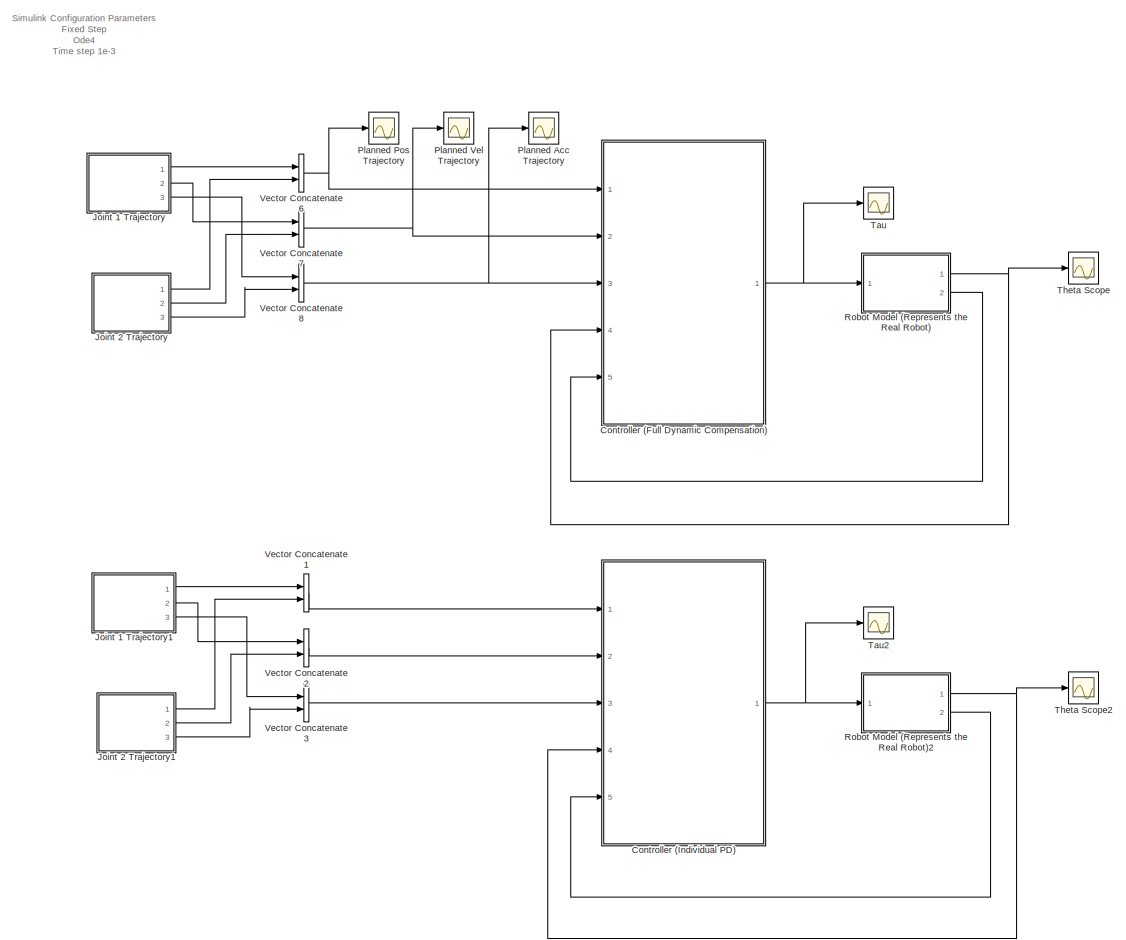
[diagram: root canvas - part 1/2, left side, full height]
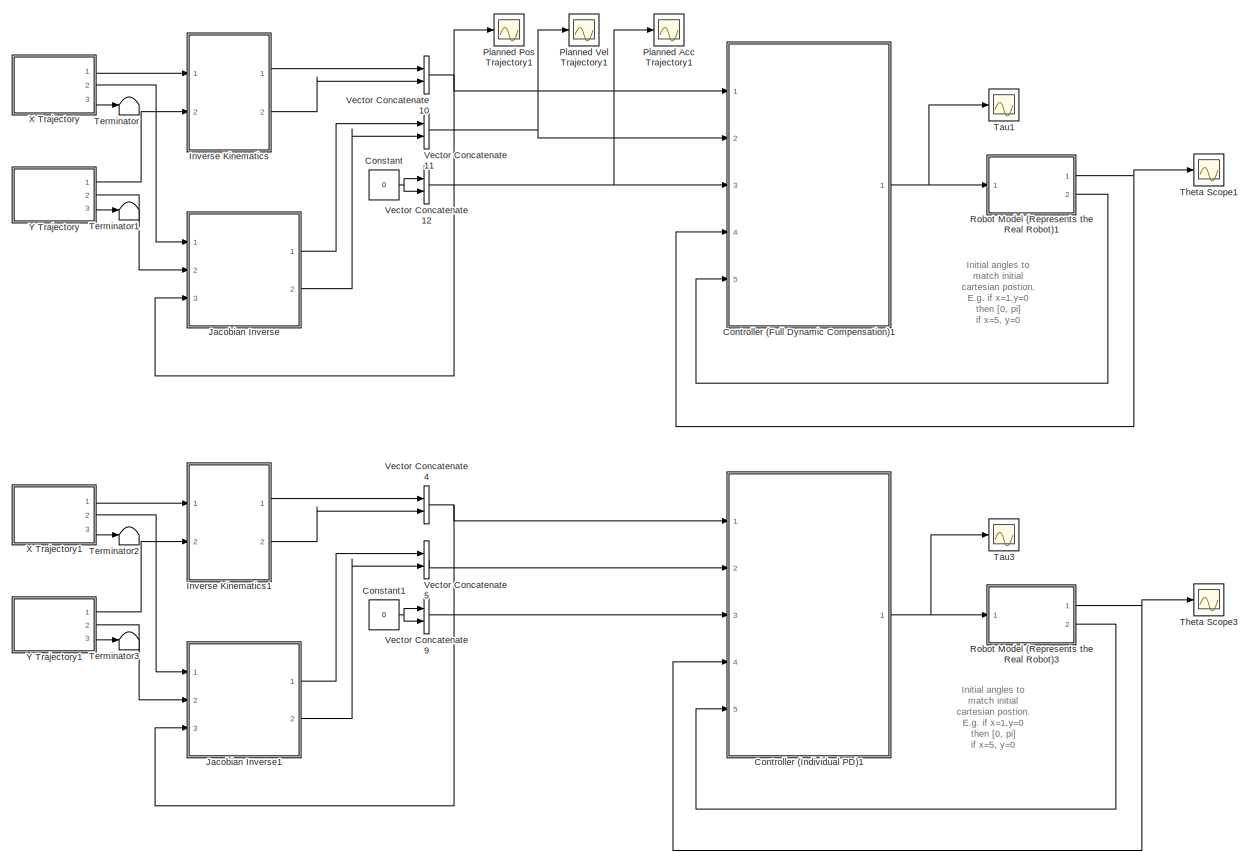
[diagram: root canvas - part 2/2, right side, full height]
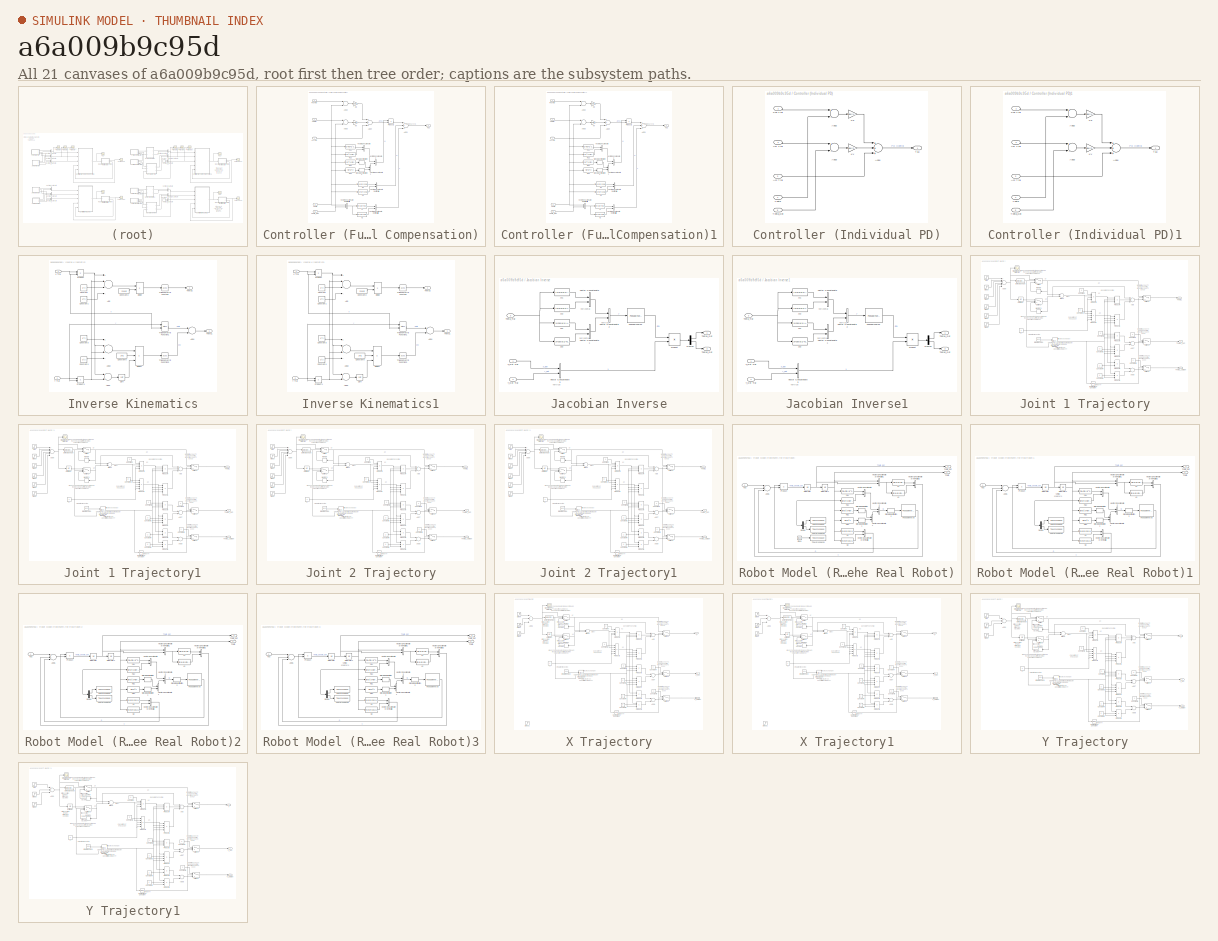
[diagram: thumbnail index - all 21 canvases of the model, root first then tree order]
MODEL slx_a6a009b9c95d
KIND model
CONFIG AbsTol = auto
CONFIG EnableMultiTasking = on
CONFIG FixedStep = 1e-3
CONFIG MaxStep = auto
CONFIG MinStep = auto
CONFIG RelTol = 1e-3
CONFIG SampleTimeConstraint = Unconstrained
CONFIG Solver = ode4
CONFIG SolverName = ode4
CONFIG StartTime = 0.0
CONFIG StopTime = 20
BLOCK [Constant] Constant
  Value = 0
BLOCK [Constant] Constant1
  Value = 0
BLOCK [SubSystem] Controller (Full Dynamic Compensation)
  Ports = [5, 1]
  RequestExecContextInheritance = off
  Variant = off
BLOCK [Inport] Controller (Full Dynamic Compensation)/Acc Traj
  IconDisplay = Port number
  Port = 3
BLOCK [Sum] Controller (Full Dynamic Compensation)/Add1
  InputSameDT = off
  Inputs = +++
  OutDataTypeStr = Inherit: Inherit via internal rule
  Ports = [3, 1]
  SaturateOnIntegerOverflow = off
BLOCK [Sum] Controller (Full Dynamic Compensation)/Add2
  InputSameDT = off
  Inputs = +-
  OutDataTypeStr = Inherit: Inherit via internal rule
  Ports = [2, 1]
  SaturateOnIntegerOverflow = off
BLOCK [Sum] Controller (Full Dynamic Compensation)/Add3
  InputSameDT = off
  Inputs = +-
  OutDataTypeStr = Inherit: Inherit via internal rule
  Ports = [2, 1]
  SaturateOnIntegerOverflow = off
BLOCK [Sum] Controller (Full Dynamic Compensation)/Add4
  InputSameDT = off
  Inputs = +++
  OutDataTypeStr = Inherit: Inherit via internal rule
  Ports = [3, 1]
  SaturateOnIntegerOverflow = off
BLOCK [Fcn] Controller (Full Dynamic Compensation)/G1
  Expr = m2*g*l2*cos(u(1)+u(2))+(m1+m2)*g*l1*cos(u(1))
BLOCK [Fcn] Controller (Full Dynamic Compensation)/G2
  Expr = m2*g*l2*cos(u(1)+u(2))
BLOCK [Gain] Controller (Full Dynamic Compensation)/Kp
  Gain = diag([1000 1000])
  Multiplication = Matrix(K*u) (u vector)
  OutDataTypeStr = Inherit: Inherit via internal rule
  ParamDataTypeStr = Inherit: Inherit via internal rule
  SaturateOnIntegerOverflow = off
BLOCK [Gain] Controller (Full Dynamic Compensation)/Kv
  Gain = diag([2*sqrt(1000) 2*sqrt(1000)])
  Multiplication = Matrix(K*u) (u vector)
  OutDataTypeStr = Inherit: Inherit via internal rule
  ParamDataTypeStr = Inherit: Inherit via internal rule
  SaturateOnIntegerOverflow = off
BLOCK [Inport] Controller (Full Dynamic Compensation)/Pos Traj
  IconDisplay = Port number
BLOCK [Product] Controller (Full Dynamic Compensation)/Product1
  InputSameDT = off
  Multiplication = Matrix(*)
  OutDataTypeStr = Inherit: Inherit via internal rule
  Ports = [2, 1]
  RndMeth = Floor
  SaturateOnIntegerOverflow = off
BLOCK [SignalSpecification] Controller (Full Dynamic Compensation)/Signal Specification
  Dimensions = [1,1]
BLOCK [SignalSpecification] Controller (Full Dynamic Compensation)/Signal Specification1
  Dimensions = [1,1]
BLOCK [Outport] Controller (Full Dynamic Compensation)/Tau
  IconDisplay = Port number
BLOCK [Inport] Controller (Full Dynamic Compensation)/Theta
  IconDisplay = Port number
  Port = 4
BLOCK [Inport] Controller (Full Dynamic Compensation)/Theta_Dot
  IconDisplay = Port number
  Port = 5
BLOCK [Fcn] Controller (Full Dynamic Compensation)/V1
  Expr = -m2*l1*l2*sin(u(2))*u(4)^2-2*m2*l1*l2*sin(u(1))*u(3)*u(4)
BLOCK [Fcn] Controller (Full Dynamic Compensation)/V2
  Expr = m2*l1*l2*sin(u(2))*u(3)^2
BLOCK [Concatenate] Controller (Full Dynamic Compensation)/Vector Concatenate
  ConcatenateDimension = 2
  Mode = Multidimensional array
  Ports = [2, 1]
BLOCK [Concatenate] Controller (Full Dynamic Compensation)/Vector Concatenate1
  ConcatenateDimension = 2
  Mode = Multidimensional array
  Ports = [2, 1]
BLOCK [Concatenate] Controller (Full Dynamic Compensation)/Vector Concatenate2
  Mode = Multidimensional array
  Ports = [2, 1]
BLOCK [Concatenate] Controller (Full Dynamic Compensation)/Vector Concatenate3 (Vertical!!!)
  Mode = Multidimensional array
  Ports = [2, 1]
BLOCK [Concatenate] Controller (Full Dynamic Compensation)/Vector Concatenate3 (Vertical!!!)1
  Mode = Multidimensional array
  Ports = [2, 1]
BLOCK [Concatenate] Controller (Full Dynamic Compensation)/Vector Concatenate3 (Vertical!!!)2
  Mode = Multidimensional array
  Ports = [2, 1]
BLOCK [Inport] Controller (Full Dynamic Compensation)/Vel Traj
  IconDisplay = Port number
  Port = 2
BLOCK [Fcn] Controller (Full Dynamic Compensation)/m11
  Expr = (m1+m2)*l1^2 + m2*l2^2 + 2*m2*l1*l2*cos(u(2))
BLOCK [Fcn] Controller (Full Dynamic Compensation)/m12
  Expr = m2*l2^2 + m2*l1*l2*cos(u(2))
BLOCK [Fcn] Controller (Full Dynamic Compensation)/m21
  Expr = m2*l2^2 + m2*l1*l2*cos(u(2))
BLOCK [Fcn] Controller (Full Dynamic Compensation)/m22
  Expr = m2*l2^2
BLOCK [SubSystem] Controller (Full Dynamic Compensation)1
  Ports = [5, 1]
  RequestExecContextInheritance = off
  Variant = off
BLOCK [Inport] Controller (Full Dynamic Compensation)1/Acc Traj
  IconDisplay = Port number
  Port = 3
BLOCK [Sum] Controller (Full Dynamic Compensation)1/Add1
  InputSameDT = off
  Inputs = +++
  OutDataTypeStr = Inherit: Inherit via internal rule
  Ports = [3, 1]
  SaturateOnIntegerOverflow = off
BLOCK [Sum] Controller (Full Dynamic Compensation)1/Add2
  InputSameDT = off
  Inputs = +-
  OutDataTypeStr = Inherit: Inherit via internal rule
  Ports = [2, 1]
  SaturateOnIntegerOverflow = off
BLOCK [Sum] Controller (Full Dynamic Compensation)1/Add3
  InputSameDT = off
  Inputs = +-
  OutDataTypeStr = Inherit: Inherit via internal rule
  Ports = [2, 1]
  SaturateOnIntegerOverflow = off
BLOCK [Sum] Controller (Full Dynamic Compensation)1/Add4
  InputSameDT = off
  Inputs = +++
  OutDataTypeStr = Inherit: Inherit via internal rule
  Ports = [3, 1]
  SaturateOnIntegerOverflow = off
BLOCK [Fcn] Controller (Full Dynamic Compensation)1/G1
  Expr = m2*g*l2*cos(u(1)+u(2))+(m1+m2)*g*l1*cos(u(1))
BLOCK [Fcn] Controller (Full Dynamic Compensation)1/G2
  Expr = m2*g*l2*cos(u(1)+u(2))
BLOCK [Gain] Controller (Full Dynamic Compensation)1/Kp
  Gain = diag([1000 1000])
  Multiplication = Matrix(K*u) (u vector)
  OutDataTypeStr = Inherit: Inherit via internal rule
  ParamDataTypeStr = Inherit: Inherit via internal rule
  SaturateOnIntegerOverflow = off
BLOCK [Gain] Controller (Full Dynamic Compensation)1/Kv
  Gain = diag([2*sqrt(1000) 2*sqrt(1000)])
  Multiplication = Matrix(K*u) (u vector)
  OutDataTypeStr = Inherit: Inherit via internal rule
  ParamDataTypeStr = Inherit: Inherit via internal rule
  SaturateOnIntegerOverflow = off
BLOCK [Inport] Controller (Full Dynamic Compensation)1/Pos Traj
  IconDisplay = Port number
BLOCK [Product] Controller (Full Dynamic Compensation)1/Product1
  InputSameDT = off
  Multiplication = Matrix(*)
  OutDataTypeStr = Inherit: Inherit via internal rule
  Ports = [2, 1]
  RndMeth = Floor
  SaturateOnIntegerOverflow = off
BLOCK [SignalSpecification] Controller (Full Dynamic Compensation)1/Signal Specification
  Dimensions = [1,1]
BLOCK [SignalSpecification] Controller (Full Dynamic Compensation)1/Signal Specification1
  Dimensions = [1,1]
BLOCK [Outport] Controller (Full Dynamic Compensation)1/Tau
  IconDisplay = Port number
BLOCK [Inport] Controller (Full Dynamic Compensation)1/Theta
  IconDisplay = Port number
  Port = 4
BLOCK [Inport] Controller (Full Dynamic Compensation)1/Theta_Dot
  IconDisplay = Port number
  Port = 5
BLOCK [Fcn] Controller (Full Dynamic Compensation)1/V1
  Expr = -m2*l1*l2*sin(u(2))*u(4)^2-2*m2*l1*l2*sin(u(1))*u(3)*u(4)
BLOCK [Fcn] Controller (Full Dynamic Compensation)1/V2
  Expr = m2*l1*l2*sin(u(2))*u(3)^2
BLOCK [Concatenate] Controller (Full Dynamic Compensation)1/Vector Concatenate
  ConcatenateDimension = 2
  Mode = Multidimensional array
  Ports = [2, 1]
BLOCK [Concatenate] Controller (Full Dynamic Compensation)1/Vector Concatenate1
  ConcatenateDimension = 2
  Mode = Multidimensional array
  Ports = [2, 1]
BLOCK [Concatenate] Controller (Full Dynamic Compensation)1/Vector Concatenate2
  Mode = Multidimensional array
  Ports = [2, 1]
BLOCK [Concatenate] Controller (Full Dynamic Compensation)1/Vector Concatenate3 (Vertical!!!)
  Mode = Multidimensional array
  Ports = [2, 1]
BLOCK [Concatenate] Controller (Full Dynamic Compensation)1/Vector Concatenate3 (Vertical!!!)1
  Mode = Multidimensional array
  Ports = [2, 1]
BLOCK [Concatenate] Controller (Full Dynamic Compensation)1/Vector Concatenate3 (Vertical!!!)2
  Mode = Multidimensional array
  Ports = [2, 1]
BLOCK [Inport] Controller (Full Dynamic Compensation)1/Vel Traj
  IconDisplay = Port number
  Port = 2
BLOCK [Fcn] Controller (Full Dynamic Compensation)1/m11
  Expr = (m1+m2)*l1^2 + m2*l2^2 + 2*m2*l1*l2*cos(u(2))
BLOCK [Fcn] Controller (Full Dynamic Compensation)1/m12
  Expr = m2*l2^2 + m2*l1*l2*cos(u(2))
BLOCK [Fcn] Controller (Full Dynamic Compensation)1/m21
  Expr = m2*l2^2 + m2*l1*l2*cos(u(2))
BLOCK [Fcn] Controller (Full Dynamic Compensation)1/m22
  Expr = m2*l2^2
BLOCK [SubSystem] Controller (Individual PD)
  Ports = [5, 1]
  RequestExecContextInheritance = off
  Variant = off
BLOCK [Inport] Controller (Individual PD)/Acc Traj
  IconDisplay = Port number
  Port = 3
BLOCK [Sum] Controller (Individual PD)/Add2
  InputSameDT = off
  Inputs = +-
  OutDataTypeStr = Inherit: Inherit via internal rule
  Ports = [2, 1]
  SaturateOnIntegerOverflow = off
BLOCK [Sum] Controller (Individual PD)/Add3
  InputSameDT = off
  Inputs = +-
  OutDataTypeStr = Inherit: Inherit via internal rule
  Ports = [2, 1]
  SaturateOnIntegerOverflow = off
BLOCK [Sum] Controller (Individual PD)/Add4
  InputSameDT = off
  Inputs = +++
  OutDataTypeStr = Inherit: Inherit via internal rule
  Ports = [3, 1]
  SaturateOnIntegerOverflow = off
BLOCK [Gain] Controller (Individual PD)/Kp
  Gain = diag([4000 4000])
  Multiplication = Matrix(K*u) (u vector)
  OutDataTypeStr = Inherit: Inherit via internal rule
  ParamDataTypeStr = Inherit: Inherit via internal rule
  SaturateOnIntegerOverflow = off
BLOCK [Gain] Controller (Individual PD)/Kv
  Gain = diag([2*sqrt(4000) 2*sqrt(4000)])
  Multiplication = Matrix(K*u) (u vector)
  OutDataTypeStr = Inherit: Inherit via internal rule
  ParamDataTypeStr = Inherit: Inherit via internal rule
  SaturateOnIntegerOverflow = off
BLOCK [Inport] Controller (Individual PD)/Pos Traj
  IconDisplay = Port number
BLOCK [Outport] Controller (Individual PD)/Tau
  IconDisplay = Port number
BLOCK [Inport] Controller (Individual PD)/Theta
  IconDisplay = Port number
  Port = 4
BLOCK [Inport] Controller (Individual PD)/Theta_Dot
  IconDisplay = Port number
  Port = 5
BLOCK [Inport] Controller (Individual PD)/Vel Traj
  IconDisplay = Port number
  Port = 2
BLOCK [SubSystem] Controller (Individual PD)1
  Ports = [5, 1]
  RequestExecContextInheritance = off
  Variant = off
BLOCK [Inport] Controller (Individual PD)1/Acc Traj
  IconDisplay = Port number
  Port = 3
BLOCK [Sum] Controller (Individual PD)1/Add2
  InputSameDT = off
  Inputs = +-
  OutDataTypeStr = Inherit: Inherit via internal rule
  Ports = [2, 1]
  SaturateOnIntegerOverflow = off
BLOCK [Sum] Controller (Individual PD)1/Add3
  InputSameDT = off
  Inputs = +-
  OutDataTypeStr = Inherit: Inherit via internal rule
  Ports = [2, 1]
  SaturateOnIntegerOverflow = off
BLOCK [Sum] Controller (Individual PD)1/Add4
  InputSameDT = off
  Inputs = +++
  OutDataTypeStr = Inherit: Inherit via internal rule
  Ports = [3, 1]
  SaturateOnIntegerOverflow = off
BLOCK [Gain] Controller (Individual PD)1/Kp
  Gain = diag([4000 4000])
  Multiplication = Matrix(K*u) (u vector)
  OutDataTypeStr = Inherit: Inherit via internal rule
  ParamDataTypeStr = Inherit: Inherit via internal rule
  SaturateOnIntegerOverflow = off
BLOCK [Gain] Controller (Individual PD)1/Kv
  Gain = diag([2*sqrt(4000) 2*sqrt(4000)])
  Multiplication = Matrix(K*u) (u vector)
  OutDataTypeStr = Inherit: Inherit via internal rule
  ParamDataTypeStr = Inherit: Inherit via internal rule
  SaturateOnIntegerOverflow = off
BLOCK [Inport] Controller (Individual PD)1/Pos Traj
  IconDisplay = Port number
BLOCK [Outport] Controller (Individual PD)1/Tau
  IconDisplay = Port number
BLOCK [Inport] Controller (Individual PD)1/Theta
  IconDisplay = Port number
  Port = 4
BLOCK [Inport] Controller (Individual PD)1/Theta_Dot
  IconDisplay = Port number
  Port = 5
BLOCK [Inport] Controller (Individual PD)1/Vel Traj
  IconDisplay = Port number
  Port = 2
BLOCK [SubSystem] Inverse Kinematics
  Ports = [2, 2]
  RequestExecContextInheritance = off
  Variant = off
BLOCK [Sum] Inverse Kinematics/Add
  InputSameDT = off
  Inputs = ++--
  OutDataTypeStr = Inherit: Inherit via internal rule
  Ports = [4, 1]
  SaturateOnIntegerOverflow = off
BLOCK [Sum] Inverse Kinematics/Add2
  InputSameDT = off
  Inputs = +++-
  OutDataTypeStr = Inherit: Inherit via internal rule
  Ports = [4, 1]
  SaturateOnIntegerOverflow = off
BLOCK [Sum] Inverse Kinematics/Add3
  InputSameDT = off
  OutDataTypeStr = Inherit: Inherit via internal rule
  Ports = [2, 1]
  SaturateOnIntegerOverflow = off
BLOCK [Sum] Inverse Kinematics/Add4
  InputSameDT = off
  Inputs = +-
  OutDataTypeStr = Inherit: Inherit via internal rule
  Ports = [2, 1]
  SaturateOnIntegerOverflow = off
BLOCK [Constant] Inverse Kinematics/Constant
  Value = l1^2
BLOCK [Constant] Inverse Kinematics/Constant1
  Value = l2^2
BLOCK [Constant] Inverse Kinematics/Constant2
  Value = 2*l1*l2
BLOCK [Constant] Inverse Kinematics/Constant3
  Value = l1^2
BLOCK [Constant] Inverse Kinematics/Constant4
  Value = l2^2
BLOCK [Constant] Inverse Kinematics/Constant5
  Value = 2*l1
BLOCK [Product] Inverse Kinematics/Divide
  InputSameDT = off
  Inputs = */
  OutDataTypeStr = Inherit: Inherit via internal rule
  Ports = [2, 1]
  RndMeth = Floor
  SaturateOnIntegerOverflow = off
BLOCK [Product] Inverse Kinematics/Divide1
  InputSameDT = off
  Inputs = *//
  OutDataTypeStr = Inherit: Inherit via internal rule
  Ports = [3, 1]
  RndMeth = Floor
  SaturateOnIntegerOverflow = off
BLOCK [Product] Inverse Kinematics/Product
  InputSameDT = off
  OutDataTypeStr = Inherit: Inherit via internal rule
  Ports = [2, 1]
  RndMeth = Floor
  SaturateOnIntegerOverflow = off
BLOCK [Product] Inverse Kinematics/Product1
  InputSameDT = off
  OutDataTypeStr = Inherit: Inherit via internal rule
  Ports = [2, 1]
  RndMeth = Floor
  SaturateOnIntegerOverflow = off
BLOCK [Sqrt] Inverse Kinematics/Sqrt
BLOCK [Outport] Inverse Kinematics/Theta1
  IconDisplay = Port number
BLOCK [Outport] Inverse Kinematics/Theta2
  IconDisplay = Port number
  Port = 2
BLOCK [Trigonometry] Inverse Kinematics/Trigonometric Function
  Operator = acos
  Ports = [1, 1]
BLOCK [Trigonometry] Inverse Kinematics/Trigonometric Function1
  Operator = atan2
  Ports = [2, 1]
BLOCK [Trigonometry] Inverse Kinematics/Trigonometric Function2
  Operator = acos
  Ports = [1, 1]
BLOCK [Inport] Inverse Kinematics/X Traj
  IconDisplay = Port number
BLOCK [Inport] Inverse Kinematics/Y Traj
  IconDisplay = Port number
  Port = 2
BLOCK [SubSystem] Inverse Kinematics1
  Ports = [2, 2]
  RequestExecContextInheritance = off
  Variant = off
BLOCK [Sum] Inverse Kinematics1/Add
  InputSameDT = off
  Inputs = ++--
  OutDataTypeStr = Inherit: Inherit via internal rule
  Ports = [4, 1]
  SaturateOnIntegerOverflow = off
BLOCK [Sum] Inverse Kinematics1/Add2
  InputSameDT = off
  Inputs = +++-
  OutDataTypeStr = Inherit: Inherit via internal rule
  Ports = [4, 1]
  SaturateOnIntegerOverflow = off
BLOCK [Sum] Inverse Kinematics1/Add3
  InputSameDT = off
  OutDataTypeStr = Inherit: Inherit via internal rule
  Ports = [2, 1]
  SaturateOnIntegerOverflow = off
BLOCK [Sum] Inverse Kinematics1/Add4
  InputSameDT = off
  Inputs = +-
  OutDataTypeStr = Inherit: Inherit via internal rule
  Ports = [2, 1]
  SaturateOnIntegerOverflow = off
BLOCK [Constant] Inverse Kinematics1/Constant
  Value = l1^2
BLOCK [Constant] Inverse Kinematics1/Constant1
  Value = l2^2
BLOCK [Constant] Inverse Kinematics1/Constant2
  Value = 2*l1*l2
BLOCK [Constant] Inverse Kinematics1/Constant3
  Value = l1^2
BLOCK [Constant] Inverse Kinematics1/Constant4
  Value = l2^2
BLOCK [Constant] Inverse Kinematics1/Constant5
  Value = 2*l1
BLOCK [Product] Inverse Kinematics1/Divide
  InputSameDT = off
  Inputs = */
  OutDataTypeStr = Inherit: Inherit via internal rule
  Ports = [2, 1]
  RndMeth = Floor
  SaturateOnIntegerOverflow = off
BLOCK [Product] Inverse Kinematics1/Divide1
  InputSameDT = off
  Inputs = *//
  OutDataTypeStr = Inherit: Inherit via internal rule
  Ports = [3, 1]
  RndMeth = Floor
  SaturateOnIntegerOverflow = off
BLOCK [Product] Inverse Kinematics1/Product
  InputSameDT = off
  OutDataTypeStr = Inherit: Inherit via internal rule
  Ports = [2, 1]
  RndMeth = Floor
  SaturateOnIntegerOverflow = off
BLOCK [Product] Inverse Kinematics1/Product1
  InputSameDT = off
  OutDataTypeStr = Inherit: Inherit via internal rule
  Ports = [2, 1]
  RndMeth = Floor
  SaturateOnIntegerOverflow = off
BLOCK [Sqrt] Inverse Kinematics1/Sqrt
BLOCK [Outport] Inverse Kinematics1/Theta1
  IconDisplay = Port number
BLOCK [Outport] Inverse Kinematics1/Theta2
  IconDisplay = Port number
  Port = 2
BLOCK [Trigonometry] Inverse Kinematics1/Trigonometric Function
  Operator = acos
  Ports = [1, 1]
BLOCK [Trigonometry] Inverse Kinematics1/Trigonometric Function1
  Operator = atan2
  Ports = [2, 1]
BLOCK [Trigonometry] Inverse Kinematics1/Trigonometric Function2
  Operator = acos
  Ports = [1, 1]
BLOCK [Inport] Inverse Kinematics1/X Traj
  IconDisplay = Port number
BLOCK [Inport] Inverse Kinematics1/Y Traj
  IconDisplay = Port number
  Port = 2
BLOCK [SubSystem] Jacobian Inverse
  Ports = [3, 2]
  RequestExecContextInheritance = off
  Variant = off
BLOCK [Demux] Jacobian Inverse/Demux
  DisplayOption = bar
  Outputs = 2
  Ports = [1, 2]
BLOCK [Fcn] Jacobian Inverse/J11
  Expr = -l1*sin(u(1))-l2*sin(u(1)+u(2))
BLOCK [Fcn] Jacobian Inverse/J12
  Expr = -l2*sin(u(1)+u(2))
BLOCK [Fcn] Jacobian Inverse/J21
  Expr = l1*cos(u(1))+l2*cos(u(1)+u(2))
BLOCK [Fcn] Jacobian Inverse/J22
  Expr = l2*cos(u(1)+u(2))
BLOCK [Product] Jacobian Inverse/Product
  InputSameDT = off
  Multiplication = Matrix(*)
  OutDataTypeStr = Inherit: Inherit via internal rule
  Ports = [2, 1]
  RndMeth = Floor
  SaturateOnIntegerOverflow = off
BLOCK [Reference] Jacobian Inverse/Pseudoinverse  REF=dspinverses/Pseudoinverse
  Ports = [1, 1]
  SourceBlock = dspinverses/Pseudoinverse
  SourceProductBaseCode = DS
  SourceProductName = DSP System Toolbox
  SourceType = Pseudoinverse
BLOCK [Outport] Jacobian Inverse/Theta1_Dot
  IconDisplay = Port number
BLOCK [Outport] Jacobian Inverse/Theta2_Dot
  IconDisplay = Port number
  Port = 2
BLOCK [Inport] Jacobian Inverse/Theta_Traj
  IconDisplay = Port number
  Port = 3
BLOCK [Concatenate] Jacobian Inverse/Vector Concatenate
  ConcatenateDimension = 2
  Mode = Multidimensional array
  Ports = [2, 1]
BLOCK [Concatenate] Jacobian Inverse/Vector Concatenate1
  ConcatenateDimension = 2
  Mode = Multidimensional array
  Ports = [2, 1]
BLOCK [Concatenate] Jacobian Inverse/Vector Concatenate2
  Mode = Multidimensional array
  Ports = [2, 1]
BLOCK [Concatenate] Jacobian Inverse/Vector Concatenate3
  Mode = Multidimensional array
  Ports = [2, 1]
BLOCK [Inport] Jacobian Inverse/X_Dot Traj
  IconDisplay = Port number
BLOCK [Inport] Jacobian Inverse/Y_Dot Traj
  IconDisplay = Port number
  Port = 2
BLOCK [SubSystem] Jacobian Inverse1
  Ports = [3, 2]
  RequestExecContextInheritance = off
  Variant = off
BLOCK [Demux] Jacobian Inverse1/Demux
  DisplayOption = bar
  Outputs = 2
  Ports = [1, 2]
BLOCK [Fcn] Jacobian Inverse1/J11
  Expr = -l1*sin(u(1))-l2*sin(u(1)+u(2))
BLOCK [Fcn] Jacobian Inverse1/J12
  Expr = -l2*sin(u(1)+u(2))
BLOCK [Fcn] Jacobian Inverse1/J21
  Expr = l1*cos(u(1))+l2*cos(u(1)+u(2))
BLOCK [Fcn] Jacobian Inverse1/J22
  Expr = l2*cos(u(1)+u(2))
BLOCK [Product] Jacobian Inverse1/Product
  InputSameDT = off
  Multiplication = Matrix(*)
  OutDataTypeStr = Inherit: Inherit via internal rule
  Ports = [2, 1]
  RndMeth = Floor
  SaturateOnIntegerOverflow = off
BLOCK [Reference] Jacobian Inverse1/Pseudoinverse  REF=dspinverses/Pseudoinverse
  Ports = [1, 1]
  SourceBlock = dspinverses/Pseudoinverse
  SourceProductBaseCode = DS
  SourceProductName = DSP System Toolbox
  SourceType = Pseudoinverse
BLOCK [Outport] Jacobian Inverse1/Theta1_Dot
  IconDisplay = Port number
BLOCK [Outport] Jacobian Inverse1/Theta2_Dot
  IconDisplay = Port number
  Port = 2
BLOCK [Inport] Jacobian Inverse1/Theta_Traj
  IconDisplay = Port number
  Port = 3
BLOCK [Concatenate] Jacobian Inverse1/Vector Concatenate
  ConcatenateDimension = 2
  Mode = Multidimensional array
  Ports = [2, 1]
BLOCK [Concatenate] Jacobian Inverse1/Vector Concatenate1
  ConcatenateDimension = 2
  Mode = Multidimensional array
  Ports = [2, 1]
BLOCK [Concatenate] Jacobian Inverse1/Vector Concatenate2
  Mode = Multidimensional array
  Ports = [2, 1]
BLOCK [Concatenate] Jacobian Inverse1/Vector Concatenate3
  Mode = Multidimensional array
  Ports = [2, 1]
BLOCK [Inport] Jacobian Inverse1/X_Dot Traj
  IconDisplay = Port number
BLOCK [Inport] Jacobian Inverse1/Y_Dot Traj
  IconDisplay = Port number
  Port = 2
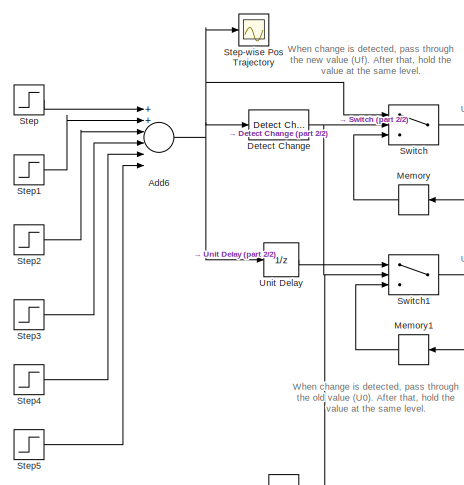
[diagram: Joint 1 Trajectory - part 1/2, top left region]
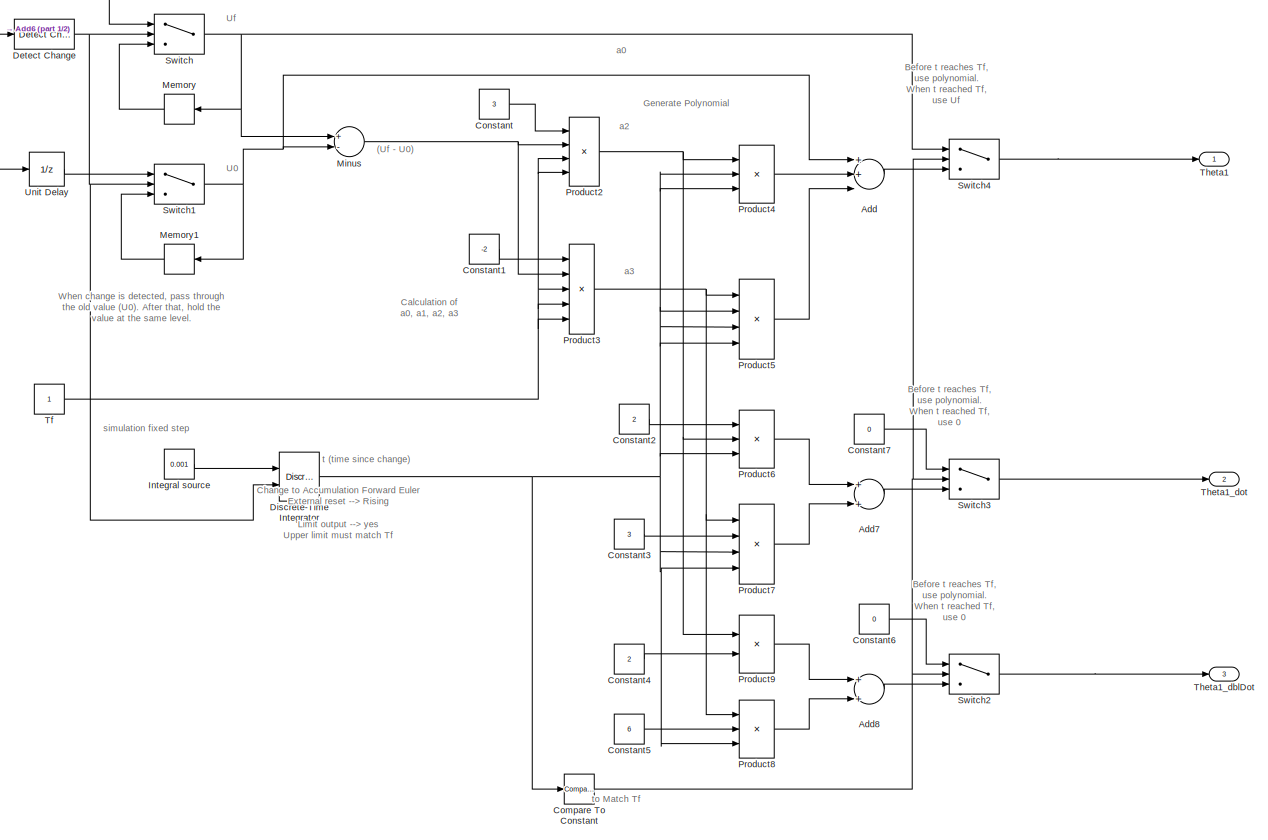
[diagram: Joint 1 Trajectory - part 2/2, most of the canvas]
BLOCK [SubSystem] Joint 1 Trajectory
  Ports = [0, 3]
  RequestExecContextInheritance = off
  Variant = off
BLOCK [Sum] Joint 1 Trajectory/Add
  InputSameDT = off
  Inputs = 3
  OutDataTypeStr = Inherit: Inherit via internal rule
  Ports = [3, 1]
  SaturateOnIntegerOverflow = off
BLOCK [Sum] Joint 1 Trajectory/Add6
  InputSameDT = off
  Inputs = 6
  OutDataTypeStr = Inherit: Inherit via internal rule
  Ports = [6, 1]
  SaturateOnIntegerOverflow = off
BLOCK [Sum] Joint 1 Trajectory/Add7
  InputSameDT = off
  Inputs = 2
  OutDataTypeStr = Inherit: Inherit via internal rule
  Ports = [2, 1]
  SaturateOnIntegerOverflow = off
BLOCK [Sum] Joint 1 Trajectory/Add8
  InputSameDT = off
  Inputs = 2
  OutDataTypeStr = Inherit: Inherit via internal rule
  Ports = [2, 1]
  SaturateOnIntegerOverflow = off
BLOCK [Reference] Joint 1 Trajectory/Compare To Constant  REF=simulink/Logic and Bit
Operations/Compare
To Constant
  Ports = [1, 1]
  SourceBlock = simulink/Logic and Bit\nOperations/Compare\nTo Constant
  SourceProductBaseCode = SL
  SourceProductName = Simulink
  SourceType = Compare To Constant
BLOCK [Constant] Joint 1 Trajectory/Constant
  Value = 3
BLOCK [Constant] Joint 1 Trajectory/Constant1
  Value = -2
BLOCK [Constant] Joint 1 Trajectory/Constant2
  Value = 2
BLOCK [Constant] Joint 1 Trajectory/Constant3
  Value = 3
BLOCK [Constant] Joint 1 Trajectory/Constant4
  Value = 2
BLOCK [Constant] Joint 1 Trajectory/Constant5
  Value = 6
BLOCK [Constant] Joint 1 Trajectory/Constant6
  Value = 0
BLOCK [Constant] Joint 1 Trajectory/Constant7
  Value = 0
BLOCK [Reference] Joint 1 Trajectory/Detect Change  REF=simulink/Logic and Bit
Operations/Detect
Change
  Ports = [1, 1]
  SourceBlock = simulink/Logic and Bit\nOperations/Detect\nChange
  SourceProductBaseCode = SL
  SourceProductName = Simulink
  SourceType = Detect Change
BLOCK [DiscreteIntegrator] Joint 1 Trajectory/Discrete-Time Integrator
  ExternalReset = rising
  ICPrevOutput = DiscIntNeverNeededParam
  ICPrevScaledInput = DiscIntNeverNeededParam
  InitialConditionSetting = State (most efficient)
  IntegratorMethod = Accumulation: Forward Euler
  LimitOutput = on
  Ports = [2, 1]
  SampleTime = -1
  UpperSaturationLimit = 1
  gainval = 1
BLOCK [Constant] Joint 1 Trajectory/Integral source
  Value = 0.001
BLOCK [Memory] Joint 1 Trajectory/Memory
  InheritSampleTime = on
BLOCK [Memory] Joint 1 Trajectory/Memory1
  InheritSampleTime = on
BLOCK [Sum] Joint 1 Trajectory/Minus
  InputSameDT = off
  Inputs = +-
  OutDataTypeStr = Inherit: Inherit via internal rule
  Ports = [2, 1]
  SaturateOnIntegerOverflow = off
BLOCK [Product] Joint 1 Trajectory/Product2
  InputSameDT = off
  Inputs = **//
  OutDataTypeStr = Inherit: Inherit via internal rule
  Ports = [4, 1]
  RndMeth = Floor
  SaturateOnIntegerOverflow = off
BLOCK [Product] Joint 1 Trajectory/Product3
  InputSameDT = off
  Inputs = **///
  OutDataTypeStr = Inherit: Inherit via internal rule
  Ports = [5, 1]
  RndMeth = Floor
  SaturateOnIntegerOverflow = off
BLOCK [Product] Joint 1 Trajectory/Product4
  InputSameDT = off
  Inputs = 3
  OutDataTypeStr = Inherit: Inherit via internal rule
  Ports = [3, 1]
  RndMeth = Floor
  SaturateOnIntegerOverflow = off
BLOCK [Product] Joint 1 Trajectory/Product5
  InputSameDT = off
  Inputs = 4
  OutDataTypeStr = Inherit: Inherit via internal rule
  Ports = [4, 1]
  RndMeth = Floor
  SaturateOnIntegerOverflow = off
BLOCK [Product] Joint 1 Trajectory/Product6
  InputSameDT = off
  Inputs = 3
  OutDataTypeStr = Inherit: Inherit via internal rule
  Ports = [3, 1]
  RndMeth = Floor
  SaturateOnIntegerOverflow = off
BLOCK [Product] Joint 1 Trajectory/Product7
  InputSameDT = off
  Inputs = 4
  OutDataTypeStr = Inherit: Inherit via internal rule
  Ports = [4, 1]
  RndMeth = Floor
  SaturateOnIntegerOverflow = off
BLOCK [Product] Joint 1 Trajectory/Product8
  InputSameDT = off
  Inputs = 3
  OutDataTypeStr = Inherit: Inherit via internal rule
  Ports = [3, 1]
  RndMeth = Floor
  SaturateOnIntegerOverflow = off
BLOCK [Product] Joint 1 Trajectory/Product9
  InputSameDT = off
  OutDataTypeStr = Inherit: Inherit via internal rule
  Ports = [2, 1]
  RndMeth = Floor
  SaturateOnIntegerOverflow = off
BLOCK [Step] Joint 1 Trajectory/Step
  SampleTime = 0
BLOCK [Scope] Joint 1 Trajectory/Step-wise Pos Trajectory
  NumInputPorts = 1
  Ports = [1]
  ScopeSpecificationString = Simulink.scopes.TimeScopeBlockCfg('CurrentConfiguration', extmgr.ConfigurationSet(extmgr.Configuration('Core','General UI',true),extmgr.Configuration('Core','Source UI',true),extmgr.Configuration('Sources','WiredSimulink',true,'DataLoggingSaveFormat','Array','DataLoggingDecimation','1','DataLoggingDecimateData',true,'DataLoggingVariableName','ScopeData4'),extmgr.Configuration('Visuals','Time Domai...<+1492ch>  <repeated x6 — deduplicated; at blocks: Step-wise Pos Trajectory>
BLOCK [Step] Joint 1 Trajectory/Step1
  After = 2
  SampleTime = 0
  Time = 4
BLOCK [Step] Joint 1 Trajectory/Step2
  After = -1
  SampleTime = 0
  Time = 8
BLOCK [Step] Joint 1 Trajectory/Step3
  After = 1.5
  SampleTime = 0
  Time = 11
BLOCK [Step] Joint 1 Trajectory/Step4
  After = -1
  SampleTime = 0
  Time = 14
BLOCK [Step] Joint 1 Trajectory/Step5
  After = -2
  SampleTime = 0
  Time = 17
BLOCK [Switch] Joint 1 Trajectory/Switch
  Criteria = u2 > Threshold
  InputSameDT = off
  SaturateOnIntegerOverflow = off
BLOCK [Switch] Joint 1 Trajectory/Switch1
  Criteria = u2 > Threshold
  InputSameDT = off
  SaturateOnIntegerOverflow = off
BLOCK [Switch] Joint 1 Trajectory/Switch2
  Criteria = u2 > Threshold
  InputSameDT = off
  SaturateOnIntegerOverflow = off
BLOCK [Switch] Joint 1 Trajectory/Switch3
  Criteria = u2 > Threshold
  InputSameDT = off
  SaturateOnIntegerOverflow = off
BLOCK [Switch] Joint 1 Trajectory/Switch4
  Criteria = u2 > Threshold
  InputSameDT = off
  SaturateOnIntegerOverflow = off
BLOCK [Constant] Joint 1 Trajectory/Tf
BLOCK [Outport] Joint 1 Trajectory/Theta1
  IconDisplay = Port number
BLOCK [Outport] Joint 1 Trajectory/Theta1_dblDot
  IconDisplay = Port number
  Port = 3
BLOCK [Outport] Joint 1 Trajectory/Theta1_dot
  IconDisplay = Port number
  Port = 2
BLOCK [UnitDelay] Joint 1 Trajectory/Unit Delay
  InputProcessing = Elements as channels (sample based)
  SampleTime = -1
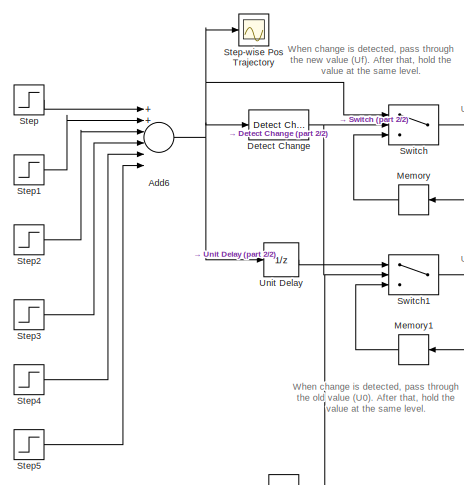
[diagram: Joint 1 Trajectory1 - part 1/2, top left region]
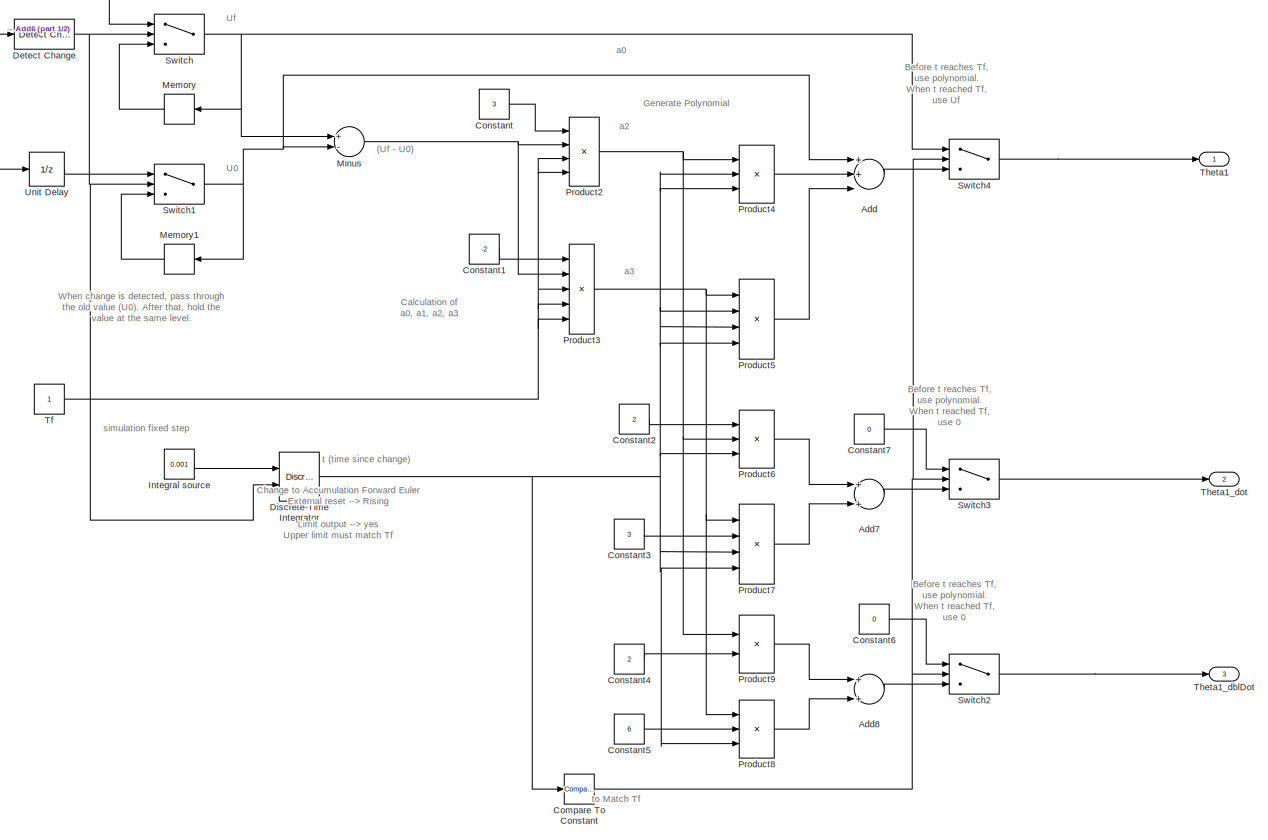
[diagram: Joint 1 Trajectory1 - part 2/2, most of the canvas]
BLOCK [SubSystem] Joint 1 Trajectory1
  Ports = [0, 3]
  RequestExecContextInheritance = off
  Variant = off
BLOCK [Sum] Joint 1 Trajectory1/Add
  InputSameDT = off
  Inputs = 3
  OutDataTypeStr = Inherit: Inherit via internal rule
  Ports = [3, 1]
  SaturateOnIntegerOverflow = off
BLOCK [Sum] Joint 1 Trajectory1/Add6
  InputSameDT = off
  Inputs = 6
  OutDataTypeStr = Inherit: Inherit via internal rule
  Ports = [6, 1]
  SaturateOnIntegerOverflow = off
BLOCK [Sum] Joint 1 Trajectory1/Add7
  InputSameDT = off
  Inputs = 2
  OutDataTypeStr = Inherit: Inherit via internal rule
  Ports = [2, 1]
  SaturateOnIntegerOverflow = off
BLOCK [Sum] Joint 1 Trajectory1/Add8
  InputSameDT = off
  Inputs = 2
  OutDataTypeStr = Inherit: Inherit via internal rule
  Ports = [2, 1]
  SaturateOnIntegerOverflow = off
BLOCK [Reference] Joint 1 Trajectory1/Compare To Constant  REF=simulink/Logic and Bit
Operations/Compare
To Constant
  Ports = [1, 1]
  SourceBlock = simulink/Logic and Bit\nOperations/Compare\nTo Constant
  SourceProductBaseCode = SL
  SourceProductName = Simulink
  SourceType = Compare To Constant
BLOCK [Constant] Joint 1 Trajectory1/Constant
  Value = 3
BLOCK [Constant] Joint 1 Trajectory1/Constant1
  Value = -2
BLOCK [Constant] Joint 1 Trajectory1/Constant2
  Value = 2
BLOCK [Constant] Joint 1 Trajectory1/Constant3
  Value = 3
BLOCK [Constant] Joint 1 Trajectory1/Constant4
  Value = 2
BLOCK [Constant] Joint 1 Trajectory1/Constant5
  Value = 6
BLOCK [Constant] Joint 1 Trajectory1/Constant6
  Value = 0
BLOCK [Constant] Joint 1 Trajectory1/Constant7
  Value = 0
BLOCK [Reference] Joint 1 Trajectory1/Detect Change  REF=simulink/Logic and Bit
Operations/Detect
Change
  Ports = [1, 1]
  SourceBlock = simulink/Logic and Bit\nOperations/Detect\nChange
  SourceProductBaseCode = SL
  SourceProductName = Simulink
  SourceType = Detect Change
BLOCK [DiscreteIntegrator] Joint 1 Trajectory1/Discrete-Time Integrator
  ExternalReset = rising
  ICPrevOutput = DiscIntNeverNeededParam
  ICPrevScaledInput = DiscIntNeverNeededParam
  InitialConditionSetting = State (most efficient)
  IntegratorMethod = Accumulation: Forward Euler
  LimitOutput = on
  Ports = [2, 1]
  SampleTime = -1
  UpperSaturationLimit = 1
  gainval = 1
BLOCK [Constant] Joint 1 Trajectory1/Integral source
  Value = 0.001
BLOCK [Memory] Joint 1 Trajectory1/Memory
  InheritSampleTime = on
BLOCK [Memory] Joint 1 Trajectory1/Memory1
  InheritSampleTime = on
BLOCK [Sum] Joint 1 Trajectory1/Minus
  InputSameDT = off
  Inputs = +-
  OutDataTypeStr = Inherit: Inherit via internal rule
  Ports = [2, 1]
  SaturateOnIntegerOverflow = off
BLOCK [Product] Joint 1 Trajectory1/Product2
  InputSameDT = off
  Inputs = **//
  OutDataTypeStr = Inherit: Inherit via internal rule
  Ports = [4, 1]
  RndMeth = Floor
  SaturateOnIntegerOverflow = off
BLOCK [Product] Joint 1 Trajectory1/Product3
  InputSameDT = off
  Inputs = **///
  OutDataTypeStr = Inherit: Inherit via internal rule
  Ports = [5, 1]
  RndMeth = Floor
  SaturateOnIntegerOverflow = off
BLOCK [Product] Joint 1 Trajectory1/Product4
  InputSameDT = off
  Inputs = 3
  OutDataTypeStr = Inherit: Inherit via internal rule
  Ports = [3, 1]
  RndMeth = Floor
  SaturateOnIntegerOverflow = off
BLOCK [Product] Joint 1 Trajectory1/Product5
  InputSameDT = off
  Inputs = 4
  OutDataTypeStr = Inherit: Inherit via internal rule
  Ports = [4, 1]
  RndMeth = Floor
  SaturateOnIntegerOverflow = off
BLOCK [Product] Joint 1 Trajectory1/Product6
  InputSameDT = off
  Inputs = 3
  OutDataTypeStr = Inherit: Inherit via internal rule
  Ports = [3, 1]
  RndMeth = Floor
  SaturateOnIntegerOverflow = off
BLOCK [Product] Joint 1 Trajectory1/Product7
  InputSameDT = off
  Inputs = 4
  OutDataTypeStr = Inherit: Inherit via internal rule
  Ports = [4, 1]
  RndMeth = Floor
  SaturateOnIntegerOverflow = off
BLOCK [Product] Joint 1 Trajectory1/Product8
  InputSameDT = off
  Inputs = 3
  OutDataTypeStr = Inherit: Inherit via internal rule
  Ports = [3, 1]
  RndMeth = Floor
  SaturateOnIntegerOverflow = off
BLOCK [Product] Joint 1 Trajectory1/Product9
  InputSameDT = off
  OutDataTypeStr = Inherit: Inherit via internal rule
  Ports = [2, 1]
  RndMeth = Floor
  SaturateOnIntegerOverflow = off
BLOCK [Step] Joint 1 Trajectory1/Step
  SampleTime = 0
BLOCK [Scope] Joint 1 Trajectory1/Step-wise Pos Trajectory
  NumInputPorts = 1
  Ports = [1]
BLOCK [Step] Joint 1 Trajectory1/Step1
  After = 2
  SampleTime = 0
  Time = 4
BLOCK [Step] Joint 1 Trajectory1/Step2
  After = -1
  SampleTime = 0
  Time = 8
BLOCK [Step] Joint 1 Trajectory1/Step3
  After = 1.5
  SampleTime = 0
  Time = 11
BLOCK [Step] Joint 1 Trajectory1/Step4
  After = -1
  SampleTime = 0
  Time = 14
BLOCK [Step] Joint 1 Trajectory1/Step5
  After = -2
  SampleTime = 0
  Time = 17
BLOCK [Switch] Joint 1 Trajectory1/Switch
  Criteria = u2 > Threshold
  InputSameDT = off
  SaturateOnIntegerOverflow = off
BLOCK [Switch] Joint 1 Trajectory1/Switch1
  Criteria = u2 > Threshold
  InputSameDT = off
  SaturateOnIntegerOverflow = off
BLOCK [Switch] Joint 1 Trajectory1/Switch2
  Criteria = u2 > Threshold
  InputSameDT = off
  SaturateOnIntegerOverflow = off
BLOCK [Switch] Joint 1 Trajectory1/Switch3
  Criteria = u2 > Threshold
  InputSameDT = off
  SaturateOnIntegerOverflow = off
BLOCK [Switch] Joint 1 Trajectory1/Switch4
  Criteria = u2 > Threshold
  InputSameDT = off
  SaturateOnIntegerOverflow = off
BLOCK [Constant] Joint 1 Trajectory1/Tf
BLOCK [Outport] Joint 1 Trajectory1/Theta1
  IconDisplay = Port number
BLOCK [Outport] Joint 1 Trajectory1/Theta1_dblDot
  IconDisplay = Port number
  Port = 3
BLOCK [Outport] Joint 1 Trajectory1/Theta1_dot
  IconDisplay = Port number
  Port = 2
BLOCK [UnitDelay] Joint 1 Trajectory1/Unit Delay
  InputProcessing = Elements as channels (sample based)
  SampleTime = -1
BLOCK [SubSystem] Joint 2 Trajectory
  Ports = [0, 3]
  RequestExecContextInheritance = off
  Variant = off
BLOCK [Sum] Joint 2 Trajectory/Add
  InputSameDT = off
  Inputs = 3
  OutDataTypeStr = Inherit: Inherit via internal rule
  Ports = [3, 1]
  SaturateOnIntegerOverflow = off
BLOCK [Sum] Joint 2 Trajectory/Add6
  InputSameDT = off
  Inputs = 6
  OutDataTypeStr = Inherit: Inherit via internal rule
  Ports = [6, 1]
  SaturateOnIntegerOverflow = off
BLOCK [Sum] Joint 2 Trajectory/Add7
  InputSameDT = off
  Inputs = 2
  OutDataTypeStr = Inherit: Inherit via internal rule
  Ports = [2, 1]
  SaturateOnIntegerOverflow = off
BLOCK [Sum] Joint 2 Trajectory/Add8
  InputSameDT = off
  Inputs = 2
  OutDataTypeStr = Inherit: Inherit via internal rule
  Ports = [2, 1]
  SaturateOnIntegerOverflow = off
BLOCK [Reference] Joint 2 Trajectory/Compare To Constant  REF=simulink/Logic and Bit
Operations/Compare
To Constant
  Ports = [1, 1]
  SourceBlock = simulink/Logic and Bit\nOperations/Compare\nTo Constant
  SourceProductBaseCode = SL
  SourceProductName = Simulink
  SourceType = Compare To Constant
BLOCK [Constant] Joint 2 Trajectory/Constant
  Value = 3
BLOCK [Constant] Joint 2 Trajectory/Constant1
  Value = -2
BLOCK [Constant] Joint 2 Trajectory/Constant2
  Value = 2
BLOCK [Constant] Joint 2 Trajectory/Constant3
  Value = 3
BLOCK [Constant] Joint 2 Trajectory/Constant4
  Value = 2
BLOCK [Constant] Joint 2 Trajectory/Constant5
  Value = 6
BLOCK [Constant] Joint 2 Trajectory/Constant6
  Value = 0
BLOCK [Constant] Joint 2 Trajectory/Constant7
  Value = 0
BLOCK [Reference] Joint 2 Trajectory/Detect Change  REF=simulink/Logic and Bit
Operations/Detect
Change
  Ports = [1, 1]
  SourceBlock = simulink/Logic and Bit\nOperations/Detect\nChange
  SourceProductBaseCode = SL
  SourceProductName = Simulink
  SourceType = Detect Change
BLOCK [DiscreteIntegrator] Joint 2 Trajectory/Discrete-Time Integrator
  ExternalReset = rising
  ICPrevOutput = DiscIntNeverNeededParam
  ICPrevScaledInput = DiscIntNeverNeededParam
  InitialConditionSetting = State (most efficient)
  IntegratorMethod = Accumulation: Forward Euler
  LimitOutput = on
  Ports = [2, 1]
  SampleTime = -1
  UpperSaturationLimit = 1
  gainval = 1
BLOCK [Constant] Joint 2 Trajectory/Integral source
  Value = 0.001
BLOCK [Memory] Joint 2 Trajectory/Memory
  InheritSampleTime = on
BLOCK [Memory] Joint 2 Trajectory/Memory1
  InheritSampleTime = on
BLOCK [Sum] Joint 2 Trajectory/Minus
  InputSameDT = off
  Inputs = +-
  OutDataTypeStr = Inherit: Inherit via internal rule
  Ports = [2, 1]
  SaturateOnIntegerOverflow = off
BLOCK [Product] Joint 2 Trajectory/Product2
  InputSameDT = off
  Inputs = **//
  OutDataTypeStr = Inherit: Inherit via internal rule
  Ports = [4, 1]
  RndMeth = Floor
  SaturateOnIntegerOverflow = off
BLOCK [Product] Joint 2 Trajectory/Product3
  InputSameDT = off
  Inputs = **///
  OutDataTypeStr = Inherit: Inherit via internal rule
  Ports = [5, 1]
  RndMeth = Floor
  SaturateOnIntegerOverflow = off
BLOCK [Product] Joint 2 Trajectory/Product4
  InputSameDT = off
  Inputs = 3
  OutDataTypeStr = Inherit: Inherit via internal rule
  Ports = [3, 1]
  RndMeth = Floor
  SaturateOnIntegerOverflow = off
BLOCK [Product] Joint 2 Trajectory/Product5
  InputSameDT = off
  Inputs = 4
  OutDataTypeStr = Inherit: Inherit via internal rule
  Ports = [4, 1]
  RndMeth = Floor
  SaturateOnIntegerOverflow = off
BLOCK [Product] Joint 2 Trajectory/Product6
  InputSameDT = off
  Inputs = 3
  OutDataTypeStr = Inherit: Inherit via internal rule
  Ports = [3, 1]
  RndMeth = Floor
  SaturateOnIntegerOverflow = off
BLOCK [Product] Joint 2 Trajectory/Product7
  InputSameDT = off
  Inputs = 4
  OutDataTypeStr = Inherit: Inherit via internal rule
  Ports = [4, 1]
  RndMeth = Floor
  SaturateOnIntegerOverflow = off
BLOCK [Product] Joint 2 Trajectory/Product8
  InputSameDT = off
  Inputs = 3
  OutDataTypeStr = Inherit: Inherit via internal rule
  Ports = [3, 1]
  RndMeth = Floor
  SaturateOnIntegerOverflow = off
BLOCK [Product] Joint 2 Trajectory/Product9
  InputSameDT = off
  OutDataTypeStr = Inherit: Inherit via internal rule
  Ports = [2, 1]
  RndMeth = Floor
  SaturateOnIntegerOverflow = off
BLOCK [Step] Joint 2 Trajectory/Step
  After = 0.5
  SampleTime = 0
BLOCK [Scope] Joint 2 Trajectory/Step-wise Pos Trajectory
  NumInputPorts = 1
  Ports = [1]
BLOCK [Step] Joint 2 Trajectory/Step1
  After = 1.5
  SampleTime = 0
  Time = 4
BLOCK [Step] Joint 2 Trajectory/Step2
  After = -1
  SampleTime = 0
  Time = 8
BLOCK [Step] Joint 2 Trajectory/Step3
  After = 2.5
  SampleTime = 0
  Time = 12
BLOCK [Step] Joint 2 Trajectory/Step4
  After = 0.5
  SampleTime = 0
  Time = 16
BLOCK [Step] Joint 2 Trajectory/Step5
  After = -2
  SampleTime = 0
  Time = 18
BLOCK [Switch] Joint 2 Trajectory/Switch
  Criteria = u2 > Threshold
  InputSameDT = off
  SaturateOnIntegerOverflow = off
BLOCK [Switch] Joint 2 Trajectory/Switch1
  Criteria = u2 > Threshold
  InputSameDT = off
  SaturateOnIntegerOverflow = off
BLOCK [Switch] Joint 2 Trajectory/Switch2
  Criteria = u2 > Threshold
  InputSameDT = off
  SaturateOnIntegerOverflow = off
BLOCK [Switch] Joint 2 Trajectory/Switch3
  Criteria = u2 > Threshold
  InputSameDT = off
  SaturateOnIntegerOverflow = off
BLOCK [Switch] Joint 2 Trajectory/Switch4
  Criteria = u2 > Threshold
  InputSameDT = off
  SaturateOnIntegerOverflow = off
BLOCK [Constant] Joint 2 Trajectory/Tf
BLOCK [Outport] Joint 2 Trajectory/Theta2
  IconDisplay = Port number
BLOCK [Outport] Joint 2 Trajectory/Theta2_dblDot
  IconDisplay = Port number
  Port = 3
BLOCK [Outport] Joint 2 Trajectory/Theta2_dot
  IconDisplay = Port number
  Port = 2
BLOCK [UnitDelay] Joint 2 Trajectory/Unit Delay
  InputProcessing = Elements as channels (sample based)
  SampleTime = -1
BLOCK [SubSystem] Joint 2 Trajectory1
  Ports = [0, 3]
  RequestExecContextInheritance = off
  Variant = off
BLOCK [Sum] Joint 2 Trajectory1/Add
  InputSameDT = off
  Inputs = 3
  OutDataTypeStr = Inherit: Inherit via internal rule
  Ports = [3, 1]
  SaturateOnIntegerOverflow = off
BLOCK [Sum] Joint 2 Trajectory1/Add6
  InputSameDT = off
  Inputs = 6
  OutDataTypeStr = Inherit: Inherit via internal rule
  Ports = [6, 1]
  SaturateOnIntegerOverflow = off
BLOCK [Sum] Joint 2 Trajectory1/Add7
  InputSameDT = off
  Inputs = 2
  OutDataTypeStr = Inherit: Inherit via internal rule
  Ports = [2, 1]
  SaturateOnIntegerOverflow = off
BLOCK [Sum] Joint 2 Trajectory1/Add8
  InputSameDT = off
  Inputs = 2
  OutDataTypeStr = Inherit: Inherit via internal rule
  Ports = [2, 1]
  SaturateOnIntegerOverflow = off
BLOCK [Reference] Joint 2 Trajectory1/Compare To Constant  REF=simulink/Logic and Bit
Operations/Compare
To Constant
  Ports = [1, 1]
  SourceBlock = simulink/Logic and Bit\nOperations/Compare\nTo Constant
  SourceProductBaseCode = SL
  SourceProductName = Simulink
  SourceType = Compare To Constant
BLOCK [Constant] Joint 2 Trajectory1/Constant
  Value = 3
BLOCK [Constant] Joint 2 Trajectory1/Constant1
  Value = -2
BLOCK [Constant] Joint 2 Trajectory1/Constant2
  Value = 2
BLOCK [Constant] Joint 2 Trajectory1/Constant3
  Value = 3
BLOCK [Constant] Joint 2 Trajectory1/Constant4
  Value = 2
BLOCK [Constant] Joint 2 Trajectory1/Constant5
  Value = 6
BLOCK [Constant] Joint 2 Trajectory1/Constant6
  Value = 0
BLOCK [Constant] Joint 2 Trajectory1/Constant7
  Value = 0
BLOCK [Reference] Joint 2 Trajectory1/Detect Change  REF=simulink/Logic and Bit
Operations/Detect
Change
  Ports = [1, 1]
  SourceBlock = simulink/Logic and Bit\nOperations/Detect\nChange
  SourceProductBaseCode = SL
  SourceProductName = Simulink
  SourceType = Detect Change
BLOCK [DiscreteIntegrator] Joint 2 Trajectory1/Discrete-Time Integrator
  ExternalReset = rising
  ICPrevOutput = DiscIntNeverNeededParam
  ICPrevScaledInput = DiscIntNeverNeededParam
  InitialConditionSetting = State (most efficient)
  IntegratorMethod = Accumulation: Forward Euler
  LimitOutput = on
  Ports = [2, 1]
  SampleTime = -1
  UpperSaturationLimit = 1
  gainval = 1
BLOCK [Constant] Joint 2 Trajectory1/Integral source
  Value = 0.001
BLOCK [Memory] Joint 2 Trajectory1/Memory
  InheritSampleTime = on
BLOCK [Memory] Joint 2 Trajectory1/Memory1
  InheritSampleTime = on
BLOCK [Sum] Joint 2 Trajectory1/Minus
  InputSameDT = off
  Inputs = +-
  OutDataTypeStr = Inherit: Inherit via internal rule
  Ports = [2, 1]
  SaturateOnIntegerOverflow = off
BLOCK [Product] Joint 2 Trajectory1/Product2
  InputSameDT = off
  Inputs = **//
  OutDataTypeStr = Inherit: Inherit via internal rule
  Ports = [4, 1]
  RndMeth = Floor
  SaturateOnIntegerOverflow = off
BLOCK [Product] Joint 2 Trajectory1/Product3
  InputSameDT = off
  Inputs = **///
  OutDataTypeStr = Inherit: Inherit via internal rule
  Ports = [5, 1]
  RndMeth = Floor
  SaturateOnIntegerOverflow = off
BLOCK [Product] Joint 2 Trajectory1/Product4
  InputSameDT = off
  Inputs = 3
  OutDataTypeStr = Inherit: Inherit via internal rule
  Ports = [3, 1]
  RndMeth = Floor
  SaturateOnIntegerOverflow = off
BLOCK [Product] Joint 2 Trajectory1/Product5
  InputSameDT = off
  Inputs = 4
  OutDataTypeStr = Inherit: Inherit via internal rule
  Ports = [4, 1]
  RndMeth = Floor
  SaturateOnIntegerOverflow = off
BLOCK [Product] Joint 2 Trajectory1/Product6
  InputSameDT = off
  Inputs = 3
  OutDataTypeStr = Inherit: Inherit via internal rule
  Ports = [3, 1]
  RndMeth = Floor
  SaturateOnIntegerOverflow = off
BLOCK [Product] Joint 2 Trajectory1/Product7
  InputSameDT = off
  Inputs = 4
  OutDataTypeStr = Inherit: Inherit via internal rule
  Ports = [4, 1]
  RndMeth = Floor
  SaturateOnIntegerOverflow = off
BLOCK [Product] Joint 2 Trajectory1/Product8
  InputSameDT = off
  Inputs = 3
  OutDataTypeStr = Inherit: Inherit via internal rule
  Ports = [3, 1]
  RndMeth = Floor
  SaturateOnIntegerOverflow = off
BLOCK [Product] Joint 2 Trajectory1/Product9
  InputSameDT = off
  OutDataTypeStr = Inherit: Inherit via internal rule
  Ports = [2, 1]
  RndMeth = Floor
  SaturateOnIntegerOverflow = off
BLOCK [Step] Joint 2 Trajectory1/Step
  After = 0.5
  SampleTime = 0
BLOCK [Scope] Joint 2 Trajectory1/Step-wise Pos Trajectory
  NumInputPorts = 1
  Ports = [1]
BLOCK [Step] Joint 2 Trajectory1/Step1
  After = 1.5
  SampleTime = 0
  Time = 4
BLOCK [Step] Joint 2 Trajectory1/Step2
  After = -1
  SampleTime = 0
  Time = 8
BLOCK [Step] Joint 2 Trajectory1/Step3
  After = 2.5
  SampleTime = 0
  Time = 12
BLOCK [Step] Joint 2 Trajectory1/Step4
  After = 0.5
  SampleTime = 0
  Time = 16
BLOCK [Step] Joint 2 Trajectory1/Step5
  After = -2
  SampleTime = 0
  Time = 18
BLOCK [Switch] Joint 2 Trajectory1/Switch
  Criteria = u2 > Threshold
  InputSameDT = off
  SaturateOnIntegerOverflow = off
BLOCK [Switch] Joint 2 Trajectory1/Switch1
  Criteria = u2 > Threshold
  InputSameDT = off
  SaturateOnIntegerOverflow = off
BLOCK [Switch] Joint 2 Trajectory1/Switch2
  Criteria = u2 > Threshold
  InputSameDT = off
  SaturateOnIntegerOverflow = off
BLOCK [Switch] Joint 2 Trajectory1/Switch3
  Criteria = u2 > Threshold
  InputSameDT = off
  SaturateOnIntegerOverflow = off
BLOCK [Switch] Joint 2 Trajectory1/Switch4
  Criteria = u2 > Threshold
  InputSameDT = off
  SaturateOnIntegerOverflow = off
BLOCK [Constant] Joint 2 Trajectory1/Tf
BLOCK [Outport] Joint 2 Trajectory1/Theta2
  IconDisplay = Port number
BLOCK [Outport] Joint 2 Trajectory1/Theta2_dblDot
  IconDisplay = Port number
  Port = 3
BLOCK [Outport] Joint 2 Trajectory1/Theta2_dot
  IconDisplay = Port number
  Port = 2
BLOCK [UnitDelay] Joint 2 Trajectory1/Unit Delay
  InputProcessing = Elements as channels (sample based)
  SampleTime = -1
BLOCK [Scope] Planned Acc Trajectory
  NumInputPorts = 1
  Ports = [1]
  ScopeSpecificationString = Simulink.scopes.TimeScopeBlockCfg('CurrentConfiguration', extmgr.ConfigurationSet(extmgr.Configuration('Core','General UI',true),extmgr.Configuration('Core','Source UI',true),extmgr.Configuration('Sources','WiredSimulink',true,'DataLoggingVariableName','ScopeData8'),extmgr.Configuration('Visuals','Time Domain',true,'SerializedDisplays',{struct('MinYLimReal','-15.00000','MaxYLimReal','15.00000','YL...<+1408ch>
BLOCK [Scope] Planned Acc Trajectory1
  NumInputPorts = 1
  Ports = [1]
  ScopeSpecificationString = Simulink.scopes.TimeScopeBlockCfg('CurrentConfiguration', extmgr.ConfigurationSet(extmgr.Configuration('Core','General UI',true),extmgr.Configuration('Core','Source UI',true),extmgr.Configuration('Sources','WiredSimulink',true,'DataLoggingVariableName','ScopeData1'),extmgr.Configuration('Visuals','Time Domain',true,'SerializedDisplays',{struct('MinYLimReal','-15.00000','MaxYLimReal','15.00000','YL...<+1408ch>
BLOCK [Scope] Planned Pos Trajectory
  NumInputPorts = 1
  Ports = [1]
  ScopeSpecificationString = Simulink.scopes.TimeScopeBlockCfg('CurrentConfiguration', extmgr.ConfigurationSet(extmgr.Configuration('Core','General UI',true),extmgr.Configuration('Core','Source UI',true),extmgr.Configuration('Sources','WiredSimulink',true,'DataLoggingSaveFormat','Array','DataLoggingDecimation','1','DataLoggingDecimateData',true,'DataLoggingVariableName','ScopeData6'),extmgr.Configuration('Visuals','Time Domai...<+1531ch>
BLOCK [Scope] Planned Pos Trajectory1
  NumInputPorts = 1
  Ports = [1]
  ScopeSpecificationString = Simulink.scopes.TimeScopeBlockCfg('CurrentConfiguration', extmgr.ConfigurationSet(extmgr.Configuration('Core','General UI',true),extmgr.Configuration('Core','Source UI',true),extmgr.Configuration('Sources','WiredSimulink',true,'DataLoggingSaveFormat','Array','DataLoggingDecimation','1','DataLoggingDecimateData',true,'DataLoggingVariableName','ScopeData2'),extmgr.Configuration('Visuals','Time Domai...<+1566ch>
BLOCK [Scope] Planned Vel Trajectory
  NumInputPorts = 1
  Ports = [1]
  ScopeSpecificationString = Simulink.scopes.TimeScopeBlockCfg('CurrentConfiguration', extmgr.ConfigurationSet(extmgr.Configuration('Core','General UI',true),extmgr.Configuration('Core','Source UI',true),extmgr.Configuration('Sources','WiredSimulink',true,'DataLoggingSaveFormat','Array','DataLoggingDecimation','1','DataLoggingDecimateData',true,'DataLoggingVariableName','ScopeData7'),extmgr.Configuration('Visuals','Time Domai...<+1519ch>
BLOCK [Scope] Planned Vel Trajectory1
  NumInputPorts = 1
  Ports = [1]
  ScopeSpecificationString = Simulink.scopes.TimeScopeBlockCfg('CurrentConfiguration', extmgr.ConfigurationSet(extmgr.Configuration('Core','General UI',true),extmgr.Configuration('Core','Source UI',true),extmgr.Configuration('Sources','WiredSimulink',true,'DataLoggingSaveFormat','Array','DataLoggingDecimation','1','DataLoggingDecimateData',true,'DataLoggingVariableName','ScopeData3'),extmgr.Configuration('Visuals','Time Domai...<+1529ch>
BLOCK [SubSystem] Robot Model (Represents the Real Robot)
  Ports = [1, 2]
  RequestExecContextInheritance = off
  Variant = off
BLOCK [Sum] Robot Model (Represents the Real Robot)/Add5
  InputSameDT = off
  Inputs = +--
  OutDataTypeStr = Inherit: Inherit via internal rule
  Ports = [3, 1]
  SaturateOnIntegerOverflow = off
BLOCK [Clock] Robot Model (Represents the Real Robot)/Clock
BLOCK [Demux] Robot Model (Represents the Real Robot)/Demux
  DisplayOption = bar
  Outputs = 2
  Ports = [1, 2]
BLOCK [Fcn] Robot Model (Represents the Real Robot)/G1
  Expr = m2*g*l2*cos(u(1)+u(2))+(m1+m2)*g*l1*cos(u(1))
BLOCK [Fcn] Robot Model (Represents the Real Robot)/G2
  Expr = m2*g*l2*cos(u(1)+u(2))
BLOCK [Integrator] Robot Model (Represents the Real Robot)/Integrator
  InitialCondition = [0;0]
  Ports = [1, 1]
BLOCK [Integrator] Robot Model (Represents the Real Robot)/Integrator1
  InitialCondition = [0;0.5]
  Ports = [1, 1]
BLOCK [Product] Robot Model (Represents the Real Robot)/Product
  InputSameDT = off
  Multiplication = Matrix(*)
  OutDataTypeStr = Inherit: Inherit via internal rule
  Ports = [2, 1]
  RndMeth = Floor
  SaturateOnIntegerOverflow = off
BLOCK [Reference] Robot Model (Represents the Real Robot)/Pseudoinverse  REF=dspinverses/Pseudoinverse
  Ports = [1, 1]
  SourceBlock = dspinverses/Pseudoinverse
  SourceProductBaseCode = DS
  SourceProductName = DSP System Toolbox
  SourceType = Pseudoinverse
BLOCK [SignalSpecification] Robot Model (Represents the Real Robot)/Signal Specification
  Dimensions = [1,1]
BLOCK [SignalSpecification] Robot Model (Represents the Real Robot)/Signal Specification1
  Dimensions = [1,1]
BLOCK [SignalSpecification] Robot Model (Represents the Real Robot)/Signal Specification2
  Dimensions = [2,2]
BLOCK [Inport] Robot Model (Represents the Real Robot)/Tau
  IconDisplay = Port number
BLOCK [Outport] Robot Model (Represents the Real Robot)/Theta
  IconDisplay = Port number
BLOCK [Outport] Robot Model (Represents the Real Robot)/Theta_dot
  IconDisplay = Port number
  Port = 2
BLOCK [ToWorkspace] Robot Model (Represents the Real Robot)/To Workspace
  FixptAsFi = on
  MaxDataPoints = inf
  Ports = [1]
  SampleTime = -1
  Save2DSignal = 2-D array (concatenate along first dimension)
  VariableName = Theta1_Record
BLOCK [ToWorkspace] Robot Model (Represents the Real Robot)/To Workspace1
  FixptAsFi = on
  MaxDataPoints = inf
  Ports = [1]
  SampleTime = -1
  Save2DSignal = 2-D array (concatenate along first dimension)
  VariableName = Time_Record
BLOCK [ToWorkspace] Robot Model (Represents the Real Robot)/To Workspace2
  FixptAsFi = on
  MaxDataPoints = inf
  Ports = [1]
  SampleTime = -1
  Save2DSignal = 2-D array (concatenate along first dimension)
  VariableName = Theta2_Record
BLOCK [Fcn] Robot Model (Represents the Real Robot)/V1
  Expr = -m2*l1*l2*sin(u(2))*u(4)^2-2*m2*l1*l2*sin(u(1))*u(3)*u(4)
BLOCK [Fcn] Robot Model (Represents the Real Robot)/V2
  Expr = m2*l1*l2*sin(u(2))*u(3)^2
BLOCK [Concatenate] Robot Model (Represents the Real Robot)/Vector Concatenate
  ConcatenateDimension = 2
  Mode = Multidimensional array
  Ports = [2, 1]
BLOCK [Concatenate] Robot Model (Represents the Real Robot)/Vector Concatenate1
  ConcatenateDimension = 2
  Mode = Multidimensional array
  Ports = [2, 1]
BLOCK [Concatenate] Robot Model (Represents the Real Robot)/Vector Concatenate2
  Mode = Multidimensional array
  Ports = [2, 1]
BLOCK [Concatenate] Robot Model (Represents the Real Robot)/Vector Concatenate3 (Vertical!!!)
  Mode = Multidimensional array
  Ports = [2, 1]
BLOCK [Concatenate] Robot Model (Represents the Real Robot)/Vector Concatenate3 (Vertical!!!)1
  Mode = Multidimensional array
  Ports = [2, 1]
BLOCK [Concatenate] Robot Model (Represents the Real Robot)/Vector Concatenate3 (Vertical!!!)2
  Mode = Multidimensional array
  Ports = [2, 1]
BLOCK [Fcn] Robot Model (Represents the Real Robot)/m11
  Expr = (m1+m2)*l1^2 + m2*l2^2 + 2*m2*l1*l2*cos(u(2))
BLOCK [Fcn] Robot Model (Represents the Real Robot)/m12
  Expr = m2*l2^2 + m2*l1*l2*cos(u(2))
BLOCK [Fcn] Robot Model (Represents the Real Robot)/m21
  Expr = m2*l2^2 + m2*l1*l2*cos(u(2))
BLOCK [Fcn] Robot Model (Represents the Real Robot)/m22
  Expr = m2*l2^2
BLOCK [SubSystem] Robot Model (Represents the Real Robot)1
  Ports = [1, 2]
  RequestExecContextInheritance = off
  Variant = off
BLOCK [Sum] Robot Model (Represents the Real Robot)1/Add5
  InputSameDT = off
  Inputs = +--
  OutDataTypeStr = Inherit: Inherit via internal rule
  Ports = [3, 1]
  SaturateOnIntegerOverflow = off
BLOCK [Demux] Robot Model (Represents the Real Robot)1/Demux
  DisplayOption = bar
  Outputs = 2
  Ports = [1, 2]
BLOCK [Fcn] Robot Model (Represents the Real Robot)1/G1
  Expr = m2*g*l2*cos(u(1)+u(2))+(m1+m2)*g*l1*cos(u(1))
BLOCK [Fcn] Robot Model (Represents the Real Robot)1/G2
  Expr = m2*g*l2*cos(u(1)+u(2))
BLOCK [Integrator] Robot Model (Represents the Real Robot)1/Integrator
  InitialCondition = [0;0]
  Ports = [1, 1]
BLOCK [Integrator] Robot Model (Represents the Real Robot)1/Integrator1
  InitialCondition = [0;0]
  Ports = [1, 1]
BLOCK [Product] Robot Model (Represents the Real Robot)1/Product
  InputSameDT = off
  Multiplication = Matrix(*)
  OutDataTypeStr = Inherit: Inherit via internal rule
  Ports = [2, 1]
  RndMeth = Floor
  SaturateOnIntegerOverflow = off
BLOCK [Reference] Robot Model (Represents the Real Robot)1/Pseudoinverse  REF=dspinverses/Pseudoinverse
  Ports = [1, 1]
  SourceBlock = dspinverses/Pseudoinverse
  SourceProductBaseCode = DS
  SourceProductName = DSP System Toolbox
  SourceType = Pseudoinverse
BLOCK [SignalSpecification] Robot Model (Represents the Real Robot)1/Signal Specification
  Dimensions = [1,1]
BLOCK [SignalSpecification] Robot Model (Represents the Real Robot)1/Signal Specification1
  Dimensions = [1,1]
BLOCK [SignalSpecification] Robot Model (Represents the Real Robot)1/Signal Specification2
  Dimensions = [2,2]
BLOCK [Inport] Robot Model (Represents the Real Robot)1/Tau
  IconDisplay = Port number
BLOCK [Outport] Robot Model (Represents the Real Robot)1/Theta
  IconDisplay = Port number
BLOCK [Outport] Robot Model (Represents the Real Robot)1/Theta_dot
  IconDisplay = Port number
  Port = 2
BLOCK [ToWorkspace] Robot Model (Represents the Real Robot)1/To Workspace
  FixptAsFi = on
  MaxDataPoints = inf
  Ports = [1]
  SampleTime = -1
  Save2DSignal = 2-D array (concatenate along first dimension)
  VariableName = Theta1_RecordC
BLOCK [ToWorkspace] Robot Model (Represents the Real Robot)1/To Workspace2
  FixptAsFi = on
  MaxDataPoints = inf
  Ports = [1]
  SampleTime = -1
  Save2DSignal = 2-D array (concatenate along first dimension)
  VariableName = Theta2_RecordC
BLOCK [Fcn] Robot Model (Represents the Real Robot)1/V1
  Expr = -m2*l1*l2*sin(u(2))*u(4)^2-2*m2*l1*l2*sin(u(1))*u(3)*u(4)
BLOCK [Fcn] Robot Model (Represents the Real Robot)1/V2
  Expr = m2*l1*l2*sin(u(2))*u(3)^2
BLOCK [Concatenate] Robot Model (Represents the Real Robot)1/Vector Concatenate
  ConcatenateDimension = 2
  Mode = Multidimensional array
  Ports = [2, 1]
BLOCK [Concatenate] Robot Model (Represents the Real Robot)1/Vector Concatenate1
  ConcatenateDimension = 2
  Mode = Multidimensional array
  Ports = [2, 1]
BLOCK [Concatenate] Robot Model (Represents the Real Robot)1/Vector Concatenate2
  Mode = Multidimensional array
  Ports = [2, 1]
BLOCK [Concatenate] Robot Model (Represents the Real Robot)1/Vector Concatenate3 (Vertical!!!)
  Mode = Multidimensional array
  Ports = [2, 1]
BLOCK [Concatenate] Robot Model (Represents the Real Robot)1/Vector Concatenate3 (Vertical!!!)1
  Mode = Multidimensional array
  Ports = [2, 1]
BLOCK [Concatenate] Robot Model (Represents the Real Robot)1/Vector Concatenate3 (Vertical!!!)2
  Mode = Multidimensional array
  Ports = [2, 1]
BLOCK [Fcn] Robot Model (Represents the Real Robot)1/m11
  Expr = (m1+m2)*l1^2 + m2*l2^2 + 2*m2*l1*l2*cos(u(2))
BLOCK [Fcn] Robot Model (Represents the Real Robot)1/m12
  Expr = m2*l2^2 + m2*l1*l2*cos(u(2))
BLOCK [Fcn] Robot Model (Represents the Real Robot)1/m21
  Expr = m2*l2^2 + m2*l1*l2*cos(u(2))
BLOCK [Fcn] Robot Model (Represents the Real Robot)1/m22
  Expr = m2*l2^2
BLOCK [SubSystem] Robot Model (Represents the Real Robot)2
  Ports = [1, 2]
  RequestExecContextInheritance = off
  Variant = off
BLOCK [Sum] Robot Model (Represents the Real Robot)2/Add5
  InputSameDT = off
  Inputs = +--
  OutDataTypeStr = Inherit: Inherit via internal rule
  Ports = [3, 1]
  SaturateOnIntegerOverflow = off
BLOCK [Demux] Robot Model (Represents the Real Robot)2/Demux
  DisplayOption = bar
  Outputs = 2
  Ports = [1, 2]
BLOCK [Fcn] Robot Model (Represents the Real Robot)2/G1
  Expr = m2*g*l2*cos(u(1)+u(2))+(m1+m2)*g*l1*cos(u(1))
BLOCK [Fcn] Robot Model (Represents the Real Robot)2/G2
  Expr = m2*g*l2*cos(u(1)+u(2))
BLOCK [Integrator] Robot Model (Represents the Real Robot)2/Integrator
  InitialCondition = [0;0]
  Ports = [1, 1]
BLOCK [Integrator] Robot Model (Represents the Real Robot)2/Integrator1
  InitialCondition = [0;0.5]
  Ports = [1, 1]
BLOCK [Product] Robot Model (Represents the Real Robot)2/Product
  InputSameDT = off
  Multiplication = Matrix(*)
  OutDataTypeStr = Inherit: Inherit via internal rule
  Ports = [2, 1]
  RndMeth = Floor
  SaturateOnIntegerOverflow = off
BLOCK [Reference] Robot Model (Represents the Real Robot)2/Pseudoinverse  REF=dspinverses/Pseudoinverse
  Ports = [1, 1]
  SourceBlock = dspinverses/Pseudoinverse
  SourceProductBaseCode = DS
  SourceProductName = DSP System Toolbox
  SourceType = Pseudoinverse
BLOCK [SignalSpecification] Robot Model (Represents the Real Robot)2/Signal Specification
  Dimensions = [1,1]
BLOCK [SignalSpecification] Robot Model (Represents the Real Robot)2/Signal Specification1
  Dimensions = [1,1]
BLOCK [SignalSpecification] Robot Model (Represents the Real Robot)2/Signal Specification2
  Dimensions = [2,2]
BLOCK [Inport] Robot Model (Represents the Real Robot)2/Tau
  IconDisplay = Port number
BLOCK [Outport] Robot Model (Represents the Real Robot)2/Theta
  IconDisplay = Port number
BLOCK [Outport] Robot Model (Represents the Real Robot)2/Theta_dot
  IconDisplay = Port number
  Port = 2
BLOCK [ToWorkspace] Robot Model (Represents the Real Robot)2/To Workspace
  FixptAsFi = on
  MaxDataPoints = inf
  Ports = [1]
  SampleTime = -1
  Save2DSignal = 2-D array (concatenate along first dimension)
  VariableName = Theta1_RecordB
BLOCK [ToWorkspace] Robot Model (Represents the Real Robot)2/To Workspace2
  FixptAsFi = on
  MaxDataPoints = inf
  Ports = [1]
  SampleTime = -1
  Save2DSignal = 2-D array (concatenate along first dimension)
  VariableName = Theta2_RecordB
BLOCK [Fcn] Robot Model (Represents the Real Robot)2/V1
  Expr = -m2*l1*l2*sin(u(2))*u(4)^2-2*m2*l1*l2*sin(u(1))*u(3)*u(4)
BLOCK [Fcn] Robot Model (Represents the Real Robot)2/V2
  Expr = m2*l1*l2*sin(u(2))*u(3)^2
BLOCK [Concatenate] Robot Model (Represents the Real Robot)2/Vector Concatenate
  ConcatenateDimension = 2
  Mode = Multidimensional array
  Ports = [2, 1]
BLOCK [Concatenate] Robot Model (Represents the Real Robot)2/Vector Concatenate1
  ConcatenateDimension = 2
  Mode = Multidimensional array
  Ports = [2, 1]
BLOCK [Concatenate] Robot Model (Represents the Real Robot)2/Vector Concatenate2
  Mode = Multidimensional array
  Ports = [2, 1]
BLOCK [Concatenate] Robot Model (Represents the Real Robot)2/Vector Concatenate3 (Vertical!!!)
  Mode = Multidimensional array
  Ports = [2, 1]
BLOCK [Concatenate] Robot Model (Represents the Real Robot)2/Vector Concatenate3 (Vertical!!!)1
  Mode = Multidimensional array
  Ports = [2, 1]
BLOCK [Concatenate] Robot Model (Represents the Real Robot)2/Vector Concatenate3 (Vertical!!!)2
  Mode = Multidimensional array
  Ports = [2, 1]
BLOCK [Fcn] Robot Model (Represents the Real Robot)2/m11
  Expr = (m1+m2)*l1^2 + m2*l2^2 + 2*m2*l1*l2*cos(u(2))
BLOCK [Fcn] Robot Model (Represents the Real Robot)2/m12
  Expr = m2*l2^2 + m2*l1*l2*cos(u(2))
BLOCK [Fcn] Robot Model (Represents the Real Robot)2/m21
  Expr = m2*l2^2 + m2*l1*l2*cos(u(2))
BLOCK [Fcn] Robot Model (Represents the Real Robot)2/m22
  Expr = m2*l2^2
BLOCK [SubSystem] Robot Model (Represents the Real Robot)3
  Ports = [1, 2]
  RequestExecContextInheritance = off
  Variant = off
BLOCK [Sum] Robot Model (Represents the Real Robot)3/Add5
  InputSameDT = off
  Inputs = +--
  OutDataTypeStr = Inherit: Inherit via internal rule
  Ports = [3, 1]
  SaturateOnIntegerOverflow = off
BLOCK [Demux] Robot Model (Represents the Real Robot)3/Demux
  DisplayOption = bar
  Outputs = 2
  Ports = [1, 2]
BLOCK [Fcn] Robot Model (Represents the Real Robot)3/G1
  Expr = m2*g*l2*cos(u(1)+u(2))+(m1+m2)*g*l1*cos(u(1))
BLOCK [Fcn] Robot Model (Represents the Real Robot)3/G2
  Expr = m2*g*l2*cos(u(1)+u(2))
BLOCK [Integrator] Robot Model (Represents the Real Robot)3/Integrator
  InitialCondition = [0;0]
  Ports = [1, 1]
BLOCK [Integrator] Robot Model (Represents the Real Robot)3/Integrator1
  InitialCondition = [0;0]
  Ports = [1, 1]
BLOCK [Product] Robot Model (Represents the Real Robot)3/Product
  InputSameDT = off
  Multiplication = Matrix(*)
  OutDataTypeStr = Inherit: Inherit via internal rule
  Ports = [2, 1]
  RndMeth = Floor
  SaturateOnIntegerOverflow = off
BLOCK [Reference] Robot Model (Represents the Real Robot)3/Pseudoinverse  REF=dspinverses/Pseudoinverse
  Ports = [1, 1]
  SourceBlock = dspinverses/Pseudoinverse
  SourceProductBaseCode = DS
  SourceProductName = DSP System Toolbox
  SourceType = Pseudoinverse
BLOCK [SignalSpecification] Robot Model (Represents the Real Robot)3/Signal Specification
  Dimensions = [1,1]
BLOCK [SignalSpecification] Robot Model (Represents the Real Robot)3/Signal Specification1
  Dimensions = [1,1]
BLOCK [SignalSpecification] Robot Model (Represents the Real Robot)3/Signal Specification2
  Dimensions = [2,2]
BLOCK [Inport] Robot Model (Represents the Real Robot)3/Tau
  IconDisplay = Port number
BLOCK [Outport] Robot Model (Represents the Real Robot)3/Theta
  IconDisplay = Port number
BLOCK [Outport] Robot Model (Represents the Real Robot)3/Theta_dot
  IconDisplay = Port number
  Port = 2
BLOCK [ToWorkspace] Robot Model (Represents the Real Robot)3/To Workspace
  FixptAsFi = on
  MaxDataPoints = inf
  Ports = [1]
  SampleTime = -1
  Save2DSignal = 2-D array (concatenate along first dimension)
  VariableName = Theta1_RecordD
BLOCK [ToWorkspace] Robot Model (Represents the Real Robot)3/To Workspace2
  FixptAsFi = on
  MaxDataPoints = inf
  Ports = [1]
  SampleTime = -1
  Save2DSignal = 2-D array (concatenate along first dimension)
  VariableName = Theta2_RecordD
BLOCK [Fcn] Robot Model (Represents the Real Robot)3/V1
  Expr = -m2*l1*l2*sin(u(2))*u(4)^2-2*m2*l1*l2*sin(u(1))*u(3)*u(4)
BLOCK [Fcn] Robot Model (Represents the Real Robot)3/V2
  Expr = m2*l1*l2*sin(u(2))*u(3)^2
BLOCK [Concatenate] Robot Model (Represents the Real Robot)3/Vector Concatenate
  ConcatenateDimension = 2
  Mode = Multidimensional array
  Ports = [2, 1]
BLOCK [Concatenate] Robot Model (Represents the Real Robot)3/Vector Concatenate1
  ConcatenateDimension = 2
  Mode = Multidimensional array
  Ports = [2, 1]
BLOCK [Concatenate] Robot Model (Represents the Real Robot)3/Vector Concatenate2
  Mode = Multidimensional array
  Ports = [2, 1]
BLOCK [Concatenate] Robot Model (Represents the Real Robot)3/Vector Concatenate3 (Vertical!!!)
  Mode = Multidimensional array
  Ports = [2, 1]
BLOCK [Concatenate] Robot Model (Represents the Real Robot)3/Vector Concatenate3 (Vertical!!!)1
  Mode = Multidimensional array
  Ports = [2, 1]
BLOCK [Concatenate] Robot Model (Represents the Real Robot)3/Vector Concatenate3 (Vertical!!!)2
  Mode = Multidimensional array
  Ports = [2, 1]
BLOCK [Fcn] Robot Model (Represents the Real Robot)3/m11
  Expr = (m1+m2)*l1^2 + m2*l2^2 + 2*m2*l1*l2*cos(u(2))
BLOCK [Fcn] Robot Model (Represents the Real Robot)3/m12
  Expr = m2*l2^2 + m2*l1*l2*cos(u(2))
BLOCK [Fcn] Robot Model (Represents the Real Robot)3/m21
  Expr = m2*l2^2 + m2*l1*l2*cos(u(2))
BLOCK [Fcn] Robot Model (Represents the Real Robot)3/m22
  Expr = m2*l2^2
BLOCK [Scope] Tau
  NumInputPorts = 1
  Ports = [1]
  ScopeSpecificationString = Simulink.scopes.TimeScopeBlockCfg('CurrentConfiguration', extmgr.ConfigurationSet(extmgr.Configuration('Core','General UI',true),extmgr.Configuration('Core','Source UI',true),extmgr.Configuration('Sources','WiredSimulink',true),extmgr.Configuration('Visuals','Time Domain',true,'SerializedDisplays',{struct('MinYLimReal','-10404.72544','MaxYLimReal','2801.58766','YLabelReal','','MinYLimMag','   0.00...<+1475ch>
BLOCK [Scope] Tau1
  NumInputPorts = 1
  Ports = [1]
  ScopeSpecificationString = Simulink.scopes.TimeScopeBlockCfg('CurrentConfiguration', extmgr.ConfigurationSet(extmgr.Configuration('Core','General UI',true),extmgr.Configuration('Core','Source UI',true),extmgr.Configuration('Sources','WiredSimulink',true,'DataLoggingVariableName','ScopeData4'),extmgr.Configuration('Visuals','Time Domain',true,'SerializedDisplays',{struct('MinYLimReal','-10404.72544','MaxYLimReal','2801.58766...<+1514ch>
BLOCK [Scope] Tau2
  NumInputPorts = 1
  Ports = [1]
  ScopeSpecificationString = Simulink.scopes.TimeScopeBlockCfg('CurrentConfiguration', extmgr.ConfigurationSet(extmgr.Configuration('Core','General UI',true),extmgr.Configuration('Core','Source UI',true),extmgr.Configuration('Sources','WiredSimulink',true,'DataLoggingVariableName','ScopeData3'),extmgr.Configuration('Visuals','Time Domain',true,'SerializedDisplays',{struct('MinYLimReal','-10404.72544','MaxYLimReal','2801.58766...<+1490ch>
BLOCK [Scope] Tau3
  NumInputPorts = 1
  Ports = [1]
  ScopeSpecificationString = Simulink.scopes.TimeScopeBlockCfg('CurrentConfiguration', extmgr.ConfigurationSet(extmgr.Configuration('Core','General UI',true),extmgr.Configuration('Core','Source UI',true),extmgr.Configuration('Sources','WiredSimulink',true,'DataLoggingVariableName','ScopeData5'),extmgr.Configuration('Visuals','Time Domain',true,'SerializedDisplays',{struct('MinYLimReal','-10404.72544','MaxYLimReal','2801.58766...<+1490ch>
BLOCK [Terminator] Terminator
BLOCK [Terminator] Terminator1
BLOCK [Terminator] Terminator2
BLOCK [Terminator] Terminator3
BLOCK [Scope] Theta Scope
  NumInputPorts = 1
  Ports = [1]
  ScopeSpecificationString = Simulink.scopes.TimeScopeBlockCfg('CurrentConfiguration', extmgr.ConfigurationSet(extmgr.Configuration('Core','General UI',true),extmgr.Configuration('Core','Source UI',true),extmgr.Configuration('Sources','WiredSimulink',true,'DataLoggingVariableName','ScopeData5'),extmgr.Configuration('Visuals','Time Domain',true,'SerializedDisplays',{struct('MinYLimReal','-0.5','MaxYLimReal','4.50002','YLabelRe...<+1440ch>
BLOCK [Scope] Theta Scope1
  NumInputPorts = 1
  Ports = [1]
  ScopeSpecificationString = Simulink.scopes.TimeScopeBlockCfg('CurrentConfiguration', extmgr.ConfigurationSet(extmgr.Configuration('Core','General UI',true),extmgr.Configuration('Core','Source UI',true),extmgr.Configuration('Sources','WiredSimulink',true,'DataLoggingVariableName','ScopeData6'),extmgr.Configuration('Visuals','Time Domain',true,'SerializedDisplays',{struct('MinYLimReal','-1.2863','MaxYLimReal','3.14556','YLabe...<+1475ch>
BLOCK [Scope] Theta Scope2
  NumInputPorts = 1
  Ports = [1]
  ScopeSpecificationString = Simulink.scopes.TimeScopeBlockCfg('CurrentConfiguration', extmgr.ConfigurationSet(extmgr.Configuration('Core','General UI',true),extmgr.Configuration('Core','Source UI',true),extmgr.Configuration('Sources','WiredSimulink',true,'DataLoggingVariableName','ScopeData9'),extmgr.Configuration('Visuals','Time Domain',true,'SerializedDisplays',{struct('MinYLimReal','-0.6898','MaxYLimReal','4.55425','YLabe...<+1448ch>
BLOCK [Scope] Theta Scope3
  NumInputPorts = 1
  Ports = [1]
  ScopeSpecificationString = Simulink.scopes.TimeScopeBlockCfg('CurrentConfiguration', extmgr.ConfigurationSet(extmgr.Configuration('Core','General UI',true),extmgr.Configuration('Core','Source UI',true),extmgr.Configuration('Sources','WiredSimulink',true,'DataLoggingVariableName','ScopeData7'),extmgr.Configuration('Visuals','Time Domain',true,'SerializedDisplays',{struct('MinYLimReal','-1.34068','MaxYLimReal','3.13903','YLab...<+1450ch>
BLOCK [Concatenate] Vector Concatenate1
  Mode = Multidimensional array
  Ports = [2, 1]
BLOCK [Concatenate] Vector Concatenate10
  Mode = Multidimensional array
  Ports = [2, 1]
BLOCK [Concatenate] Vector Concatenate11
  Mode = Multidimensional array
  Ports = [2, 1]
BLOCK [Concatenate] Vector Concatenate12
  Mode = Multidimensional array
  Ports = [2, 1]
BLOCK [Concatenate] Vector Concatenate2
  Mode = Multidimensional array
  Ports = [2, 1]
BLOCK [Concatenate] Vector Concatenate3
  Mode = Multidimensional array
  Ports = [2, 1]
BLOCK [Concatenate] Vector Concatenate4
  Mode = Multidimensional array
  Ports = [2, 1]
BLOCK [Concatenate] Vector Concatenate5
  Mode = Multidimensional array
  Ports = [2, 1]
BLOCK [Concatenate] Vector Concatenate6
  Mode = Multidimensional array
  Ports = [2, 1]
BLOCK [Concatenate] Vector Concatenate7
  Mode = Multidimensional array
  Ports = [2, 1]
BLOCK [Concatenate] Vector Concatenate8
  Mode = Multidimensional array
  Ports = [2, 1]
BLOCK [Concatenate] Vector Concatenate9
  Mode = Multidimensional array
  Ports = [2, 1]
BLOCK [SubSystem] X Trajectory
  Ports = [0, 3]
  RequestExecContextInheritance = off
  Variant = off
BLOCK [Sum] X Trajectory/Add
  InputSameDT = off
  Inputs = 3
  OutDataTypeStr = Inherit: Inherit via internal rule
  Ports = [3, 1]
  SaturateOnIntegerOverflow = off
BLOCK [Sum] X Trajectory/Add6
  InputSameDT = off
  Inputs = 3
  OutDataTypeStr = Inherit: Inherit via internal rule
  Ports = [3, 1]
  SaturateOnIntegerOverflow = off
BLOCK [Sum] X Trajectory/Add7
  InputSameDT = off
  Inputs = 2
  OutDataTypeStr = Inherit: Inherit via internal rule
  Ports = [2, 1]
  SaturateOnIntegerOverflow = off
BLOCK [Sum] X Trajectory/Add8
  InputSameDT = off
  Inputs = 2
  OutDataTypeStr = Inherit: Inherit via internal rule
  Ports = [2, 1]
  SaturateOnIntegerOverflow = off
BLOCK [Reference] X Trajectory/Compare To Constant  REF=simulink/Logic and Bit
Operations/Compare
To Constant
  Ports = [1, 1]
  SourceBlock = simulink/Logic and Bit\nOperations/Compare\nTo Constant
  SourceProductBaseCode = SL
  SourceProductName = Simulink
  SourceType = Compare To Constant
BLOCK [Constant] X Trajectory/Constant
  Value = 3
BLOCK [Constant] X Trajectory/Constant1
  Value = -2
BLOCK [Constant] X Trajectory/Constant2
  Value = 2
BLOCK [Constant] X Trajectory/Constant3
  Value = 3
BLOCK [Constant] X Trajectory/Constant4
  Value = 2
BLOCK [Constant] X Trajectory/Constant5
  Value = 6
BLOCK [Constant] X Trajectory/Constant6
  Value = 0
BLOCK [Constant] X Trajectory/Constant7
  Value = 0
BLOCK [Reference] X Trajectory/Detect Change  REF=simulink/Logic and Bit
Operations/Detect
Change
  Ports = [1, 1]
  SourceBlock = simulink/Logic and Bit\nOperations/Detect\nChange
  SourceProductBaseCode = SL
  SourceProductName = Simulink
  SourceType = Detect Change
BLOCK [DiscreteIntegrator] X Trajectory/Discrete-Time Integrator
  ExternalReset = rising
  ICPrevOutput = DiscIntNeverNeededParam
  ICPrevScaledInput = DiscIntNeverNeededParam
  InitialConditionSetting = State (most efficient)
  IntegratorMethod = Accumulation: Forward Euler
  LimitOutput = on
  Ports = [2, 1]
  SampleTime = -1
  UpperSaturationLimit = 1
  gainval = 1
BLOCK [Constant] X Trajectory/Integral source
  Value = 0.001
BLOCK [Memory] X Trajectory/Memory
  InheritSampleTime = on
  InitialCondition = 5
BLOCK [Memory] X Trajectory/Memory1
  InheritSampleTime = on
  InitialCondition = 5
BLOCK [Sum] X Trajectory/Minus
  InputSameDT = off
  Inputs = +-
  OutDataTypeStr = Inherit: Inherit via internal rule
  Ports = [2, 1]
  SaturateOnIntegerOverflow = off
BLOCK [Product] X Trajectory/Product2
  InputSameDT = off
  Inputs = **//
  OutDataTypeStr = Inherit: Inherit via internal rule
  Ports = [4, 1]
  RndMeth = Floor
  SaturateOnIntegerOverflow = off
BLOCK [Product] X Trajectory/Product3
  InputSameDT = off
  Inputs = **///
  OutDataTypeStr = Inherit: Inherit via internal rule
  Ports = [5, 1]
  RndMeth = Floor
  SaturateOnIntegerOverflow = off
BLOCK [Product] X Trajectory/Product4
  InputSameDT = off
  Inputs = 3
  OutDataTypeStr = Inherit: Inherit via internal rule
  Ports = [3, 1]
  RndMeth = Floor
  SaturateOnIntegerOverflow = off
BLOCK [Product] X Trajectory/Product5
  InputSameDT = off
  Inputs = 4
  OutDataTypeStr = Inherit: Inherit via internal rule
  Ports = [4, 1]
  RndMeth = Floor
  SaturateOnIntegerOverflow = off
BLOCK [Product] X Trajectory/Product6
  InputSameDT = off
  Inputs = 3
  OutDataTypeStr = Inherit: Inherit via internal rule
  Ports = [3, 1]
  RndMeth = Floor
  SaturateOnIntegerOverflow = off
BLOCK [Product] X Trajectory/Product7
  InputSameDT = off
  Inputs = 4
  OutDataTypeStr = Inherit: Inherit via internal rule
  Ports = [4, 1]
  RndMeth = Floor
  SaturateOnIntegerOverflow = off
BLOCK [Product] X Trajectory/Product8
  InputSameDT = off
  Inputs = 3
  OutDataTypeStr = Inherit: Inherit via internal rule
  Ports = [3, 1]
  RndMeth = Floor
  SaturateOnIntegerOverflow = off
BLOCK [Product] X Trajectory/Product9
  InputSameDT = off
  OutDataTypeStr = Inherit: Inherit via internal rule
  Ports = [2, 1]
  RndMeth = Floor
  SaturateOnIntegerOverflow = off
BLOCK [Scope] X Trajectory/Step-wise Pos Trajectory
  NumInputPorts = 1
  Ports = [1]
  ScopeSpecificationString = Simulink.scopes.TimeScopeBlockCfg('CurrentConfiguration', extmgr.ConfigurationSet(extmgr.Configuration('Core','General UI',true),extmgr.Configuration('Core','Source UI',true),extmgr.Configuration('Sources','WiredSimulink',true,'DataLoggingSaveFormat','Array','DataLoggingDecimation','1','DataLoggingDecimateData',true,'DataLoggingVariableName','ScopeData4'),extmgr.Configuration('Visuals','Time Domai...<+1498ch>
BLOCK [Step] X Trajectory/Step1
  After = -6
  SampleTime = 0
  Time = 9
BLOCK [Step] X Trajectory/Step11
  After = -2
  SampleTime = 0
  Time = 17
BLOCK [Step] X Trajectory/Step2
  After = 6
  SampleTime = 0
  Time = 15
BLOCK [Step] X Trajectory/Step6
  After = 3
  Before = 5
  SampleTime = 0
  Time = 3
BLOCK [Switch] X Trajectory/Switch
  Criteria = u2 > Threshold
  InputSameDT = off
  SaturateOnIntegerOverflow = off
BLOCK [Switch] X Trajectory/Switch1
  Criteria = u2 > Threshold
  InputSameDT = off
  SaturateOnIntegerOverflow = off
BLOCK [Switch] X Trajectory/Switch2
  Criteria = u2 > Threshold
  InputSameDT = off
  SaturateOnIntegerOverflow = off
BLOCK [Switch] X Trajectory/Switch3
  Criteria = u2 > Threshold
  InputSameDT = off
  SaturateOnIntegerOverflow = off
BLOCK [Switch] X Trajectory/Switch4
  Criteria = u2 > Threshold
  InputSameDT = off
  SaturateOnIntegerOverflow = off
BLOCK [Constant] X Trajectory/Tf
BLOCK [UnitDelay] X Trajectory/Unit Delay
  InitialCondition = 5
  InputProcessing = Elements as channels (sample based)
  SampleTime = -1
BLOCK [Outport] X Trajectory/X
  IconDisplay = Port number
BLOCK [Outport] X Trajectory/X_dblDot
  IconDisplay = Port number
  Port = 3
BLOCK [Outport] X Trajectory/X_dot
  IconDisplay = Port number
  Port = 2
BLOCK [SubSystem] X Trajectory1
  Ports = [0, 3]
  RequestExecContextInheritance = off
  Variant = off
BLOCK [Sum] X Trajectory1/Add
  InputSameDT = off
  Inputs = 3
  OutDataTypeStr = Inherit: Inherit via internal rule
  Ports = [3, 1]
  SaturateOnIntegerOverflow = off
BLOCK [Sum] X Trajectory1/Add6
  InputSameDT = off
  Inputs = 3
  OutDataTypeStr = Inherit: Inherit via internal rule
  Ports = [3, 1]
  SaturateOnIntegerOverflow = off
BLOCK [Sum] X Trajectory1/Add7
  InputSameDT = off
  Inputs = 2
  OutDataTypeStr = Inherit: Inherit via internal rule
  Ports = [2, 1]
  SaturateOnIntegerOverflow = off
BLOCK [Sum] X Trajectory1/Add8
  InputSameDT = off
  Inputs = 2
  OutDataTypeStr = Inherit: Inherit via internal rule
  Ports = [2, 1]
  SaturateOnIntegerOverflow = off
BLOCK [Reference] X Trajectory1/Compare To Constant  REF=simulink/Logic and Bit
Operations/Compare
To Constant
  Ports = [1, 1]
  SourceBlock = simulink/Logic and Bit\nOperations/Compare\nTo Constant
  SourceProductBaseCode = SL
  SourceProductName = Simulink
  SourceType = Compare To Constant
BLOCK [Constant] X Trajectory1/Constant
  Value = 3
BLOCK [Constant] X Trajectory1/Constant1
  Value = -2
BLOCK [Constant] X Trajectory1/Constant2
  Value = 2
BLOCK [Constant] X Trajectory1/Constant3
  Value = 3
BLOCK [Constant] X Trajectory1/Constant4
  Value = 2
BLOCK [Constant] X Trajectory1/Constant5
  Value = 6
BLOCK [Constant] X Trajectory1/Constant6
  Value = 0
BLOCK [Constant] X Trajectory1/Constant7
  Value = 0
BLOCK [Reference] X Trajectory1/Detect Change  REF=simulink/Logic and Bit
Operations/Detect
Change
  Ports = [1, 1]
  SourceBlock = simulink/Logic and Bit\nOperations/Detect\nChange
  SourceProductBaseCode = SL
  SourceProductName = Simulink
  SourceType = Detect Change
BLOCK [DiscreteIntegrator] X Trajectory1/Discrete-Time Integrator
  ExternalReset = rising
  ICPrevOutput = DiscIntNeverNeededParam
  ICPrevScaledInput = DiscIntNeverNeededParam
  InitialConditionSetting = State (most efficient)
  IntegratorMethod = Accumulation: Forward Euler
  LimitOutput = on
  Ports = [2, 1]
  SampleTime = -1
  UpperSaturationLimit = 1
  gainval = 1
BLOCK [Constant] X Trajectory1/Integral source
  Value = 0.001
BLOCK [Memory] X Trajectory1/Memory
  InheritSampleTime = on
  InitialCondition = 5
BLOCK [Memory] X Trajectory1/Memory1
  InheritSampleTime = on
  InitialCondition = 5
BLOCK [Sum] X Trajectory1/Minus
  InputSameDT = off
  Inputs = +-
  OutDataTypeStr = Inherit: Inherit via internal rule
  Ports = [2, 1]
  SaturateOnIntegerOverflow = off
BLOCK [Product] X Trajectory1/Product2
  InputSameDT = off
  Inputs = **//
  OutDataTypeStr = Inherit: Inherit via internal rule
  Ports = [4, 1]
  RndMeth = Floor
  SaturateOnIntegerOverflow = off
BLOCK [Product] X Trajectory1/Product3
  InputSameDT = off
  Inputs = **///
  OutDataTypeStr = Inherit: Inherit via internal rule
  Ports = [5, 1]
  RndMeth = Floor
  SaturateOnIntegerOverflow = off
BLOCK [Product] X Trajectory1/Product4
  InputSameDT = off
  Inputs = 3
  OutDataTypeStr = Inherit: Inherit via internal rule
  Ports = [3, 1]
  RndMeth = Floor
  SaturateOnIntegerOverflow = off
BLOCK [Product] X Trajectory1/Product5
  InputSameDT = off
  Inputs = 4
  OutDataTypeStr = Inherit: Inherit via internal rule
  Ports = [4, 1]
  RndMeth = Floor
  SaturateOnIntegerOverflow = off
BLOCK [Product] X Trajectory1/Product6
  InputSameDT = off
  Inputs = 3
  OutDataTypeStr = Inherit: Inherit via internal rule
  Ports = [3, 1]
  RndMeth = Floor
  SaturateOnIntegerOverflow = off
BLOCK [Product] X Trajectory1/Product7
  InputSameDT = off
  Inputs = 4
  OutDataTypeStr = Inherit: Inherit via internal rule
  Ports = [4, 1]
  RndMeth = Floor
  SaturateOnIntegerOverflow = off
BLOCK [Product] X Trajectory1/Product8
  InputSameDT = off
  Inputs = 3
  OutDataTypeStr = Inherit: Inherit via internal rule
  Ports = [3, 1]
  RndMeth = Floor
  SaturateOnIntegerOverflow = off
BLOCK [Product] X Trajectory1/Product9
  InputSameDT = off
  OutDataTypeStr = Inherit: Inherit via internal rule
  Ports = [2, 1]
  RndMeth = Floor
  SaturateOnIntegerOverflow = off
BLOCK [Scope] X Trajectory1/Step-wise Pos Trajectory
  NumInputPorts = 1
  Ports = [1]
  ScopeSpecificationString = Simulink.scopes.TimeScopeBlockCfg('CurrentConfiguration', extmgr.ConfigurationSet(extmgr.Configuration('Core','General UI',true),extmgr.Configuration('Core','Source UI',true),extmgr.Configuration('Sources','WiredSimulink',true,'DataLoggingSaveFormat','Array','DataLoggingDecimation','1','DataLoggingDecimateData',true,'DataLoggingVariableName','ScopeData4'),extmgr.Configuration('Visuals','Time Domai...<+1498ch>
BLOCK [Step] X Trajectory1/Step1
  After = -6
  SampleTime = 0
  Time = 9
BLOCK [Step] X Trajectory1/Step11
  After = -2
  SampleTime = 0
  Time = 17
BLOCK [Step] X Trajectory1/Step2
  After = 6
  SampleTime = 0
  Time = 15
BLOCK [Step] X Trajectory1/Step6
  After = 3
  Before = 5
  SampleTime = 0
  Time = 3
BLOCK [Switch] X Trajectory1/Switch
  Criteria = u2 > Threshold
  InputSameDT = off
  SaturateOnIntegerOverflow = off
BLOCK [Switch] X Trajectory1/Switch1
  Criteria = u2 > Threshold
  InputSameDT = off
  SaturateOnIntegerOverflow = off
BLOCK [Switch] X Trajectory1/Switch2
  Criteria = u2 > Threshold
  InputSameDT = off
  SaturateOnIntegerOverflow = off
BLOCK [Switch] X Trajectory1/Switch3
  Criteria = u2 > Threshold
  InputSameDT = off
  SaturateOnIntegerOverflow = off
BLOCK [Switch] X Trajectory1/Switch4
  Criteria = u2 > Threshold
  InputSameDT = off
  SaturateOnIntegerOverflow = off
BLOCK [Constant] X Trajectory1/Tf
BLOCK [UnitDelay] X Trajectory1/Unit Delay
  InitialCondition = 5
  InputProcessing = Elements as channels (sample based)
  SampleTime = -1
BLOCK [Outport] X Trajectory1/X
  IconDisplay = Port number
BLOCK [Outport] X Trajectory1/X_dblDot
  IconDisplay = Port number
  Port = 3
BLOCK [Outport] X Trajectory1/X_dot
  IconDisplay = Port number
  Port = 2
BLOCK [SubSystem] Y Trajectory
  Ports = [0, 3]
  RequestExecContextInheritance = off
  Variant = off
BLOCK [Sum] Y Trajectory/Add
  InputSameDT = off
  Inputs = 3
  OutDataTypeStr = Inherit: Inherit via internal rule
  Ports = [3, 1]
  SaturateOnIntegerOverflow = off
BLOCK [Sum] Y Trajectory/Add1
  InputSameDT = off
  Inputs = 3
  OutDataTypeStr = Inherit: Inherit via internal rule
  Ports = [3, 1]
  SaturateOnIntegerOverflow = off
BLOCK [Sum] Y Trajectory/Add7
  InputSameDT = off
  Inputs = 2
  OutDataTypeStr = Inherit: Inherit via internal rule
  Ports = [2, 1]
  SaturateOnIntegerOverflow = off
BLOCK [Sum] Y Trajectory/Add8
  InputSameDT = off
  Inputs = 2
  OutDataTypeStr = Inherit: Inherit via internal rule
  Ports = [2, 1]
  SaturateOnIntegerOverflow = off
BLOCK [Reference] Y Trajectory/Compare To Constant  REF=simulink/Logic and Bit
Operations/Compare
To Constant
  Ports = [1, 1]
  SourceBlock = simulink/Logic and Bit\nOperations/Compare\nTo Constant
  SourceProductBaseCode = SL
  SourceProductName = Simulink
  SourceType = Compare To Constant
BLOCK [Constant] Y Trajectory/Constant
  Value = 3
BLOCK [Constant] Y Trajectory/Constant1
  Value = -2
BLOCK [Constant] Y Trajectory/Constant2
  Value = 2
BLOCK [Constant] Y Trajectory/Constant3
  Value = 3
BLOCK [Constant] Y Trajectory/Constant4
  Value = 2
BLOCK [Constant] Y Trajectory/Constant5
  Value = 6
BLOCK [Constant] Y Trajectory/Constant6
  Value = 0
BLOCK [Constant] Y Trajectory/Constant7
  Value = 0
BLOCK [Reference] Y Trajectory/Detect Change  REF=simulink/Logic and Bit
Operations/Detect
Change
  Ports = [1, 1]
  SourceBlock = simulink/Logic and Bit\nOperations/Detect\nChange
  SourceProductBaseCode = SL
  SourceProductName = Simulink
  SourceType = Detect Change
BLOCK [DiscreteIntegrator] Y Trajectory/Discrete-Time Integrator
  ExternalReset = rising
  ICPrevOutput = DiscIntNeverNeededParam
  ICPrevScaledInput = DiscIntNeverNeededParam
  InitialConditionSetting = State (most efficient)
  IntegratorMethod = Accumulation: Forward Euler
  LimitOutput = on
  Ports = [2, 1]
  SampleTime = -1
  UpperSaturationLimit = 1
  gainval = 1
BLOCK [Constant] Y Trajectory/Integral source
  Value = 0.001
BLOCK [Memory] Y Trajectory/Memory
  InheritSampleTime = on
BLOCK [Memory] Y Trajectory/Memory1
  InheritSampleTime = on
BLOCK [Sum] Y Trajectory/Minus
  InputSameDT = off
  Inputs = +-
  OutDataTypeStr = Inherit: Inherit via internal rule
  Ports = [2, 1]
  SaturateOnIntegerOverflow = off
BLOCK [Product] Y Trajectory/Product2
  InputSameDT = off
  Inputs = **//
  OutDataTypeStr = Inherit: Inherit via internal rule
  Ports = [4, 1]
  RndMeth = Floor
  SaturateOnIntegerOverflow = off
BLOCK [Product] Y Trajectory/Product3
  InputSameDT = off
  Inputs = **///
  OutDataTypeStr = Inherit: Inherit via internal rule
  Ports = [5, 1]
  RndMeth = Floor
  SaturateOnIntegerOverflow = off
BLOCK [Product] Y Trajectory/Product4
  InputSameDT = off
  Inputs = 3
  OutDataTypeStr = Inherit: Inherit via internal rule
  Ports = [3, 1]
  RndMeth = Floor
  SaturateOnIntegerOverflow = off
BLOCK [Product] Y Trajectory/Product5
  InputSameDT = off
  Inputs = 4
  OutDataTypeStr = Inherit: Inherit via internal rule
  Ports = [4, 1]
  RndMeth = Floor
  SaturateOnIntegerOverflow = off
BLOCK [Product] Y Trajectory/Product6
  InputSameDT = off
  Inputs = 3
  OutDataTypeStr = Inherit: Inherit via internal rule
  Ports = [3, 1]
  RndMeth = Floor
  SaturateOnIntegerOverflow = off
BLOCK [Product] Y Trajectory/Product7
  InputSameDT = off
  Inputs = 4
  OutDataTypeStr = Inherit: Inherit via internal rule
  Ports = [4, 1]
  RndMeth = Floor
  SaturateOnIntegerOverflow = off
BLOCK [Product] Y Trajectory/Product8
  InputSameDT = off
  Inputs = 3
  OutDataTypeStr = Inherit: Inherit via internal rule
  Ports = [3, 1]
  RndMeth = Floor
  SaturateOnIntegerOverflow = off
BLOCK [Product] Y Trajectory/Product9
  InputSameDT = off
  OutDataTypeStr = Inherit: Inherit via internal rule
  Ports = [2, 1]
  RndMeth = Floor
  SaturateOnIntegerOverflow = off
BLOCK [Step] Y Trajectory/Step
  After = 3.5
  SampleTime = 0
  Time = 6
BLOCK [Scope] Y Trajectory/Step-wise Pos Trajectory
  NumInputPorts = 1
  Ports = [1]
BLOCK [Step] Y Trajectory/Step1
  After = -2
  SampleTime = 0
  Time = 12
BLOCK [Step] Y Trajectory/Step2
  After = -2
  SampleTime = 0
  Time = 18
BLOCK [Switch] Y Trajectory/Switch
  Criteria = u2 > Threshold
  InputSameDT = off
  SaturateOnIntegerOverflow = off
BLOCK [Switch] Y Trajectory/Switch1
  Criteria = u2 > Threshold
  InputSameDT = off
  SaturateOnIntegerOverflow = off
BLOCK [Switch] Y Trajectory/Switch2
  Criteria = u2 > Threshold
  InputSameDT = off
  SaturateOnIntegerOverflow = off
BLOCK [Switch] Y Trajectory/Switch3
  Criteria = u2 > Threshold
  InputSameDT = off
  SaturateOnIntegerOverflow = off
BLOCK [Switch] Y Trajectory/Switch4
  Criteria = u2 > Threshold
  InputSameDT = off
  SaturateOnIntegerOverflow = off
BLOCK [Constant] Y Trajectory/Tf
BLOCK [UnitDelay] Y Trajectory/Unit Delay
  InputProcessing = Elements as channels (sample based)
  SampleTime = -1
BLOCK [Outport] Y Trajectory/Y
  IconDisplay = Port number
BLOCK [Outport] Y Trajectory/Y_dblDot
  IconDisplay = Port number
  Port = 3
BLOCK [Outport] Y Trajectory/Y_dot
  IconDisplay = Port number
  Port = 2
BLOCK [SubSystem] Y Trajectory1
  Ports = [0, 3]
  RequestExecContextInheritance = off
  Variant = off
BLOCK [Sum] Y Trajectory1/Add
  InputSameDT = off
  Inputs = 3
  OutDataTypeStr = Inherit: Inherit via internal rule
  Ports = [3, 1]
  SaturateOnIntegerOverflow = off
BLOCK [Sum] Y Trajectory1/Add1
  InputSameDT = off
  Inputs = 3
  OutDataTypeStr = Inherit: Inherit via internal rule
  Ports = [3, 1]
  SaturateOnIntegerOverflow = off
BLOCK [Sum] Y Trajectory1/Add7
  InputSameDT = off
  Inputs = 2
  OutDataTypeStr = Inherit: Inherit via internal rule
  Ports = [2, 1]
  SaturateOnIntegerOverflow = off
BLOCK [Sum] Y Trajectory1/Add8
  InputSameDT = off
  Inputs = 2
  OutDataTypeStr = Inherit: Inherit via internal rule
  Ports = [2, 1]
  SaturateOnIntegerOverflow = off
BLOCK [Reference] Y Trajectory1/Compare To Constant  REF=simulink/Logic and Bit
Operations/Compare
To Constant
  Ports = [1, 1]
  SourceBlock = simulink/Logic and Bit\nOperations/Compare\nTo Constant
  SourceProductBaseCode = SL
  SourceProductName = Simulink
  SourceType = Compare To Constant
BLOCK [Constant] Y Trajectory1/Constant
  Value = 3
BLOCK [Constant] Y Trajectory1/Constant1
  Value = -2
BLOCK [Constant] Y Trajectory1/Constant2
  Value = 2
BLOCK [Constant] Y Trajectory1/Constant3
  Value = 3
BLOCK [Constant] Y Trajectory1/Constant4
  Value = 2
BLOCK [Constant] Y Trajectory1/Constant5
  Value = 6
BLOCK [Constant] Y Trajectory1/Constant6
  Value = 0
BLOCK [Constant] Y Trajectory1/Constant7
  Value = 0
BLOCK [Reference] Y Trajectory1/Detect Change  REF=simulink/Logic and Bit
Operations/Detect
Change
  Ports = [1, 1]
  SourceBlock = simulink/Logic and Bit\nOperations/Detect\nChange
  SourceProductBaseCode = SL
  SourceProductName = Simulink
  SourceType = Detect Change
BLOCK [DiscreteIntegrator] Y Trajectory1/Discrete-Time Integrator
  ExternalReset = rising
  ICPrevOutput = DiscIntNeverNeededParam
  ICPrevScaledInput = DiscIntNeverNeededParam
  InitialConditionSetting = State (most efficient)
  IntegratorMethod = Accumulation: Forward Euler
  LimitOutput = on
  Ports = [2, 1]
  SampleTime = -1
  UpperSaturationLimit = 1
  gainval = 1
BLOCK [Constant] Y Trajectory1/Integral source
  Value = 0.001
BLOCK [Memory] Y Trajectory1/Memory
  InheritSampleTime = on
BLOCK [Memory] Y Trajectory1/Memory1
  InheritSampleTime = on
BLOCK [Sum] Y Trajectory1/Minus
  InputSameDT = off
  Inputs = +-
  OutDataTypeStr = Inherit: Inherit via internal rule
  Ports = [2, 1]
  SaturateOnIntegerOverflow = off
BLOCK [Product] Y Trajectory1/Product2
  InputSameDT = off
  Inputs = **//
  OutDataTypeStr = Inherit: Inherit via internal rule
  Ports = [4, 1]
  RndMeth = Floor
  SaturateOnIntegerOverflow = off
BLOCK [Product] Y Trajectory1/Product3
  InputSameDT = off
  Inputs = **///
  OutDataTypeStr = Inherit: Inherit via internal rule
  Ports = [5, 1]
  RndMeth = Floor
  SaturateOnIntegerOverflow = off
BLOCK [Product] Y Trajectory1/Product4
  InputSameDT = off
  Inputs = 3
  OutDataTypeStr = Inherit: Inherit via internal rule
  Ports = [3, 1]
  RndMeth = Floor
  SaturateOnIntegerOverflow = off
BLOCK [Product] Y Trajectory1/Product5
  InputSameDT = off
  Inputs = 4
  OutDataTypeStr = Inherit: Inherit via internal rule
  Ports = [4, 1]
  RndMeth = Floor
  SaturateOnIntegerOverflow = off
BLOCK [Product] Y Trajectory1/Product6
  InputSameDT = off
  Inputs = 3
  OutDataTypeStr = Inherit: Inherit via internal rule
  Ports = [3, 1]
  RndMeth = Floor
  SaturateOnIntegerOverflow = off
BLOCK [Product] Y Trajectory1/Product7
  InputSameDT = off
  Inputs = 4
  OutDataTypeStr = Inherit: Inherit via internal rule
  Ports = [4, 1]
  RndMeth = Floor
  SaturateOnIntegerOverflow = off
BLOCK [Product] Y Trajectory1/Product8
  InputSameDT = off
  Inputs = 3
  OutDataTypeStr = Inherit: Inherit via internal rule
  Ports = [3, 1]
  RndMeth = Floor
  SaturateOnIntegerOverflow = off
BLOCK [Product] Y Trajectory1/Product9
  InputSameDT = off
  OutDataTypeStr = Inherit: Inherit via internal rule
  Ports = [2, 1]
  RndMeth = Floor
  SaturateOnIntegerOverflow = off
BLOCK [Step] Y Trajectory1/Step
  After = 3.5
  SampleTime = 0
  Time = 6
BLOCK [Scope] Y Trajectory1/Step-wise Pos Trajectory
  NumInputPorts = 1
  Ports = [1]
BLOCK [Step] Y Trajectory1/Step1
  After = -2
  SampleTime = 0
  Time = 12
BLOCK [Step] Y Trajectory1/Step2
  After = -2
  SampleTime = 0
  Time = 18
BLOCK [Switch] Y Trajectory1/Switch
  Criteria = u2 > Threshold
  InputSameDT = off
  SaturateOnIntegerOverflow = off
BLOCK [Switch] Y Trajectory1/Switch1
  Criteria = u2 > Threshold
  InputSameDT = off
  SaturateOnIntegerOverflow = off
BLOCK [Switch] Y Trajectory1/Switch2
  Criteria = u2 > Threshold
  InputSameDT = off
  SaturateOnIntegerOverflow = off
BLOCK [Switch] Y Trajectory1/Switch3
  Criteria = u2 > Threshold
  InputSameDT = off
  SaturateOnIntegerOverflow = off
BLOCK [Switch] Y Trajectory1/Switch4
  Criteria = u2 > Threshold
  InputSameDT = off
  SaturateOnIntegerOverflow = off
BLOCK [Constant] Y Trajectory1/Tf
BLOCK [UnitDelay] Y Trajectory1/Unit Delay
  InputProcessing = Elements as channels (sample based)
  SampleTime = -1
BLOCK [Outport] Y Trajectory1/Y
  IconDisplay = Port number
BLOCK [Outport] Y Trajectory1/Y_dblDot
  IconDisplay = Port number
  Port = 3
BLOCK [Outport] Y Trajectory1/Y_dot
  IconDisplay = Port number
  Port = 2
ANNOTATION (root): Initial angles to match initial cartesian postion. E.g. if x=1,y=0 then [0, pi] if x=5, y=0 then [0, 0]
ANNOTATION (root): Simulink Configuration Parameters Fixed Step Ode4 Time step 1e-3
ANNOTATION Controller (Full Dynamic Compensation): M*alpha+V+G
ANNOTATION Controller (Full Dynamic Compensation)1: M*alpha+V+G
ANNOTATION Jacobian Inverse: horizontal
ANNOTATION Jacobian Inverse: vertical
ANNOTATION Jacobian Inverse1: horizontal
ANNOTATION Jacobian Inverse1: vertical
ANNOTATION Joint 1 Trajectory: (Uf - U0)
ANNOTATION Joint 1 Trajectory: simulation fixed step
ANNOTATION Joint 1 Trajectory: Before t reaches Tf, use polynomial. When t reached Tf, use 0
ANNOTATION Joint 1 Trajectory: Before t reaches Tf, use polynomial. When t reached Tf, use Uf
ANNOTATION Joint 1 Trajectory: Calculation of a0, a1, a2, a3
ANNOTATION Joint 1 Trajectory: Change to Accumulation Forward Euler External reset --> Rising Limit output --> yes Upper limit must match Tf
ANNOTATION Joint 1 Trajectory: Generate Polynomial
ANNOTATION Joint 1 Trajectory: U0
ANNOTATION Joint 1 Trajectory: Uf
ANNOTATION Joint 1 Trajectory: When change is detected, pass through the new value (Uf). After that, hold the value at the same level.
ANNOTATION Joint 1 Trajectory: When change is detected, pass through the old value (U0). After that, hold the value at the same level.
ANNOTATION Joint 1 Trajectory: a0
ANNOTATION Joint 1 Trajectory: a2
ANNOTATION Joint 1 Trajectory: a3
ANNOTATION Joint 1 Trajectory: t (time since change)
ANNOTATION Joint 1 Trajectory: to Match Tf
ANNOTATION Joint 1 Trajectory1: (Uf - U0)
ANNOTATION Joint 1 Trajectory1: simulation fixed step
ANNOTATION Joint 1 Trajectory1: Before t reaches Tf, use polynomial. When t reached Tf, use 0
ANNOTATION Joint 1 Trajectory1: Before t reaches Tf, use polynomial. When t reached Tf, use Uf
ANNOTATION Joint 1 Trajectory1: Calculation of a0, a1, a2, a3
ANNOTATION Joint 1 Trajectory1: Change to Accumulation Forward Euler External reset --> Rising Limit output --> yes Upper limit must match Tf
ANNOTATION Joint 1 Trajectory1: Generate Polynomial
ANNOTATION Joint 1 Trajectory1: U0
ANNOTATION Joint 1 Trajectory1: Uf
ANNOTATION Joint 1 Trajectory1: When change is detected, pass through the new value (Uf). After that, hold the value at the same level.
ANNOTATION Joint 1 Trajectory1: When change is detected, pass through the old value (U0). After that, hold the value at the same level.
ANNOTATION Joint 1 Trajectory1: a0
ANNOTATION Joint 1 Trajectory1: a2
ANNOTATION Joint 1 Trajectory1: a3
ANNOTATION Joint 1 Trajectory1: t (time since change)
ANNOTATION Joint 1 Trajectory1: to Match Tf
ANNOTATION Joint 2 Trajectory: (Uf - U0)
ANNOTATION Joint 2 Trajectory: simulation fixed step
ANNOTATION Joint 2 Trajectory: Before t reaches Tf, use polynomial. When t reached Tf, use 0
ANNOTATION Joint 2 Trajectory: Before t reaches Tf, use polynomial. When t reached Tf, use Uf
ANNOTATION Joint 2 Trajectory: Calculation of a0, a1, a2, a3
ANNOTATION Joint 2 Trajectory: Change to Accumulation Forward Euler External reset --> Rising Limit output --> yes Upper limit must match Tf
ANNOTATION Joint 2 Trajectory: Generate Polynomial
ANNOTATION Joint 2 Trajectory: U0
ANNOTATION Joint 2 Trajectory: Uf
ANNOTATION Joint 2 Trajectory: When change is detected, pass through the new value (Uf). After that, hold the value at the same level.
ANNOTATION Joint 2 Trajectory: When change is detected, pass through the old value (U0). After that, hold the value at the same level.
ANNOTATION Joint 2 Trajectory: a0
ANNOTATION Joint 2 Trajectory: a2
ANNOTATION Joint 2 Trajectory: a3
ANNOTATION Joint 2 Trajectory: t (time since change)
ANNOTATION Joint 2 Trajectory: to Match Tf
ANNOTATION Joint 2 Trajectory1: (Uf - U0)
ANNOTATION Joint 2 Trajectory1: simulation fixed step
ANNOTATION Joint 2 Trajectory1: Before t reaches Tf, use polynomial. When t reached Tf, use 0
ANNOTATION Joint 2 Trajectory1: Before t reaches Tf, use polynomial. When t reached Tf, use Uf
ANNOTATION Joint 2 Trajectory1: Calculation of a0, a1, a2, a3
ANNOTATION Joint 2 Trajectory1: Change to Accumulation Forward Euler External reset --> Rising Limit output --> yes Upper limit must match Tf
ANNOTATION Joint 2 Trajectory1: Generate Polynomial
ANNOTATION Joint 2 Trajectory1: U0
ANNOTATION Joint 2 Trajectory1: Uf
ANNOTATION Joint 2 Trajectory1: When change is detected, pass through the new value (Uf). After that, hold the value at the same level.
ANNOTATION Joint 2 Trajectory1: When change is detected, pass through the old value (U0). After that, hold the value at the same level.
ANNOTATION Joint 2 Trajectory1: a0
ANNOTATION Joint 2 Trajectory1: a2
ANNOTATION Joint 2 Trajectory1: a3
ANNOTATION Joint 2 Trajectory1: t (time since change)
ANNOTATION Joint 2 Trajectory1: to Match Tf
ANNOTATION Robot Model (Represents the Real Robot)1: Set initial angle here
ANNOTATION Robot Model (Represents the Real Robot)3: Set initial angle here
ANNOTATION X Trajectory: (Uf - U0)
ANNOTATION X Trajectory: simulation fixed step
ANNOTATION X Trajectory: Before t reaches Tf, use polynomial. When t reached Tf, use 0
ANNOTATION X Trajectory: Before t reaches Tf, use polynomial. When t reached Tf, use Uf
ANNOTATION X Trajectory: Calculation of a0, a1, a2, a3
ANNOTATION X Trajectory: Change to Accumulation Forward Euler External reset --> Rising Limit output --> yes Upper limit must match Tf
ANNOTATION X Trajectory: Generate Polynomial
ANNOTATION X Trajectory: Initial condition to match Initial value of 1st step
ANNOTATION X Trajectory: U0
ANNOTATION X Trajectory: Uf
ANNOTATION X Trajectory: When change is detected, pass through the new value (Uf). After that, hold the value at the same level.
ANNOTATION X Trajectory: When change is detected, pass through the old value (U0). After that, hold the value at the same level.
ANNOTATION X Trajectory: a0
ANNOTATION X Trajectory: a2
ANNOTATION X Trajectory: a3
ANNOTATION X Trajectory: t (time since change)
ANNOTATION X Trajectory: to Match Tf
ANNOTATION X Trajectory1: (Uf - U0)
ANNOTATION X Trajectory1: simulation fixed step
ANNOTATION X Trajectory1: Before t reaches Tf, use polynomial. When t reached Tf, use 0
ANNOTATION X Trajectory1: Before t reaches Tf, use polynomial. When t reached Tf, use Uf
ANNOTATION X Trajectory1: Calculation of a0, a1, a2, a3
ANNOTATION X Trajectory1: Change to Accumulation Forward Euler External reset --> Rising Limit output --> yes Upper limit must match Tf
ANNOTATION X Trajectory1: Generate Polynomial
ANNOTATION X Trajectory1: Initial condition to match Initial value of 1st step
ANNOTATION X Trajectory1: U0
ANNOTATION X Trajectory1: Uf
ANNOTATION X Trajectory1: When change is detected, pass through the new value (Uf). After that, hold the value at the same level.
ANNOTATION X Trajectory1: When change is detected, pass through the old value (U0). After that, hold the value at the same level.
ANNOTATION X Trajectory1: a0
ANNOTATION X Trajectory1: a2
ANNOTATION X Trajectory1: a3
ANNOTATION X Trajectory1: t (time since change)
ANNOTATION X Trajectory1: to Match Tf
ANNOTATION Y Trajectory: (Uf - U0)
ANNOTATION Y Trajectory: simulation fixed step
ANNOTATION Y Trajectory: Before t reaches Tf, use polynomial. When t reached Tf, use 0
ANNOTATION Y Trajectory: Before t reaches Tf, use polynomial. When t reached Tf, use Uf
ANNOTATION Y Trajectory: Calculation of a0, a1, a2, a3
ANNOTATION Y Trajectory: Change to Accumulation Forward Euler External reset --> Rising Limit output --> yes Upper limit must match Tf
ANNOTATION Y Trajectory: Generate Polynomial
ANNOTATION Y Trajectory: Initial condition to match Initial value of 1st step
ANNOTATION Y Trajectory: U0
ANNOTATION Y Trajectory: Uf
ANNOTATION Y Trajectory: When change is detected, pass through the new value (Uf). After that, hold the value at the same level.
ANNOTATION Y Trajectory: When change is detected, pass through the old value (U0). After that, hold the value at the same level.
ANNOTATION Y Trajectory: a0
ANNOTATION Y Trajectory: a2
ANNOTATION Y Trajectory: a3
ANNOTATION Y Trajectory: t (time since change)
ANNOTATION Y Trajectory: to Match Tf
ANNOTATION Y Trajectory1: (Uf - U0)
ANNOTATION Y Trajectory1: simulation fixed step
ANNOTATION Y Trajectory1: Before t reaches Tf, use polynomial. When t reached Tf, use 0
ANNOTATION Y Trajectory1: Before t reaches Tf, use polynomial. When t reached Tf, use Uf
ANNOTATION Y Trajectory1: Calculation of a0, a1, a2, a3
ANNOTATION Y Trajectory1: Change to Accumulation Forward Euler External reset --> Rising Limit output --> yes Upper limit must match Tf
ANNOTATION Y Trajectory1: Generate Polynomial
ANNOTATION Y Trajectory1: Initial condition to match Initial value of 1st step
ANNOTATION Y Trajectory1: U0
ANNOTATION Y Trajectory1: Uf
ANNOTATION Y Trajectory1: When change is detected, pass through the new value (Uf). After that, hold the value at the same level.
ANNOTATION Y Trajectory1: When change is detected, pass through the old value (U0). After that, hold the value at the same level.
ANNOTATION Y Trajectory1: a0
ANNOTATION Y Trajectory1: a2
ANNOTATION Y Trajectory1: a3
ANNOTATION Y Trajectory1: t (time since change)
ANNOTATION Y Trajectory1: to Match Tf
NET Constant1:1 -> Vector Concatenate9:1, Vector Concatenate9:2
NET Constant:1 -> Vector Concatenate12:1, Vector Concatenate12:2
LINE Controller (Full Dynamic Compensation)/Acc Traj:1 -> Controller (Full Dynamic Compensation)/Add4:3
LINE Controller (Full Dynamic Compensation)/Add1:1 -> Controller (Full Dynamic Compensation)/Tau:1
LINE Controller (Full Dynamic Compensation)/Add2:1 -> Controller (Full Dynamic Compensation)/Kp:1
LINE Controller (Full Dynamic Compensation)/Add3:1 -> Controller (Full Dynamic Compensation)/Kv:1
LINE Controller (Full Dynamic Compensation)/Add4:1 -> Controller (Full Dynamic Compensation)/Product1:2
LINE Controller (Full Dynamic Compensation)/G1:1 -> Controller (Full Dynamic Compensation)/Vector Concatenate3 (Vertical!!!):1
LINE Controller (Full Dynamic Compensation)/G2:1 -> Controller (Full Dynamic Compensation)/Vector Concatenate3 (Vertical!!!):2
LINE Controller (Full Dynamic Compensation)/Kp:1 -> Controller (Full Dynamic Compensation)/Add4:1
LINE Controller (Full Dynamic Compensation)/Kv:1 -> Controller (Full Dynamic Compensation)/Add4:2
LINE Controller (Full Dynamic Compensation)/Pos Traj:1 -> Controller (Full Dynamic Compensation)/Add2:1
LINE Controller (Full Dynamic Compensation)/Product1:1 -> Controller (Full Dynamic Compensation)/Add1:1
LINE Controller (Full Dynamic Compensation)/Signal Specification1:1 -> Controller (Full Dynamic Compensation)/Vector Concatenate1:2
LINE Controller (Full Dynamic Compensation)/Signal Specification:1 -> Controller (Full Dynamic Compensation)/Vector Concatenate1:1
NET Controller (Full Dynamic Compensation)/Theta:1 -> Controller (Full Dynamic Compensation)/Add2:2, Controller (Full Dynamic Compensation)/G1:1, Controller (Full Dynamic Compensation)/G2:1, Controller (Full Dynamic Compensation)/Vector Concatenate3 (Vertical!!!)1:1, Controller (Full Dynamic Compensation)/m11:1, Controller (Full Dynamic Compensation)/m12:1, Controller (Full Dynamic Compensation)/m21:1, Controller (Full Dynamic Compensation)/m22:1
NET Controller (Full Dynamic Compensation)/Theta_Dot:1 -> Controller (Full Dynamic Compensation)/Add3:2, Controller (Full Dynamic Compensation)/Vector Concatenate3 (Vertical!!!)1:2
LINE Controller (Full Dynamic Compensation)/V1:1 -> Controller (Full Dynamic Compensation)/Vector Concatenate3 (Vertical!!!)2:1
LINE Controller (Full Dynamic Compensation)/V2:1 -> Controller (Full Dynamic Compensation)/Vector Concatenate3 (Vertical!!!)2:2
LINE Controller (Full Dynamic Compensation)/Vector Concatenate1:1 -> Controller (Full Dynamic Compensation)/Vector Concatenate2:2
LINE Controller (Full Dynamic Compensation)/Vector Concatenate2:1 -> Controller (Full Dynamic Compensation)/Product1:1
NET Controller (Full Dynamic Compensation)/Vector Concatenate3 (Vertical!!!)1:1 -> Controller (Full Dynamic Compensation)/V1:1, Controller (Full Dynamic Compensation)/V2:1
LINE Controller (Full Dynamic Compensation)/Vector Concatenate3 (Vertical!!!)2:1 -> Controller (Full Dynamic Compensation)/Add1:3
LINE Controller (Full Dynamic Compensation)/Vector Concatenate3 (Vertical!!!):1 -> Controller (Full Dynamic Compensation)/Add1:2
LINE Controller (Full Dynamic Compensation)/Vector Concatenate:1 -> Controller (Full Dynamic Compensation)/Vector Concatenate2:1
LINE Controller (Full Dynamic Compensation)/Vel Traj:1 -> Controller (Full Dynamic Compensation)/Add3:1
LINE Controller (Full Dynamic Compensation)/m11:1 -> Controller (Full Dynamic Compensation)/Vector Concatenate:1
LINE Controller (Full Dynamic Compensation)/m12:1 -> Controller (Full Dynamic Compensation)/Vector Concatenate:2
LINE Controller (Full Dynamic Compensation)/m21:1 -> Controller (Full Dynamic Compensation)/Signal Specification:1
LINE Controller (Full Dynamic Compensation)/m22:1 -> Controller (Full Dynamic Compensation)/Signal Specification1:1
LINE Controller (Full Dynamic Compensation)1/Acc Traj:1 -> Controller (Full Dynamic Compensation)1/Add4:3
LINE Controller (Full Dynamic Compensation)1/Add1:1 -> Controller (Full Dynamic Compensation)1/Tau:1
LINE Controller (Full Dynamic Compensation)1/Add2:1 -> Controller (Full Dynamic Compensation)1/Kp:1
LINE Controller (Full Dynamic Compensation)1/Add3:1 -> Controller (Full Dynamic Compensation)1/Kv:1
LINE Controller (Full Dynamic Compensation)1/Add4:1 -> Controller (Full Dynamic Compensation)1/Product1:2
LINE Controller (Full Dynamic Compensation)1/G1:1 -> Controller (Full Dynamic Compensation)1/Vector Concatenate3 (Vertical!!!):1
LINE Controller (Full Dynamic Compensation)1/G2:1 -> Controller (Full Dynamic Compensation)1/Vector Concatenate3 (Vertical!!!):2
LINE Controller (Full Dynamic Compensation)1/Kp:1 -> Controller (Full Dynamic Compensation)1/Add4:1
LINE Controller (Full Dynamic Compensation)1/Kv:1 -> Controller (Full Dynamic Compensation)1/Add4:2
LINE Controller (Full Dynamic Compensation)1/Pos Traj:1 -> Controller (Full Dynamic Compensation)1/Add2:1
LINE Controller (Full Dynamic Compensation)1/Product1:1 -> Controller (Full Dynamic Compensation)1/Add1:1
LINE Controller (Full Dynamic Compensation)1/Signal Specification1:1 -> Controller (Full Dynamic Compensation)1/Vector Concatenate1:2
LINE Controller (Full Dynamic Compensation)1/Signal Specification:1 -> Controller (Full Dynamic Compensation)1/Vector Concatenate1:1
NET Controller (Full Dynamic Compensation)1/Theta:1 -> Controller (Full Dynamic Compensation)1/Add2:2, Controller (Full Dynamic Compensation)1/G1:1, Controller (Full Dynamic Compensation)1/G2:1, Controller (Full Dynamic Compensation)1/Vector Concatenate3 (Vertical!!!)1:1, Controller (Full Dynamic Compensation)1/m11:1, Controller (Full Dynamic Compensation)1/m12:1, Controller (Full Dynamic Compensation)1/m21:1, Controller (Full Dynamic Compensation)1/m22:1
NET Controller (Full Dynamic Compensation)1/Theta_Dot:1 -> Controller (Full Dynamic Compensation)1/Add3:2, Controller (Full Dynamic Compensation)1/Vector Concatenate3 (Vertical!!!)1:2
LINE Controller (Full Dynamic Compensation)1/V1:1 -> Controller (Full Dynamic Compensation)1/Vector Concatenate3 (Vertical!!!)2:1
LINE Controller (Full Dynamic Compensation)1/V2:1 -> Controller (Full Dynamic Compensation)1/Vector Concatenate3 (Vertical!!!)2:2
LINE Controller (Full Dynamic Compensation)1/Vector Concatenate1:1 -> Controller (Full Dynamic Compensation)1/Vector Concatenate2:2
LINE Controller (Full Dynamic Compensation)1/Vector Concatenate2:1 -> Controller (Full Dynamic Compensation)1/Product1:1
NET Controller (Full Dynamic Compensation)1/Vector Concatenate3 (Vertical!!!)1:1 -> Controller (Full Dynamic Compensation)1/V1:1, Controller (Full Dynamic Compensation)1/V2:1
LINE Controller (Full Dynamic Compensation)1/Vector Concatenate3 (Vertical!!!)2:1 -> Controller (Full Dynamic Compensation)1/Add1:3
LINE Controller (Full Dynamic Compensation)1/Vector Concatenate3 (Vertical!!!):1 -> Controller (Full Dynamic Compensation)1/Add1:2
LINE Controller (Full Dynamic Compensation)1/Vector Concatenate:1 -> Controller (Full Dynamic Compensation)1/Vector Concatenate2:1
LINE Controller (Full Dynamic Compensation)1/Vel Traj:1 -> Controller (Full Dynamic Compensation)1/Add3:1
LINE Controller (Full Dynamic Compensation)1/m11:1 -> Controller (Full Dynamic Compensation)1/Vector Concatenate:1
LINE Controller (Full Dynamic Compensation)1/m12:1 -> Controller (Full Dynamic Compensation)1/Vector Concatenate:2
LINE Controller (Full Dynamic Compensation)1/m21:1 -> Controller (Full Dynamic Compensation)1/Signal Specification:1
LINE Controller (Full Dynamic Compensation)1/m22:1 -> Controller (Full Dynamic Compensation)1/Signal Specification1:1
NET Controller (Full Dynamic Compensation)1:1 -> Robot Model (Represents the Real Robot)1:1, Tau1:1
NET Controller (Full Dynamic Compensation):1 -> Robot Model (Represents the Real Robot):1, Tau:1
LINE Controller (Individual PD)/Acc Traj:1 -> Controller (Individual PD)/Add4:3
LINE Controller (Individual PD)/Add2:1 -> Controller (Individual PD)/Kp:1
LINE Controller (Individual PD)/Add3:1 -> Controller (Individual PD)/Kv:1
LINE Controller (Individual PD)/Add4:1 -> Controller (Individual PD)/Tau:1
LINE Controller (Individual PD)/Kp:1 -> Controller (Individual PD)/Add4:1
LINE Controller (Individual PD)/Kv:1 -> Controller (Individual PD)/Add4:2
LINE Controller (Individual PD)/Pos Traj:1 -> Controller (Individual PD)/Add2:1
LINE Controller (Individual PD)/Theta:1 -> Controller (Individual PD)/Add2:2
LINE Controller (Individual PD)/Theta_Dot:1 -> Controller (Individual PD)/Add3:2
LINE Controller (Individual PD)/Vel Traj:1 -> Controller (Individual PD)/Add3:1
LINE Controller (Individual PD)1/Acc Traj:1 -> Controller (Individual PD)1/Add4:3
LINE Controller (Individual PD)1/Add2:1 -> Controller (Individual PD)1/Kp:1
LINE Controller (Individual PD)1/Add3:1 -> Controller (Individual PD)1/Kv:1
LINE Controller (Individual PD)1/Add4:1 -> Controller (Individual PD)1/Tau:1
LINE Controller (Individual PD)1/Kp:1 -> Controller (Individual PD)1/Add4:1
LINE Controller (Individual PD)1/Kv:1 -> Controller (Individual PD)1/Add4:2
LINE Controller (Individual PD)1/Pos Traj:1 -> Controller (Individual PD)1/Add2:1
LINE Controller (Individual PD)1/Theta:1 -> Controller (Individual PD)1/Add2:2
LINE Controller (Individual PD)1/Theta_Dot:1 -> Controller (Individual PD)1/Add3:2
LINE Controller (Individual PD)1/Vel Traj:1 -> Controller (Individual PD)1/Add3:1
NET Controller (Individual PD)1:1 -> Robot Model (Represents the Real Robot)3:1, Tau3:1
NET Controller (Individual PD):1 -> Robot Model (Represents the Real Robot)2:1, Tau2:1
LINE Inverse Kinematics/Add2:1 -> Inverse Kinematics/Divide1:1
LINE Inverse Kinematics/Add3:1 -> Inverse Kinematics/Sqrt:1
LINE Inverse Kinematics/Add4:1 -> Inverse Kinematics/Theta1:1
LINE Inverse Kinematics/Add:1 -> Inverse Kinematics/Divide:1
LINE Inverse Kinematics/Constant1:1 -> Inverse Kinematics/Add:4
LINE Inverse Kinematics/Constant2:1 -> Inverse Kinematics/Divide:2
LINE Inverse Kinematics/Constant3:1 -> Inverse Kinematics/Add2:1
LINE Inverse Kinematics/Constant4:1 -> Inverse Kinematics/Add2:4
LINE Inverse Kinematics/Constant5:1 -> Inverse Kinematics/Divide1:2
LINE Inverse Kinematics/Constant:1 -> Inverse Kinematics/Add:3
LINE Inverse Kinematics/Divide1:1 -> Inverse Kinematics/Trigonometric Function2:1
LINE Inverse Kinematics/Divide:1 -> Inverse Kinematics/Trigonometric Function:1
NET Inverse Kinematics/Product1:1 -> Inverse Kinematics/Add2:3, Inverse Kinematics/Add3:2, Inverse Kinematics/Add:2
NET Inverse Kinematics/Product:1 -> Inverse Kinematics/Add2:2, Inverse Kinematics/Add3:1, Inverse Kinematics/Add:1
LINE Inverse Kinematics/Sqrt:1 -> Inverse Kinematics/Divide1:3
LINE Inverse Kinematics/Trigonometric Function1:1 -> Inverse Kinematics/Add4:1
LINE Inverse Kinematics/Trigonometric Function2:1 -> Inverse Kinematics/Add4:2
LINE Inverse Kinematics/Trigonometric Function:1 -> Inverse Kinematics/Theta2:1
NET Inverse Kinematics/X Traj:1 -> Inverse Kinematics/Product:1, Inverse Kinematics/Product:2, Inverse Kinematics/Trigonometric Function1:2
NET Inverse Kinematics/Y Traj:1 -> Inverse Kinematics/Product1:1, Inverse Kinematics/Product1:2, Inverse Kinematics/Trigonometric Function1:1
LINE Inverse Kinematics1/Add2:1 -> Inverse Kinematics1/Divide1:1
LINE Inverse Kinematics1/Add3:1 -> Inverse Kinematics1/Sqrt:1
LINE Inverse Kinematics1/Add4:1 -> Inverse Kinematics1/Theta1:1
LINE Inverse Kinematics1/Add:1 -> Inverse Kinematics1/Divide:1
LINE Inverse Kinematics1/Constant1:1 -> Inverse Kinematics1/Add:4
LINE Inverse Kinematics1/Constant2:1 -> Inverse Kinematics1/Divide:2
LINE Inverse Kinematics1/Constant3:1 -> Inverse Kinematics1/Add2:1
LINE Inverse Kinematics1/Constant4:1 -> Inverse Kinematics1/Add2:4
LINE Inverse Kinematics1/Constant5:1 -> Inverse Kinematics1/Divide1:2
LINE Inverse Kinematics1/Constant:1 -> Inverse Kinematics1/Add:3
LINE Inverse Kinematics1/Divide1:1 -> Inverse Kinematics1/Trigonometric Function2:1
LINE Inverse Kinematics1/Divide:1 -> Inverse Kinematics1/Trigonometric Function:1
NET Inverse Kinematics1/Product1:1 -> Inverse Kinematics1/Add2:3, Inverse Kinematics1/Add3:2, Inverse Kinematics1/Add:2
NET Inverse Kinematics1/Product:1 -> Inverse Kinematics1/Add2:2, Inverse Kinematics1/Add3:1, Inverse Kinematics1/Add:1
LINE Inverse Kinematics1/Sqrt:1 -> Inverse Kinematics1/Divide1:3
LINE Inverse Kinematics1/Trigonometric Function1:1 -> Inverse Kinematics1/Add4:1
LINE Inverse Kinematics1/Trigonometric Function2:1 -> Inverse Kinematics1/Add4:2
LINE Inverse Kinematics1/Trigonometric Function:1 -> Inverse Kinematics1/Theta2:1
NET Inverse Kinematics1/X Traj:1 -> Inverse Kinematics1/Product:1, Inverse Kinematics1/Product:2, Inverse Kinematics1/Trigonometric Function1:2
NET Inverse Kinematics1/Y Traj:1 -> Inverse Kinematics1/Product1:1, Inverse Kinematics1/Product1:2, Inverse Kinematics1/Trigonometric Function1:1
LINE Inverse Kinematics1:1 -> Vector Concatenate4:1
LINE Inverse Kinematics1:2 -> Vector Concatenate4:2
LINE Inverse Kinematics:1 -> Vector Concatenate10:1
LINE Inverse Kinematics:2 -> Vector Concatenate10:2
LINE Jacobian Inverse/Demux:1 -> Jacobian Inverse/Theta1_Dot:1
LINE Jacobian Inverse/Demux:2 -> Jacobian Inverse/Theta2_Dot:1
LINE Jacobian Inverse/J11:1 -> Jacobian Inverse/Vector Concatenate:1
LINE Jacobian Inverse/J12:1 -> Jacobian Inverse/Vector Concatenate:2
LINE Jacobian Inverse/J21:1 -> Jacobian Inverse/Vector Concatenate1:1
LINE Jacobian Inverse/J22:1 -> Jacobian Inverse/Vector Concatenate1:2
LINE Jacobian Inverse/Product:1 -> Jacobian Inverse/Demux:1
LINE Jacobian Inverse/Pseudoinverse:1 -> Jacobian Inverse/Product:1
NET Jacobian Inverse/Theta_Traj:1 -> Jacobian Inverse/J11:1, Jacobian Inverse/J12:1, Jacobian Inverse/J21:1, Jacobian Inverse/J22:1
LINE Jacobian Inverse/Vector Concatenate1:1 -> Jacobian Inverse/Vector Concatenate2:2
LINE Jacobian Inverse/Vector Concatenate2:1 -> Jacobian Inverse/Pseudoinverse:1
LINE Jacobian Inverse/Vector Concatenate3:1 -> Jacobian Inverse/Product:2
LINE Jacobian Inverse/Vector Concatenate:1 -> Jacobian Inverse/Vector Concatenate2:1
LINE Jacobian Inverse/X_Dot Traj:1 -> Jacobian Inverse/Vector Concatenate3:1
LINE Jacobian Inverse/Y_Dot Traj:1 -> Jacobian Inverse/Vector Concatenate3:2
LINE Jacobian Inverse1/Demux:1 -> Jacobian Inverse1/Theta1_Dot:1
LINE Jacobian Inverse1/Demux:2 -> Jacobian Inverse1/Theta2_Dot:1
LINE Jacobian Inverse1/J11:1 -> Jacobian Inverse1/Vector Concatenate:1
LINE Jacobian Inverse1/J12:1 -> Jacobian Inverse1/Vector Concatenate:2
LINE Jacobian Inverse1/J21:1 -> Jacobian Inverse1/Vector Concatenate1:1
LINE Jacobian Inverse1/J22:1 -> Jacobian Inverse1/Vector Concatenate1:2
LINE Jacobian Inverse1/Product:1 -> Jacobian Inverse1/Demux:1
LINE Jacobian Inverse1/Pseudoinverse:1 -> Jacobian Inverse1/Product:1
NET Jacobian Inverse1/Theta_Traj:1 -> Jacobian Inverse1/J11:1, Jacobian Inverse1/J12:1, Jacobian Inverse1/J21:1, Jacobian Inverse1/J22:1
LINE Jacobian Inverse1/Vector Concatenate1:1 -> Jacobian Inverse1/Vector Concatenate2:2
LINE Jacobian Inverse1/Vector Concatenate2:1 -> Jacobian Inverse1/Pseudoinverse:1
LINE Jacobian Inverse1/Vector Concatenate3:1 -> Jacobian Inverse1/Product:2
LINE Jacobian Inverse1/Vector Concatenate:1 -> Jacobian Inverse1/Vector Concatenate2:1
LINE Jacobian Inverse1/X_Dot Traj:1 -> Jacobian Inverse1/Vector Concatenate3:1
LINE Jacobian Inverse1/Y_Dot Traj:1 -> Jacobian Inverse1/Vector Concatenate3:2
LINE Jacobian Inverse1:1 -> Vector Concatenate5:1
LINE Jacobian Inverse1:2 -> Vector Concatenate5:2
LINE Jacobian Inverse:1 -> Vector Concatenate11:1
LINE Jacobian Inverse:2 -> Vector Concatenate11:2
NET Joint 1 Trajectory/Add6:1 -> Joint 1 Trajectory/Detect Change:1, Joint 1 Trajectory/Step-wise Pos Trajectory:1, Joint 1 Trajectory/Switch:1, Joint 1 Trajectory/Unit Delay:1
LINE Joint 1 Trajectory/Add7:1 -> Joint 1 Trajectory/Switch3:3
LINE Joint 1 Trajectory/Add8:1 -> Joint 1 Trajectory/Switch2:3
LINE Joint 1 Trajectory/Add:1 -> Joint 1 Trajectory/Switch4:3
NET Joint 1 Trajectory/Compare To Constant:1 -> Joint 1 Trajectory/Switch2:2, Joint 1 Trajectory/Switch3:2, Joint 1 Trajectory/Switch4:2
LINE Joint 1 Trajectory/Constant1:1 -> Joint 1 Trajectory/Product3:1
LINE Joint 1 Trajectory/Constant2:1 -> Joint 1 Trajectory/Product6:1
LINE Joint 1 Trajectory/Constant3:1 -> Joint 1 Trajectory/Product7:2
LINE Joint 1 Trajectory/Constant4:1 -> Joint 1 Trajectory/Product9:2
LINE Joint 1 Trajectory/Constant5:1 -> Joint 1 Trajectory/Product8:2
LINE Joint 1 Trajectory/Constant6:1 -> Joint 1 Trajectory/Switch2:1
LINE Joint 1 Trajectory/Constant7:1 -> Joint 1 Trajectory/Switch3:1
LINE Joint 1 Trajectory/Constant:1 -> Joint 1 Trajectory/Product2:1
NET Joint 1 Trajectory/Detect Change:1 -> Joint 1 Trajectory/Discrete-Time Integrator:2, Joint 1 Trajectory/Switch1:2, Joint 1 Trajectory/Switch:2
NET Joint 1 Trajectory/Discrete-Time Integrator:1 -> Joint 1 Trajectory/Compare To Constant:1, Joint 1 Trajectory/Product4:2, Joint 1 Trajectory/Product4:3, Joint 1 Trajectory/Product5:2, Joint 1 Trajectory/Product5:3, Joint 1 Trajectory/Product5:4, Joint 1 Trajectory/Product6:3, Joint 1 Trajectory/Product7:3, Joint 1 Trajectory/Product7:4, Joint 1 Trajectory/Product8:3
LINE Joint 1 Trajectory/Integral source:1 -> Joint 1 Trajectory/Discrete-Time Integrator:1
LINE Joint 1 Trajectory/Memory1:1 -> Joint 1 Trajectory/Switch1:3
LINE Joint 1 Trajectory/Memory:1 -> Joint 1 Trajectory/Switch:3
NET Joint 1 Trajectory/Minus:1 -> Joint 1 Trajectory/Product2:2, Joint 1 Trajectory/Product3:2
NET Joint 1 Trajectory/Product2:1 -> Joint 1 Trajectory/Product4:1, Joint 1 Trajectory/Product6:2, Joint 1 Trajectory/Product9:1
NET Joint 1 Trajectory/Product3:1 -> Joint 1 Trajectory/Product5:1, Joint 1 Trajectory/Product7:1, Joint 1 Trajectory/Product8:1
LINE Joint 1 Trajectory/Product4:1 -> Joint 1 Trajectory/Add:2
LINE Joint 1 Trajectory/Product5:1 -> Joint 1 Trajectory/Add:3
LINE Joint 1 Trajectory/Product6:1 -> Joint 1 Trajectory/Add7:1
LINE Joint 1 Trajectory/Product7:1 -> Joint 1 Trajectory/Add7:2
LINE Joint 1 Trajectory/Product8:1 -> Joint 1 Trajectory/Add8:2
LINE Joint 1 Trajectory/Product9:1 -> Joint 1 Trajectory/Add8:1
LINE Joint 1 Trajectory/Step1:1 -> Joint 1 Trajectory/Add6:2
LINE Joint 1 Trajectory/Step2:1 -> Joint 1 Trajectory/Add6:3
LINE Joint 1 Trajectory/Step3:1 -> Joint 1 Trajectory/Add6:4
LINE Joint 1 Trajectory/Step4:1 -> Joint 1 Trajectory/Add6:5
LINE Joint 1 Trajectory/Step5:1 -> Joint 1 Trajectory/Add6:6
LINE Joint 1 Trajectory/Step:1 -> Joint 1 Trajectory/Add6:1
NET Joint 1 Trajectory/Switch1:1 -> Joint 1 Trajectory/Add:1, Joint 1 Trajectory/Memory1:1, Joint 1 Trajectory/Minus:2
LINE Joint 1 Trajectory/Switch2:1 -> Joint 1 Trajectory/Theta1_dblDot:1
LINE Joint 1 Trajectory/Switch3:1 -> Joint 1 Trajectory/Theta1_dot:1
LINE Joint 1 Trajectory/Switch4:1 -> Joint 1 Trajectory/Theta1:1
NET Joint 1 Trajectory/Switch:1 -> Joint 1 Trajectory/Memory:1, Joint 1 Trajectory/Minus:1, Joint 1 Trajectory/Switch4:1
NET Joint 1 Trajectory/Tf:1 -> Joint 1 Trajectory/Product2:3, Joint 1 Trajectory/Product2:4, Joint 1 Trajectory/Product3:3, Joint 1 Trajectory/Product3:4, Joint 1 Trajectory/Product3:5
LINE Joint 1 Trajectory/Unit Delay:1 -> Joint 1 Trajectory/Switch1:1
NET Joint 1 Trajectory1/Add6:1 -> Joint 1 Trajectory1/Detect Change:1, Joint 1 Trajectory1/Step-wise Pos Trajectory:1, Joint 1 Trajectory1/Switch:1, Joint 1 Trajectory1/Unit Delay:1
LINE Joint 1 Trajectory1/Add7:1 -> Joint 1 Trajectory1/Switch3:3
LINE Joint 1 Trajectory1/Add8:1 -> Joint 1 Trajectory1/Switch2:3
LINE Joint 1 Trajectory1/Add:1 -> Joint 1 Trajectory1/Switch4:3
NET Joint 1 Trajectory1/Compare To Constant:1 -> Joint 1 Trajectory1/Switch2:2, Joint 1 Trajectory1/Switch3:2, Joint 1 Trajectory1/Switch4:2
LINE Joint 1 Trajectory1/Constant1:1 -> Joint 1 Trajectory1/Product3:1
LINE Joint 1 Trajectory1/Constant2:1 -> Joint 1 Trajectory1/Product6:1
LINE Joint 1 Trajectory1/Constant3:1 -> Joint 1 Trajectory1/Product7:2
LINE Joint 1 Trajectory1/Constant4:1 -> Joint 1 Trajectory1/Product9:2
LINE Joint 1 Trajectory1/Constant5:1 -> Joint 1 Trajectory1/Product8:2
LINE Joint 1 Trajectory1/Constant6:1 -> Joint 1 Trajectory1/Switch2:1
LINE Joint 1 Trajectory1/Constant7:1 -> Joint 1 Trajectory1/Switch3:1
LINE Joint 1 Trajectory1/Constant:1 -> Joint 1 Trajectory1/Product2:1
NET Joint 1 Trajectory1/Detect Change:1 -> Joint 1 Trajectory1/Discrete-Time Integrator:2, Joint 1 Trajectory1/Switch1:2, Joint 1 Trajectory1/Switch:2
NET Joint 1 Trajectory1/Discrete-Time Integrator:1 -> Joint 1 Trajectory1/Compare To Constant:1, Joint 1 Trajectory1/Product4:2, Joint 1 Trajectory1/Product4:3, Joint 1 Trajectory1/Product5:2, Joint 1 Trajectory1/Product5:3, Joint 1 Trajectory1/Product5:4, Joint 1 Trajectory1/Product6:3, Joint 1 Trajectory1/Product7:3, Joint 1 Trajectory1/Product7:4, Joint 1 Trajectory1/Product8:3
LINE Joint 1 Trajectory1/Integral source:1 -> Joint 1 Trajectory1/Discrete-Time Integrator:1
LINE Joint 1 Trajectory1/Memory1:1 -> Joint 1 Trajectory1/Switch1:3
LINE Joint 1 Trajectory1/Memory:1 -> Joint 1 Trajectory1/Switch:3
NET Joint 1 Trajectory1/Minus:1 -> Joint 1 Trajectory1/Product2:2, Joint 1 Trajectory1/Product3:2
NET Joint 1 Trajectory1/Product2:1 -> Joint 1 Trajectory1/Product4:1, Joint 1 Trajectory1/Product6:2, Joint 1 Trajectory1/Product9:1
NET Joint 1 Trajectory1/Product3:1 -> Joint 1 Trajectory1/Product5:1, Joint 1 Trajectory1/Product7:1, Joint 1 Trajectory1/Product8:1
LINE Joint 1 Trajectory1/Product4:1 -> Joint 1 Trajectory1/Add:2
LINE Joint 1 Trajectory1/Product5:1 -> Joint 1 Trajectory1/Add:3
LINE Joint 1 Trajectory1/Product6:1 -> Joint 1 Trajectory1/Add7:1
LINE Joint 1 Trajectory1/Product7:1 -> Joint 1 Trajectory1/Add7:2
LINE Joint 1 Trajectory1/Product8:1 -> Joint 1 Trajectory1/Add8:2
LINE Joint 1 Trajectory1/Product9:1 -> Joint 1 Trajectory1/Add8:1
LINE Joint 1 Trajectory1/Step1:1 -> Joint 1 Trajectory1/Add6:2
LINE Joint 1 Trajectory1/Step2:1 -> Joint 1 Trajectory1/Add6:3
LINE Joint 1 Trajectory1/Step3:1 -> Joint 1 Trajectory1/Add6:4
LINE Joint 1 Trajectory1/Step4:1 -> Joint 1 Trajectory1/Add6:5
LINE Joint 1 Trajectory1/Step5:1 -> Joint 1 Trajectory1/Add6:6
LINE Joint 1 Trajectory1/Step:1 -> Joint 1 Trajectory1/Add6:1
NET Joint 1 Trajectory1/Switch1:1 -> Joint 1 Trajectory1/Add:1, Joint 1 Trajectory1/Memory1:1, Joint 1 Trajectory1/Minus:2
LINE Joint 1 Trajectory1/Switch2:1 -> Joint 1 Trajectory1/Theta1_dblDot:1
LINE Joint 1 Trajectory1/Switch3:1 -> Joint 1 Trajectory1/Theta1_dot:1
LINE Joint 1 Trajectory1/Switch4:1 -> Joint 1 Trajectory1/Theta1:1
NET Joint 1 Trajectory1/Switch:1 -> Joint 1 Trajectory1/Memory:1, Joint 1 Trajectory1/Minus:1, Joint 1 Trajectory1/Switch4:1
NET Joint 1 Trajectory1/Tf:1 -> Joint 1 Trajectory1/Product2:3, Joint 1 Trajectory1/Product2:4, Joint 1 Trajectory1/Product3:3, Joint 1 Trajectory1/Product3:4, Joint 1 Trajectory1/Product3:5
LINE Joint 1 Trajectory1/Unit Delay:1 -> Joint 1 Trajectory1/Switch1:1
LINE Joint 1 Trajectory1:1 -> Vector Concatenate1:1
LINE Joint 1 Trajectory1:2 -> Vector Concatenate2:1
LINE Joint 1 Trajectory1:3 -> Vector Concatenate3:1
LINE Joint 1 Trajectory:1 -> Vector Concatenate6:1
LINE Joint 1 Trajectory:2 -> Vector Concatenate7:1
LINE Joint 1 Trajectory:3 -> Vector Concatenate8:1
NET Joint 2 Trajectory/Add6:1 -> Joint 2 Trajectory/Detect Change:1, Joint 2 Trajectory/Step-wise Pos Trajectory:1, Joint 2 Trajectory/Switch:1, Joint 2 Trajectory/Unit Delay:1
LINE Joint 2 Trajectory/Add7:1 -> Joint 2 Trajectory/Switch3:3
LINE Joint 2 Trajectory/Add8:1 -> Joint 2 Trajectory/Switch2:3
LINE Joint 2 Trajectory/Add:1 -> Joint 2 Trajectory/Switch4:3
NET Joint 2 Trajectory/Compare To Constant:1 -> Joint 2 Trajectory/Switch2:2, Joint 2 Trajectory/Switch3:2, Joint 2 Trajectory/Switch4:2
LINE Joint 2 Trajectory/Constant1:1 -> Joint 2 Trajectory/Product3:1
LINE Joint 2 Trajectory/Constant2:1 -> Joint 2 Trajectory/Product6:1
LINE Joint 2 Trajectory/Constant3:1 -> Joint 2 Trajectory/Product7:2
LINE Joint 2 Trajectory/Constant4:1 -> Joint 2 Trajectory/Product9:2
LINE Joint 2 Trajectory/Constant5:1 -> Joint 2 Trajectory/Product8:2
LINE Joint 2 Trajectory/Constant6:1 -> Joint 2 Trajectory/Switch2:1
LINE Joint 2 Trajectory/Constant7:1 -> Joint 2 Trajectory/Switch3:1
LINE Joint 2 Trajectory/Constant:1 -> Joint 2 Trajectory/Product2:1
NET Joint 2 Trajectory/Detect Change:1 -> Joint 2 Trajectory/Discrete-Time Integrator:2, Joint 2 Trajectory/Switch1:2, Joint 2 Trajectory/Switch:2
NET Joint 2 Trajectory/Discrete-Time Integrator:1 -> Joint 2 Trajectory/Compare To Constant:1, Joint 2 Trajectory/Product4:2, Joint 2 Trajectory/Product4:3, Joint 2 Trajectory/Product5:2, Joint 2 Trajectory/Product5:3, Joint 2 Trajectory/Product5:4, Joint 2 Trajectory/Product6:3, Joint 2 Trajectory/Product7:3, Joint 2 Trajectory/Product7:4, Joint 2 Trajectory/Product8:3
LINE Joint 2 Trajectory/Integral source:1 -> Joint 2 Trajectory/Discrete-Time Integrator:1
LINE Joint 2 Trajectory/Memory1:1 -> Joint 2 Trajectory/Switch1:3
LINE Joint 2 Trajectory/Memory:1 -> Joint 2 Trajectory/Switch:3
NET Joint 2 Trajectory/Minus:1 -> Joint 2 Trajectory/Product2:2, Joint 2 Trajectory/Product3:2
NET Joint 2 Trajectory/Product2:1 -> Joint 2 Trajectory/Product4:1, Joint 2 Trajectory/Product6:2, Joint 2 Trajectory/Product9:1
NET Joint 2 Trajectory/Product3:1 -> Joint 2 Trajectory/Product5:1, Joint 2 Trajectory/Product7:1, Joint 2 Trajectory/Product8:1
LINE Joint 2 Trajectory/Product4:1 -> Joint 2 Trajectory/Add:2
LINE Joint 2 Trajectory/Product5:1 -> Joint 2 Trajectory/Add:3
LINE Joint 2 Trajectory/Product6:1 -> Joint 2 Trajectory/Add7:1
LINE Joint 2 Trajectory/Product7:1 -> Joint 2 Trajectory/Add7:2
LINE Joint 2 Trajectory/Product8:1 -> Joint 2 Trajectory/Add8:2
LINE Joint 2 Trajectory/Product9:1 -> Joint 2 Trajectory/Add8:1
LINE Joint 2 Trajectory/Step1:1 -> Joint 2 Trajectory/Add6:2
LINE Joint 2 Trajectory/Step2:1 -> Joint 2 Trajectory/Add6:3
LINE Joint 2 Trajectory/Step3:1 -> Joint 2 Trajectory/Add6:4
LINE Joint 2 Trajectory/Step4:1 -> Joint 2 Trajectory/Add6:5
LINE Joint 2 Trajectory/Step5:1 -> Joint 2 Trajectory/Add6:6
LINE Joint 2 Trajectory/Step:1 -> Joint 2 Trajectory/Add6:1
NET Joint 2 Trajectory/Switch1:1 -> Joint 2 Trajectory/Add:1, Joint 2 Trajectory/Memory1:1, Joint 2 Trajectory/Minus:2
LINE Joint 2 Trajectory/Switch2:1 -> Joint 2 Trajectory/Theta2_dblDot:1
LINE Joint 2 Trajectory/Switch3:1 -> Joint 2 Trajectory/Theta2_dot:1
LINE Joint 2 Trajectory/Switch4:1 -> Joint 2 Trajectory/Theta2:1
NET Joint 2 Trajectory/Switch:1 -> Joint 2 Trajectory/Memory:1, Joint 2 Trajectory/Minus:1, Joint 2 Trajectory/Switch4:1
NET Joint 2 Trajectory/Tf:1 -> Joint 2 Trajectory/Product2:3, Joint 2 Trajectory/Product2:4, Joint 2 Trajectory/Product3:3, Joint 2 Trajectory/Product3:4, Joint 2 Trajectory/Product3:5
LINE Joint 2 Trajectory/Unit Delay:1 -> Joint 2 Trajectory/Switch1:1
NET Joint 2 Trajectory1/Add6:1 -> Joint 2 Trajectory1/Detect Change:1, Joint 2 Trajectory1/Step-wise Pos Trajectory:1, Joint 2 Trajectory1/Switch:1, Joint 2 Trajectory1/Unit Delay:1
LINE Joint 2 Trajectory1/Add7:1 -> Joint 2 Trajectory1/Switch3:3
LINE Joint 2 Trajectory1/Add8:1 -> Joint 2 Trajectory1/Switch2:3
LINE Joint 2 Trajectory1/Add:1 -> Joint 2 Trajectory1/Switch4:3
NET Joint 2 Trajectory1/Compare To Constant:1 -> Joint 2 Trajectory1/Switch2:2, Joint 2 Trajectory1/Switch3:2, Joint 2 Trajectory1/Switch4:2
LINE Joint 2 Trajectory1/Constant1:1 -> Joint 2 Trajectory1/Product3:1
LINE Joint 2 Trajectory1/Constant2:1 -> Joint 2 Trajectory1/Product6:1
LINE Joint 2 Trajectory1/Constant3:1 -> Joint 2 Trajectory1/Product7:2
LINE Joint 2 Trajectory1/Constant4:1 -> Joint 2 Trajectory1/Product9:2
LINE Joint 2 Trajectory1/Constant5:1 -> Joint 2 Trajectory1/Product8:2
LINE Joint 2 Trajectory1/Constant6:1 -> Joint 2 Trajectory1/Switch2:1
LINE Joint 2 Trajectory1/Constant7:1 -> Joint 2 Trajectory1/Switch3:1
LINE Joint 2 Trajectory1/Constant:1 -> Joint 2 Trajectory1/Product2:1
NET Joint 2 Trajectory1/Detect Change:1 -> Joint 2 Trajectory1/Discrete-Time Integrator:2, Joint 2 Trajectory1/Switch1:2, Joint 2 Trajectory1/Switch:2
NET Joint 2 Trajectory1/Discrete-Time Integrator:1 -> Joint 2 Trajectory1/Compare To Constant:1, Joint 2 Trajectory1/Product4:2, Joint 2 Trajectory1/Product4:3, Joint 2 Trajectory1/Product5:2, Joint 2 Trajectory1/Product5:3, Joint 2 Trajectory1/Product5:4, Joint 2 Trajectory1/Product6:3, Joint 2 Trajectory1/Product7:3, Joint 2 Trajectory1/Product7:4, Joint 2 Trajectory1/Product8:3
LINE Joint 2 Trajectory1/Integral source:1 -> Joint 2 Trajectory1/Discrete-Time Integrator:1
LINE Joint 2 Trajectory1/Memory1:1 -> Joint 2 Trajectory1/Switch1:3
LINE Joint 2 Trajectory1/Memory:1 -> Joint 2 Trajectory1/Switch:3
NET Joint 2 Trajectory1/Minus:1 -> Joint 2 Trajectory1/Product2:2, Joint 2 Trajectory1/Product3:2
NET Joint 2 Trajectory1/Product2:1 -> Joint 2 Trajectory1/Product4:1, Joint 2 Trajectory1/Product6:2, Joint 2 Trajectory1/Product9:1
NET Joint 2 Trajectory1/Product3:1 -> Joint 2 Trajectory1/Product5:1, Joint 2 Trajectory1/Product7:1, Joint 2 Trajectory1/Product8:1
LINE Joint 2 Trajectory1/Product4:1 -> Joint 2 Trajectory1/Add:2
LINE Joint 2 Trajectory1/Product5:1 -> Joint 2 Trajectory1/Add:3
LINE Joint 2 Trajectory1/Product6:1 -> Joint 2 Trajectory1/Add7:1
LINE Joint 2 Trajectory1/Product7:1 -> Joint 2 Trajectory1/Add7:2
LINE Joint 2 Trajectory1/Product8:1 -> Joint 2 Trajectory1/Add8:2
LINE Joint 2 Trajectory1/Product9:1 -> Joint 2 Trajectory1/Add8:1
LINE Joint 2 Trajectory1/Step1:1 -> Joint 2 Trajectory1/Add6:2
LINE Joint 2 Trajectory1/Step2:1 -> Joint 2 Trajectory1/Add6:3
LINE Joint 2 Trajectory1/Step3:1 -> Joint 2 Trajectory1/Add6:4
LINE Joint 2 Trajectory1/Step4:1 -> Joint 2 Trajectory1/Add6:5
LINE Joint 2 Trajectory1/Step5:1 -> Joint 2 Trajectory1/Add6:6
LINE Joint 2 Trajectory1/Step:1 -> Joint 2 Trajectory1/Add6:1
NET Joint 2 Trajectory1/Switch1:1 -> Joint 2 Trajectory1/Add:1, Joint 2 Trajectory1/Memory1:1, Joint 2 Trajectory1/Minus:2
LINE Joint 2 Trajectory1/Switch2:1 -> Joint 2 Trajectory1/Theta2_dblDot:1
LINE Joint 2 Trajectory1/Switch3:1 -> Joint 2 Trajectory1/Theta2_dot:1
LINE Joint 2 Trajectory1/Switch4:1 -> Joint 2 Trajectory1/Theta2:1
NET Joint 2 Trajectory1/Switch:1 -> Joint 2 Trajectory1/Memory:1, Joint 2 Trajectory1/Minus:1, Joint 2 Trajectory1/Switch4:1
NET Joint 2 Trajectory1/Tf:1 -> Joint 2 Trajectory1/Product2:3, Joint 2 Trajectory1/Product2:4, Joint 2 Trajectory1/Product3:3, Joint 2 Trajectory1/Product3:4, Joint 2 Trajectory1/Product3:5
LINE Joint 2 Trajectory1/Unit Delay:1 -> Joint 2 Trajectory1/Switch1:1
LINE Joint 2 Trajectory1:1 -> Vector Concatenate1:2
LINE Joint 2 Trajectory1:2 -> Vector Concatenate2:2
LINE Joint 2 Trajectory1:3 -> Vector Concatenate3:2
LINE Joint 2 Trajectory:1 -> Vector Concatenate6:2
LINE Joint 2 Trajectory:2 -> Vector Concatenate7:2
LINE Joint 2 Trajectory:3 -> Vector Concatenate8:2
LINE Robot Model (Represents the Real Robot)/Add5:1 -> Robot Model (Represents the Real Robot)/Product:2
LINE Robot Model (Represents the Real Robot)/Clock:1 -> Robot Model (Represents the Real Robot)/To Workspace1:1
LINE Robot Model (Represents the Real Robot)/Demux:1 -> Robot Model (Represents the Real Robot)/To Workspace:1
LINE Robot Model (Represents the Real Robot)/Demux:2 -> Robot Model (Represents the Real Robot)/To Workspace2:1
LINE Robot Model (Represents the Real Robot)/G1:1 -> Robot Model (Represents the Real Robot)/Vector Concatenate3 (Vertical!!!):1
LINE Robot Model (Represents the Real Robot)/G2:1 -> Robot Model (Represents the Real Robot)/Vector Concatenate3 (Vertical!!!):2
NET Robot Model (Represents the Real Robot)/Integrator1:1 -> Robot Model (Represents the Real Robot)/Demux:1, Robot Model (Represents the Real Robot)/G1:1, Robot Model (Represents the Real Robot)/G2:1, Robot Model (Represents the Real Robot)/Theta:1, Robot Model (Represents the Real Robot)/Vector Concatenate3 (Vertical!!!)1:1, Robot Model (Represents the Real Robot)/m11:1, Robot Model (Represents the Real Robot)/m12:1, Robot Model (Represents the Real Robot)/m21:1, Robot Model (Represents the Real Robot)/m22:1
NET Robot Model (Represents the Real Robot)/Integrator:1 -> Robot Model (Represents the Real Robot)/Integrator1:1, Robot Model (Represents the Real Robot)/Theta_dot:1, Robot Model (Represents the Real Robot)/Vector Concatenate3 (Vertical!!!)1:2
LINE Robot Model (Represents the Real Robot)/Product:1 -> Robot Model (Represents the Real Robot)/Integrator:1
LINE Robot Model (Represents the Real Robot)/Pseudoinverse:1 -> Robot Model (Represents the Real Robot)/Product:1
LINE Robot Model (Represents the Real Robot)/Signal Specification1:1 -> Robot Model (Represents the Real Robot)/Vector Concatenate1:2
LINE Robot Model (Represents the Real Robot)/Signal Specification2:1 -> Robot Model (Represents the Real Robot)/Pseudoinverse:1
LINE Robot Model (Represents the Real Robot)/Signal Specification:1 -> Robot Model (Represents the Real Robot)/Vector Concatenate1:1
LINE Robot Model (Represents the Real Robot)/Tau:1 -> Robot Model (Represents the Real Robot)/Add5:1
LINE Robot Model (Represents the Real Robot)/V1:1 -> Robot Model (Represents the Real Robot)/Vector Concatenate3 (Vertical!!!)2:1
LINE Robot Model (Represents the Real Robot)/V2:1 -> Robot Model (Represents the Real Robot)/Vector Concatenate3 (Vertical!!!)2:2
LINE Robot Model (Represents the Real Robot)/Vector Concatenate1:1 -> Robot Model (Represents the Real Robot)/Vector Concatenate2:2
LINE Robot Model (Represents the Real Robot)/Vector Concatenate2:1 -> Robot Model (Represents the Real Robot)/Signal Specification2:1
NET Robot Model (Represents the Real Robot)/Vector Concatenate3 (Vertical!!!)1:1 -> Robot Model (Represents the Real Robot)/V1:1, Robot Model (Represents the Real Robot)/V2:1
LINE Robot Model (Represents the Real Robot)/Vector Concatenate3 (Vertical!!!)2:1 -> Robot Model (Represents the Real Robot)/Add5:2
LINE Robot Model (Represents the Real Robot)/Vector Concatenate3 (Vertical!!!):1 -> Robot Model (Represents the Real Robot)/Add5:3
LINE Robot Model (Represents the Real Robot)/Vector Concatenate:1 -> Robot Model (Represents the Real Robot)/Vector Concatenate2:1
LINE Robot Model (Represents the Real Robot)/m11:1 -> Robot Model (Represents the Real Robot)/Vector Concatenate:1
LINE Robot Model (Represents the Real Robot)/m12:1 -> Robot Model (Represents the Real Robot)/Vector Concatenate:2
LINE Robot Model (Represents the Real Robot)/m21:1 -> Robot Model (Represents the Real Robot)/Signal Specification:1
LINE Robot Model (Represents the Real Robot)/m22:1 -> Robot Model (Represents the Real Robot)/Signal Specification1:1
LINE Robot Model (Represents the Real Robot)1/Add5:1 -> Robot Model (Represents the Real Robot)1/Product:2
LINE Robot Model (Represents the Real Robot)1/Demux:1 -> Robot Model (Represents the Real Robot)1/To Workspace:1
LINE Robot Model (Represents the Real Robot)1/Demux:2 -> Robot Model (Represents the Real Robot)1/To Workspace2:1
LINE Robot Model (Represents the Real Robot)1/G1:1 -> Robot Model (Represents the Real Robot)1/Vector Concatenate3 (Vertical!!!):1
LINE Robot Model (Represents the Real Robot)1/G2:1 -> Robot Model (Represents the Real Robot)1/Vector Concatenate3 (Vertical!!!):2
NET Robot Model (Represents the Real Robot)1/Integrator1:1 -> Robot Model (Represents the Real Robot)1/Demux:1, Robot Model (Represents the Real Robot)1/G1:1, Robot Model (Represents the Real Robot)1/G2:1, Robot Model (Represents the Real Robot)1/Theta:1, Robot Model (Represents the Real Robot)1/Vector Concatenate3 (Vertical!!!)1:1, Robot Model (Represents the Real Robot)1/m11:1, Robot Model (Represents the Real Robot)1/m12:1, Robot Model (Represents the Real Robot)1/m21:1, Robot Model (Represents the Real Robot)1/m22:1
NET Robot Model (Represents the Real Robot)1/Integrator:1 -> Robot Model (Represents the Real Robot)1/Integrator1:1, Robot Model (Represents the Real Robot)1/Theta_dot:1, Robot Model (Represents the Real Robot)1/Vector Concatenate3 (Vertical!!!)1:2
LINE Robot Model (Represents the Real Robot)1/Product:1 -> Robot Model (Represents the Real Robot)1/Integrator:1
LINE Robot Model (Represents the Real Robot)1/Pseudoinverse:1 -> Robot Model (Represents the Real Robot)1/Product:1
LINE Robot Model (Represents the Real Robot)1/Signal Specification1:1 -> Robot Model (Represents the Real Robot)1/Vector Concatenate1:2
LINE Robot Model (Represents the Real Robot)1/Signal Specification2:1 -> Robot Model (Represents the Real Robot)1/Pseudoinverse:1
LINE Robot Model (Represents the Real Robot)1/Signal Specification:1 -> Robot Model (Represents the Real Robot)1/Vector Concatenate1:1
LINE Robot Model (Represents the Real Robot)1/Tau:1 -> Robot Model (Represents the Real Robot)1/Add5:1
LINE Robot Model (Represents the Real Robot)1/V1:1 -> Robot Model (Represents the Real Robot)1/Vector Concatenate3 (Vertical!!!)2:1
LINE Robot Model (Represents the Real Robot)1/V2:1 -> Robot Model (Represents the Real Robot)1/Vector Concatenate3 (Vertical!!!)2:2
LINE Robot Model (Represents the Real Robot)1/Vector Concatenate1:1 -> Robot Model (Represents the Real Robot)1/Vector Concatenate2:2
LINE Robot Model (Represents the Real Robot)1/Vector Concatenate2:1 -> Robot Model (Represents the Real Robot)1/Signal Specification2:1
NET Robot Model (Represents the Real Robot)1/Vector Concatenate3 (Vertical!!!)1:1 -> Robot Model (Represents the Real Robot)1/V1:1, Robot Model (Represents the Real Robot)1/V2:1
LINE Robot Model (Represents the Real Robot)1/Vector Concatenate3 (Vertical!!!)2:1 -> Robot Model (Represents the Real Robot)1/Add5:2
LINE Robot Model (Represents the Real Robot)1/Vector Concatenate3 (Vertical!!!):1 -> Robot Model (Represents the Real Robot)1/Add5:3
LINE Robot Model (Represents the Real Robot)1/Vector Concatenate:1 -> Robot Model (Represents the Real Robot)1/Vector Concatenate2:1
LINE Robot Model (Represents the Real Robot)1/m11:1 -> Robot Model (Represents the Real Robot)1/Vector Concatenate:1
LINE Robot Model (Represents the Real Robot)1/m12:1 -> Robot Model (Represents the Real Robot)1/Vector Concatenate:2
LINE Robot Model (Represents the Real Robot)1/m21:1 -> Robot Model (Represents the Real Robot)1/Signal Specification:1
LINE Robot Model (Represents the Real Robot)1/m22:1 -> Robot Model (Represents the Real Robot)1/Signal Specification1:1
NET Robot Model (Represents the Real Robot)1:1 -> Controller (Full Dynamic Compensation)1:4, Theta Scope1:1
LINE Robot Model (Represents the Real Robot)1:2 -> Controller (Full Dynamic Compensation)1:5
LINE Robot Model (Represents the Real Robot)2/Add5:1 -> Robot Model (Represents the Real Robot)2/Product:2
LINE Robot Model (Represents the Real Robot)2/Demux:1 -> Robot Model (Represents the Real Robot)2/To Workspace:1
LINE Robot Model (Represents the Real Robot)2/Demux:2 -> Robot Model (Represents the Real Robot)2/To Workspace2:1
LINE Robot Model (Represents the Real Robot)2/G1:1 -> Robot Model (Represents the Real Robot)2/Vector Concatenate3 (Vertical!!!):1
LINE Robot Model (Represents the Real Robot)2/G2:1 -> Robot Model (Represents the Real Robot)2/Vector Concatenate3 (Vertical!!!):2
NET Robot Model (Represents the Real Robot)2/Integrator1:1 -> Robot Model (Represents the Real Robot)2/Demux:1, Robot Model (Represents the Real Robot)2/G1:1, Robot Model (Represents the Real Robot)2/G2:1, Robot Model (Represents the Real Robot)2/Theta:1, Robot Model (Represents the Real Robot)2/Vector Concatenate3 (Vertical!!!)1:1, Robot Model (Represents the Real Robot)2/m11:1, Robot Model (Represents the Real Robot)2/m12:1, Robot Model (Represents the Real Robot)2/m21:1, Robot Model (Represents the Real Robot)2/m22:1
NET Robot Model (Represents the Real Robot)2/Integrator:1 -> Robot Model (Represents the Real Robot)2/Integrator1:1, Robot Model (Represents the Real Robot)2/Theta_dot:1, Robot Model (Represents the Real Robot)2/Vector Concatenate3 (Vertical!!!)1:2
LINE Robot Model (Represents the Real Robot)2/Product:1 -> Robot Model (Represents the Real Robot)2/Integrator:1
LINE Robot Model (Represents the Real Robot)2/Pseudoinverse:1 -> Robot Model (Represents the Real Robot)2/Product:1
LINE Robot Model (Represents the Real Robot)2/Signal Specification1:1 -> Robot Model (Represents the Real Robot)2/Vector Concatenate1:2
LINE Robot Model (Represents the Real Robot)2/Signal Specification2:1 -> Robot Model (Represents the Real Robot)2/Pseudoinverse:1
LINE Robot Model (Represents the Real Robot)2/Signal Specification:1 -> Robot Model (Represents the Real Robot)2/Vector Concatenate1:1
LINE Robot Model (Represents the Real Robot)2/Tau:1 -> Robot Model (Represents the Real Robot)2/Add5:1
LINE Robot Model (Represents the Real Robot)2/V1:1 -> Robot Model (Represents the Real Robot)2/Vector Concatenate3 (Vertical!!!)2:1
LINE Robot Model (Represents the Real Robot)2/V2:1 -> Robot Model (Represents the Real Robot)2/Vector Concatenate3 (Vertical!!!)2:2
LINE Robot Model (Represents the Real Robot)2/Vector Concatenate1:1 -> Robot Model (Represents the Real Robot)2/Vector Concatenate2:2
LINE Robot Model (Represents the Real Robot)2/Vector Concatenate2:1 -> Robot Model (Represents the Real Robot)2/Signal Specification2:1
NET Robot Model (Represents the Real Robot)2/Vector Concatenate3 (Vertical!!!)1:1 -> Robot Model (Represents the Real Robot)2/V1:1, Robot Model (Represents the Real Robot)2/V2:1
LINE Robot Model (Represents the Real Robot)2/Vector Concatenate3 (Vertical!!!)2:1 -> Robot Model (Represents the Real Robot)2/Add5:2
LINE Robot Model (Represents the Real Robot)2/Vector Concatenate3 (Vertical!!!):1 -> Robot Model (Represents the Real Robot)2/Add5:3
LINE Robot Model (Represents the Real Robot)2/Vector Concatenate:1 -> Robot Model (Represents the Real Robot)2/Vector Concatenate2:1
LINE Robot Model (Represents the Real Robot)2/m11:1 -> Robot Model (Represents the Real Robot)2/Vector Concatenate:1
LINE Robot Model (Represents the Real Robot)2/m12:1 -> Robot Model (Represents the Real Robot)2/Vector Concatenate:2
LINE Robot Model (Represents the Real Robot)2/m21:1 -> Robot Model (Represents the Real Robot)2/Signal Specification:1
LINE Robot Model (Represents the Real Robot)2/m22:1 -> Robot Model (Represents the Real Robot)2/Signal Specification1:1
NET Robot Model (Represents the Real Robot)2:1 -> Controller (Individual PD):4, Theta Scope2:1
LINE Robot Model (Represents the Real Robot)2:2 -> Controller (Individual PD):5
LINE Robot Model (Represents the Real Robot)3/Add5:1 -> Robot Model (Represents the Real Robot)3/Product:2
LINE Robot Model (Represents the Real Robot)3/Demux:1 -> Robot Model (Represents the Real Robot)3/To Workspace:1
LINE Robot Model (Represents the Real Robot)3/Demux:2 -> Robot Model (Represents the Real Robot)3/To Workspace2:1
LINE Robot Model (Represents the Real Robot)3/G1:1 -> Robot Model (Represents the Real Robot)3/Vector Concatenate3 (Vertical!!!):1
LINE Robot Model (Represents the Real Robot)3/G2:1 -> Robot Model (Represents the Real Robot)3/Vector Concatenate3 (Vertical!!!):2
NET Robot Model (Represents the Real Robot)3/Integrator1:1 -> Robot Model (Represents the Real Robot)3/Demux:1, Robot Model (Represents the Real Robot)3/G1:1, Robot Model (Represents the Real Robot)3/G2:1, Robot Model (Represents the Real Robot)3/Theta:1, Robot Model (Represents the Real Robot)3/Vector Concatenate3 (Vertical!!!)1:1, Robot Model (Represents the Real Robot)3/m11:1, Robot Model (Represents the Real Robot)3/m12:1, Robot Model (Represents the Real Robot)3/m21:1, Robot Model (Represents the Real Robot)3/m22:1
NET Robot Model (Represents the Real Robot)3/Integrator:1 -> Robot Model (Represents the Real Robot)3/Integrator1:1, Robot Model (Represents the Real Robot)3/Theta_dot:1, Robot Model (Represents the Real Robot)3/Vector Concatenate3 (Vertical!!!)1:2
LINE Robot Model (Represents the Real Robot)3/Product:1 -> Robot Model (Represents the Real Robot)3/Integrator:1
LINE Robot Model (Represents the Real Robot)3/Pseudoinverse:1 -> Robot Model (Represents the Real Robot)3/Product:1
LINE Robot Model (Represents the Real Robot)3/Signal Specification1:1 -> Robot Model (Represents the Real Robot)3/Vector Concatenate1:2
LINE Robot Model (Represents the Real Robot)3/Signal Specification2:1 -> Robot Model (Represents the Real Robot)3/Pseudoinverse:1
LINE Robot Model (Represents the Real Robot)3/Signal Specification:1 -> Robot Model (Represents the Real Robot)3/Vector Concatenate1:1
LINE Robot Model (Represents the Real Robot)3/Tau:1 -> Robot Model (Represents the Real Robot)3/Add5:1
LINE Robot Model (Represents the Real Robot)3/V1:1 -> Robot Model (Represents the Real Robot)3/Vector Concatenate3 (Vertical!!!)2:1
LINE Robot Model (Represents the Real Robot)3/V2:1 -> Robot Model (Represents the Real Robot)3/Vector Concatenate3 (Vertical!!!)2:2
LINE Robot Model (Represents the Real Robot)3/Vector Concatenate1:1 -> Robot Model (Represents the Real Robot)3/Vector Concatenate2:2
LINE Robot Model (Represents the Real Robot)3/Vector Concatenate2:1 -> Robot Model (Represents the Real Robot)3/Signal Specification2:1
NET Robot Model (Represents the Real Robot)3/Vector Concatenate3 (Vertical!!!)1:1 -> Robot Model (Represents the Real Robot)3/V1:1, Robot Model (Represents the Real Robot)3/V2:1
LINE Robot Model (Represents the Real Robot)3/Vector Concatenate3 (Vertical!!!)2:1 -> Robot Model (Represents the Real Robot)3/Add5:2
LINE Robot Model (Represents the Real Robot)3/Vector Concatenate3 (Vertical!!!):1 -> Robot Model (Represents the Real Robot)3/Add5:3
LINE Robot Model (Represents the Real Robot)3/Vector Concatenate:1 -> Robot Model (Represents the Real Robot)3/Vector Concatenate2:1
LINE Robot Model (Represents the Real Robot)3/m11:1 -> Robot Model (Represents the Real Robot)3/Vector Concatenate:1
LINE Robot Model (Represents the Real Robot)3/m12:1 -> Robot Model (Represents the Real Robot)3/Vector Concatenate:2
LINE Robot Model (Represents the Real Robot)3/m21:1 -> Robot Model (Represents the Real Robot)3/Signal Specification:1
LINE Robot Model (Represents the Real Robot)3/m22:1 -> Robot Model (Represents the Real Robot)3/Signal Specification1:1
NET Robot Model (Represents the Real Robot)3:1 -> Controller (Individual PD)1:4, Theta Scope3:1
LINE Robot Model (Represents the Real Robot)3:2 -> Controller (Individual PD)1:5
NET Robot Model (Represents the Real Robot):1 -> Controller (Full Dynamic Compensation):4, Theta Scope:1
LINE Robot Model (Represents the Real Robot):2 -> Controller (Full Dynamic Compensation):5
NET Vector Concatenate10:1 -> Controller (Full Dynamic Compensation)1:1, Jacobian Inverse:3, Planned Pos Trajectory1:1
NET Vector Concatenate11:1 -> Controller (Full Dynamic Compensation)1:2, Planned Vel Trajectory1:1
NET Vector Concatenate12:1 -> Controller (Full Dynamic Compensation)1:3, Planned Acc Trajectory1:1
LINE Vector Concatenate1:1 -> Controller (Individual PD):1
LINE Vector Concatenate2:1 -> Controller (Individual PD):2
LINE Vector Concatenate3:1 -> Controller (Individual PD):3
NET Vector Concatenate4:1 -> Controller (Individual PD)1:1, Jacobian Inverse1:3
LINE Vector Concatenate5:1 -> Controller (Individual PD)1:2
NET Vector Concatenate6:1 -> Controller (Full Dynamic Compensation):1, Planned Pos Trajectory:1
NET Vector Concatenate7:1 -> Controller (Full Dynamic Compensation):2, Planned Vel Trajectory:1
NET Vector Concatenate8:1 -> Controller (Full Dynamic Compensation):3, Planned Acc Trajectory:1
LINE Vector Concatenate9:1 -> Controller (Individual PD)1:3
NET X Trajectory/Add6:1 -> X Trajectory/Detect Change:1, X Trajectory/Step-wise Pos Trajectory:1, X Trajectory/Switch:1, X Trajectory/Unit Delay:1
LINE X Trajectory/Add7:1 -> X Trajectory/Switch3:3
LINE X Trajectory/Add8:1 -> X Trajectory/Switch2:3
LINE X Trajectory/Add:1 -> X Trajectory/Switch4:3
NET X Trajectory/Compare To Constant:1 -> X Trajectory/Switch2:2, X Trajectory/Switch3:2, X Trajectory/Switch4:2
LINE X Trajectory/Constant1:1 -> X Trajectory/Product3:1
LINE X Trajectory/Constant2:1 -> X Trajectory/Product6:1
LINE X Trajectory/Constant3:1 -> X Trajectory/Product7:2
LINE X Trajectory/Constant4:1 -> X Trajectory/Product9:2
LINE X Trajectory/Constant5:1 -> X Trajectory/Product8:2
LINE X Trajectory/Constant6:1 -> X Trajectory/Switch2:1
LINE X Trajectory/Constant7:1 -> X Trajectory/Switch3:1
LINE X Trajectory/Constant:1 -> X Trajectory/Product2:1
NET X Trajectory/Detect Change:1 -> X Trajectory/Discrete-Time Integrator:2, X Trajectory/Switch1:2, X Trajectory/Switch:2
NET X Trajectory/Discrete-Time Integrator:1 -> X Trajectory/Compare To Constant:1, X Trajectory/Product4:2, X Trajectory/Product4:3, X Trajectory/Product5:2, X Trajectory/Product5:3, X Trajectory/Product5:4, X Trajectory/Product6:3, X Trajectory/Product7:3, X Trajectory/Product7:4, X Trajectory/Product8:3
LINE X Trajectory/Integral source:1 -> X Trajectory/Discrete-Time Integrator:1
LINE X Trajectory/Memory1:1 -> X Trajectory/Switch1:3
LINE X Trajectory/Memory:1 -> X Trajectory/Switch:3
NET X Trajectory/Minus:1 -> X Trajectory/Product2:2, X Trajectory/Product3:2
NET X Trajectory/Product2:1 -> X Trajectory/Product4:1, X Trajectory/Product6:2, X Trajectory/Product9:1
NET X Trajectory/Product3:1 -> X Trajectory/Product5:1, X Trajectory/Product7:1, X Trajectory/Product8:1
LINE X Trajectory/Product4:1 -> X Trajectory/Add:2
LINE X Trajectory/Product5:1 -> X Trajectory/Add:3
LINE X Trajectory/Product6:1 -> X Trajectory/Add7:1
LINE X Trajectory/Product7:1 -> X Trajectory/Add7:2
LINE X Trajectory/Product8:1 -> X Trajectory/Add8:2
LINE X Trajectory/Product9:1 -> X Trajectory/Add8:1
LINE X Trajectory/Step1:1 -> X Trajectory/Add6:2
LINE X Trajectory/Step2:1 -> X Trajectory/Add6:3
LINE X Trajectory/Step6:1 -> X Trajectory/Add6:1
NET X Trajectory/Switch1:1 -> X Trajectory/Add:1, X Trajectory/Memory1:1, X Trajectory/Minus:2
LINE X Trajectory/Switch2:1 -> X Trajectory/X_dblDot:1
LINE X Trajectory/Switch3:1 -> X Trajectory/X_dot:1
LINE X Trajectory/Switch4:1 -> X Trajectory/X:1
NET X Trajectory/Switch:1 -> X Trajectory/Memory:1, X Trajectory/Minus:1, X Trajectory/Switch4:1
NET X Trajectory/Tf:1 -> X Trajectory/Product2:3, X Trajectory/Product2:4, X Trajectory/Product3:3, X Trajectory/Product3:4, X Trajectory/Product3:5
LINE X Trajectory/Unit Delay:1 -> X Trajectory/Switch1:1
NET X Trajectory1/Add6:1 -> X Trajectory1/Detect Change:1, X Trajectory1/Step-wise Pos Trajectory:1, X Trajectory1/Switch:1, X Trajectory1/Unit Delay:1
LINE X Trajectory1/Add7:1 -> X Trajectory1/Switch3:3
LINE X Trajectory1/Add8:1 -> X Trajectory1/Switch2:3
LINE X Trajectory1/Add:1 -> X Trajectory1/Switch4:3
NET X Trajectory1/Compare To Constant:1 -> X Trajectory1/Switch2:2, X Trajectory1/Switch3:2, X Trajectory1/Switch4:2
LINE X Trajectory1/Constant1:1 -> X Trajectory1/Product3:1
LINE X Trajectory1/Constant2:1 -> X Trajectory1/Product6:1
LINE X Trajectory1/Constant3:1 -> X Trajectory1/Product7:2
LINE X Trajectory1/Constant4:1 -> X Trajectory1/Product9:2
LINE X Trajectory1/Constant5:1 -> X Trajectory1/Product8:2
LINE X Trajectory1/Constant6:1 -> X Trajectory1/Switch2:1
LINE X Trajectory1/Constant7:1 -> X Trajectory1/Switch3:1
LINE X Trajectory1/Constant:1 -> X Trajectory1/Product2:1
NET X Trajectory1/Detect Change:1 -> X Trajectory1/Discrete-Time Integrator:2, X Trajectory1/Switch1:2, X Trajectory1/Switch:2
NET X Trajectory1/Discrete-Time Integrator:1 -> X Trajectory1/Compare To Constant:1, X Trajectory1/Product4:2, X Trajectory1/Product4:3, X Trajectory1/Product5:2, X Trajectory1/Product5:3, X Trajectory1/Product5:4, X Trajectory1/Product6:3, X Trajectory1/Product7:3, X Trajectory1/Product7:4, X Trajectory1/Product8:3
LINE X Trajectory1/Integral source:1 -> X Trajectory1/Discrete-Time Integrator:1
LINE X Trajectory1/Memory1:1 -> X Trajectory1/Switch1:3
LINE X Trajectory1/Memory:1 -> X Trajectory1/Switch:3
NET X Trajectory1/Minus:1 -> X Trajectory1/Product2:2, X Trajectory1/Product3:2
NET X Trajectory1/Product2:1 -> X Trajectory1/Product4:1, X Trajectory1/Product6:2, X Trajectory1/Product9:1
NET X Trajectory1/Product3:1 -> X Trajectory1/Product5:1, X Trajectory1/Product7:1, X Trajectory1/Product8:1
LINE X Trajectory1/Product4:1 -> X Trajectory1/Add:2
LINE X Trajectory1/Product5:1 -> X Trajectory1/Add:3
LINE X Trajectory1/Product6:1 -> X Trajectory1/Add7:1
LINE X Trajectory1/Product7:1 -> X Trajectory1/Add7:2
LINE X Trajectory1/Product8:1 -> X Trajectory1/Add8:2
LINE X Trajectory1/Product9:1 -> X Trajectory1/Add8:1
LINE X Trajectory1/Step1:1 -> X Trajectory1/Add6:2
LINE X Trajectory1/Step2:1 -> X Trajectory1/Add6:3
LINE X Trajectory1/Step6:1 -> X Trajectory1/Add6:1
NET X Trajectory1/Switch1:1 -> X Trajectory1/Add:1, X Trajectory1/Memory1:1, X Trajectory1/Minus:2
LINE X Trajectory1/Switch2:1 -> X Trajectory1/X_dblDot:1
LINE X Trajectory1/Switch3:1 -> X Trajectory1/X_dot:1
LINE X Trajectory1/Switch4:1 -> X Trajectory1/X:1
NET X Trajectory1/Switch:1 -> X Trajectory1/Memory:1, X Trajectory1/Minus:1, X Trajectory1/Switch4:1
NET X Trajectory1/Tf:1 -> X Trajectory1/Product2:3, X Trajectory1/Product2:4, X Trajectory1/Product3:3, X Trajectory1/Product3:4, X Trajectory1/Product3:5
LINE X Trajectory1/Unit Delay:1 -> X Trajectory1/Switch1:1
LINE X Trajectory1:1 -> Inverse Kinematics1:1
LINE X Trajectory1:2 -> Jacobian Inverse1:1
LINE X Trajectory1:3 -> Terminator2:1
LINE X Trajectory:1 -> Inverse Kinematics:1
LINE X Trajectory:2 -> Jacobian Inverse:1
LINE X Trajectory:3 -> Terminator:1
NET Y Trajectory/Add1:1 -> Y Trajectory/Detect Change:1, Y Trajectory/Step-wise Pos Trajectory:1, Y Trajectory/Switch:1, Y Trajectory/Unit Delay:1
LINE Y Trajectory/Add7:1 -> Y Trajectory/Switch3:3
LINE Y Trajectory/Add8:1 -> Y Trajectory/Switch2:3
LINE Y Trajectory/Add:1 -> Y Trajectory/Switch4:3
NET Y Trajectory/Compare To Constant:1 -> Y Trajectory/Switch2:2, Y Trajectory/Switch3:2, Y Trajectory/Switch4:2
LINE Y Trajectory/Constant1:1 -> Y Trajectory/Product3:1
LINE Y Trajectory/Constant2:1 -> Y Trajectory/Product6:1
LINE Y Trajectory/Constant3:1 -> Y Trajectory/Product7:2
LINE Y Trajectory/Constant4:1 -> Y Trajectory/Product9:2
LINE Y Trajectory/Constant5:1 -> Y Trajectory/Product8:2
LINE Y Trajectory/Constant6:1 -> Y Trajectory/Switch2:1
LINE Y Trajectory/Constant7:1 -> Y Trajectory/Switch3:1
LINE Y Trajectory/Constant:1 -> Y Trajectory/Product2:1
NET Y Trajectory/Detect Change:1 -> Y Trajectory/Discrete-Time Integrator:2, Y Trajectory/Switch1:2, Y Trajectory/Switch:2
NET Y Trajectory/Discrete-Time Integrator:1 -> Y Trajectory/Compare To Constant:1, Y Trajectory/Product4:2, Y Trajectory/Product4:3, Y Trajectory/Product5:2, Y Trajectory/Product5:3, Y Trajectory/Product5:4, Y Trajectory/Product6:3, Y Trajectory/Product7:3, Y Trajectory/Product7:4, Y Trajectory/Product8:3
LINE Y Trajectory/Integral source:1 -> Y Trajectory/Discrete-Time Integrator:1
LINE Y Trajectory/Memory1:1 -> Y Trajectory/Switch1:3
LINE Y Trajectory/Memory:1 -> Y Trajectory/Switch:3
NET Y Trajectory/Minus:1 -> Y Trajectory/Product2:2, Y Trajectory/Product3:2
NET Y Trajectory/Product2:1 -> Y Trajectory/Product4:1, Y Trajectory/Product6:2, Y Trajectory/Product9:1
NET Y Trajectory/Product3:1 -> Y Trajectory/Product5:1, Y Trajectory/Product7:1, Y Trajectory/Product8:1
LINE Y Trajectory/Product4:1 -> Y Trajectory/Add:2
LINE Y Trajectory/Product5:1 -> Y Trajectory/Add:3
LINE Y Trajectory/Product6:1 -> Y Trajectory/Add7:1
LINE Y Trajectory/Product7:1 -> Y Trajectory/Add7:2
LINE Y Trajectory/Product8:1 -> Y Trajectory/Add8:2
LINE Y Trajectory/Product9:1 -> Y Trajectory/Add8:1
LINE Y Trajectory/Step1:1 -> Y Trajectory/Add1:2
LINE Y Trajectory/Step2:1 -> Y Trajectory/Add1:3
LINE Y Trajectory/Step:1 -> Y Trajectory/Add1:1
NET Y Trajectory/Switch1:1 -> Y Trajectory/Add:1, Y Trajectory/Memory1:1, Y Trajectory/Minus:2
LINE Y Trajectory/Switch2:1 -> Y Trajectory/Y_dblDot:1
LINE Y Trajectory/Switch3:1 -> Y Trajectory/Y_dot:1
LINE Y Trajectory/Switch4:1 -> Y Trajectory/Y:1
NET Y Trajectory/Switch:1 -> Y Trajectory/Memory:1, Y Trajectory/Minus:1, Y Trajectory/Switch4:1
NET Y Trajectory/Tf:1 -> Y Trajectory/Product2:3, Y Trajectory/Product2:4, Y Trajectory/Product3:3, Y Trajectory/Product3:4, Y Trajectory/Product3:5
LINE Y Trajectory/Unit Delay:1 -> Y Trajectory/Switch1:1
NET Y Trajectory1/Add1:1 -> Y Trajectory1/Detect Change:1, Y Trajectory1/Step-wise Pos Trajectory:1, Y Trajectory1/Switch:1, Y Trajectory1/Unit Delay:1
LINE Y Trajectory1/Add7:1 -> Y Trajectory1/Switch3:3
LINE Y Trajectory1/Add8:1 -> Y Trajectory1/Switch2:3
LINE Y Trajectory1/Add:1 -> Y Trajectory1/Switch4:3
NET Y Trajectory1/Compare To Constant:1 -> Y Trajectory1/Switch2:2, Y Trajectory1/Switch3:2, Y Trajectory1/Switch4:2
LINE Y Trajectory1/Constant1:1 -> Y Trajectory1/Product3:1
LINE Y Trajectory1/Constant2:1 -> Y Trajectory1/Product6:1
LINE Y Trajectory1/Constant3:1 -> Y Trajectory1/Product7:2
LINE Y Trajectory1/Constant4:1 -> Y Trajectory1/Product9:2
LINE Y Trajectory1/Constant5:1 -> Y Trajectory1/Product8:2
LINE Y Trajectory1/Constant6:1 -> Y Trajectory1/Switch2:1
LINE Y Trajectory1/Constant7:1 -> Y Trajectory1/Switch3:1
LINE Y Trajectory1/Constant:1 -> Y Trajectory1/Product2:1
NET Y Trajectory1/Detect Change:1 -> Y Trajectory1/Discrete-Time Integrator:2, Y Trajectory1/Switch1:2, Y Trajectory1/Switch:2
NET Y Trajectory1/Discrete-Time Integrator:1 -> Y Trajectory1/Compare To Constant:1, Y Trajectory1/Product4:2, Y Trajectory1/Product4:3, Y Trajectory1/Product5:2, Y Trajectory1/Product5:3, Y Trajectory1/Product5:4, Y Trajectory1/Product6:3, Y Trajectory1/Product7:3, Y Trajectory1/Product7:4, Y Trajectory1/Product8:3
LINE Y Trajectory1/Integral source:1 -> Y Trajectory1/Discrete-Time Integrator:1
LINE Y Trajectory1/Memory1:1 -> Y Trajectory1/Switch1:3
LINE Y Trajectory1/Memory:1 -> Y Trajectory1/Switch:3
NET Y Trajectory1/Minus:1 -> Y Trajectory1/Product2:2, Y Trajectory1/Product3:2
NET Y Trajectory1/Product2:1 -> Y Trajectory1/Product4:1, Y Trajectory1/Product6:2, Y Trajectory1/Product9:1
NET Y Trajectory1/Product3:1 -> Y Trajectory1/Product5:1, Y Trajectory1/Product7:1, Y Trajectory1/Product8:1
LINE Y Trajectory1/Product4:1 -> Y Trajectory1/Add:2
LINE Y Trajectory1/Product5:1 -> Y Trajectory1/Add:3
LINE Y Trajectory1/Product6:1 -> Y Trajectory1/Add7:1
LINE Y Trajectory1/Product7:1 -> Y Trajectory1/Add7:2
LINE Y Trajectory1/Product8:1 -> Y Trajectory1/Add8:2
LINE Y Trajectory1/Product9:1 -> Y Trajectory1/Add8:1
LINE Y Trajectory1/Step1:1 -> Y Trajectory1/Add1:2
LINE Y Trajectory1/Step2:1 -> Y Trajectory1/Add1:3
LINE Y Trajectory1/Step:1 -> Y Trajectory1/Add1:1
NET Y Trajectory1/Switch1:1 -> Y Trajectory1/Add:1, Y Trajectory1/Memory1:1, Y Trajectory1/Minus:2
LINE Y Trajectory1/Switch2:1 -> Y Trajectory1/Y_dblDot:1
LINE Y Trajectory1/Switch3:1 -> Y Trajectory1/Y_dot:1
LINE Y Trajectory1/Switch4:1 -> Y Trajectory1/Y:1
NET Y Trajectory1/Switch:1 -> Y Trajectory1/Memory:1, Y Trajectory1/Minus:1, Y Trajectory1/Switch4:1
NET Y Trajectory1/Tf:1 -> Y Trajectory1/Product2:3, Y Trajectory1/Product2:4, Y Trajectory1/Product3:3, Y Trajectory1/Product3:4, Y Trajectory1/Product3:5
LINE Y Trajectory1/Unit Delay:1 -> Y Trajectory1/Switch1:1
LINE Y Trajectory1:1 -> Inverse Kinematics1:2
LINE Y Trajectory1:2 -> Jacobian Inverse1:2
LINE Y Trajectory1:3 -> Terminator3:1
LINE Y Trajectory:1 -> Inverse Kinematics:2
LINE Y Trajectory:2 -> Jacobian Inverse:2
LINE Y Trajectory:3 -> Terminator1:1
note: NET lines group one-source signal fan-out (src -> all destinations, sorted); 1:1 wires keep LINE
